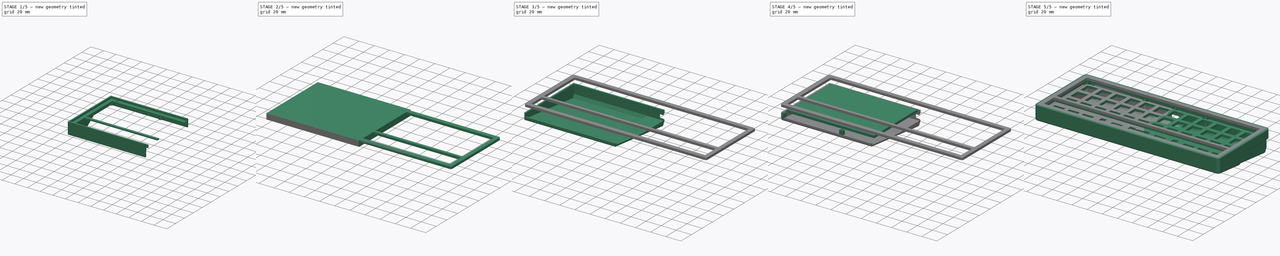
[diagram: build sequence overview — one tinted view per stage of 5, left to right]
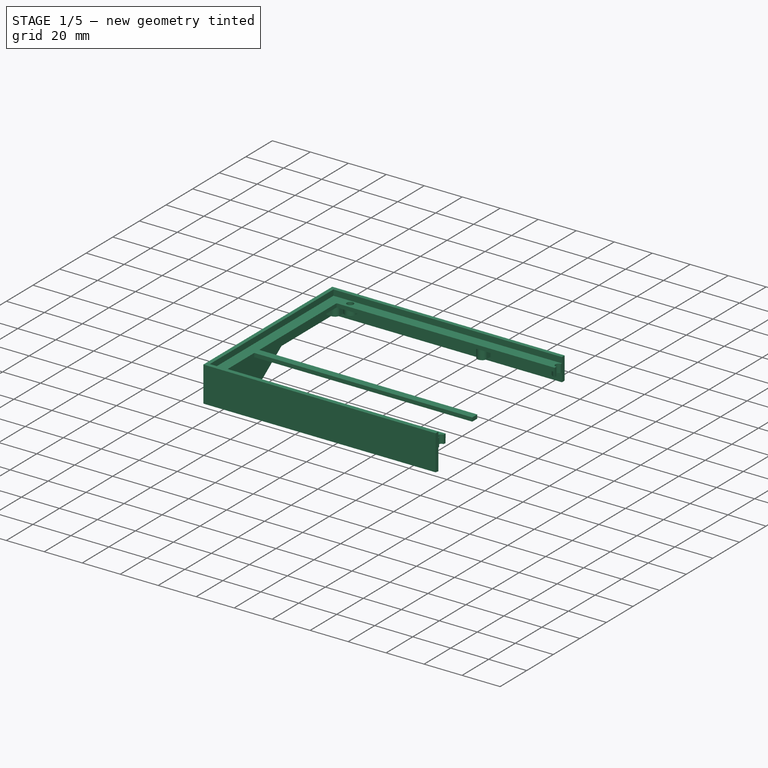
[diagram: stage 1 of 5 — iso view after this stage's code; geometry added in this stage tinted green]
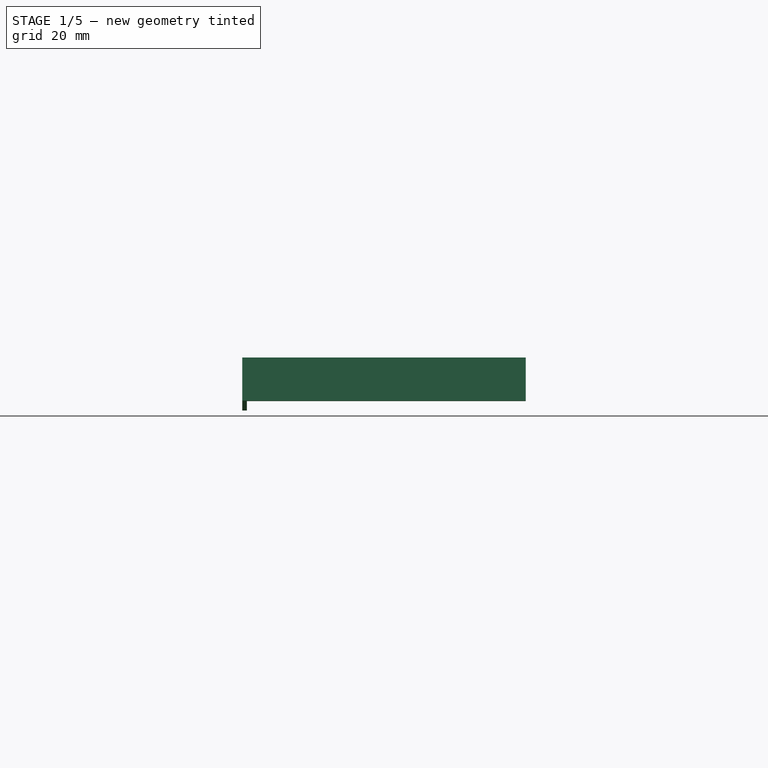
[diagram: stage 1 of 5 — front view after this stage's code; geometry added in this stage tinted green]
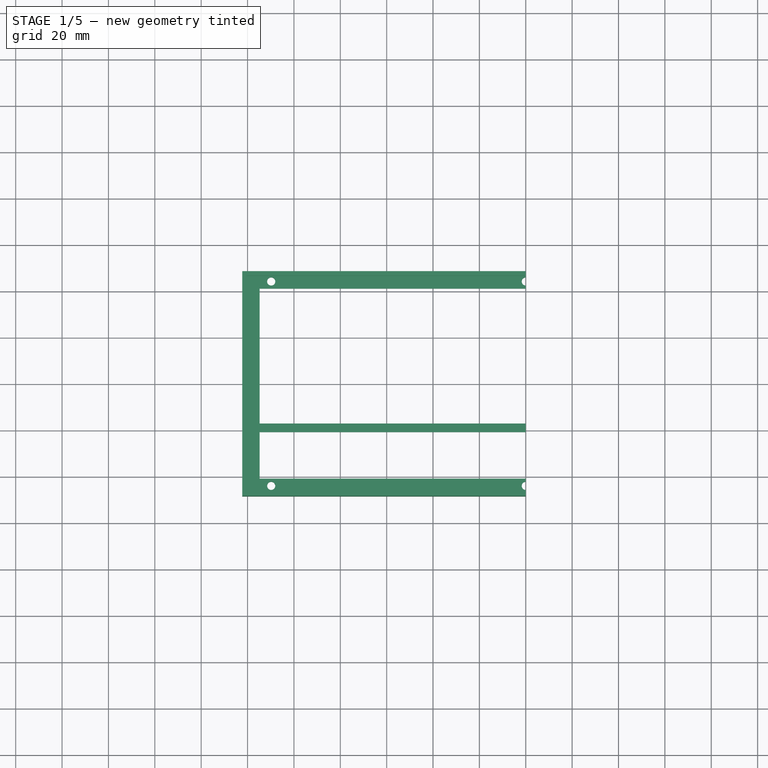
[diagram: stage 1 of 5 — top view after this stage's code; geometry added in this stage tinted green]
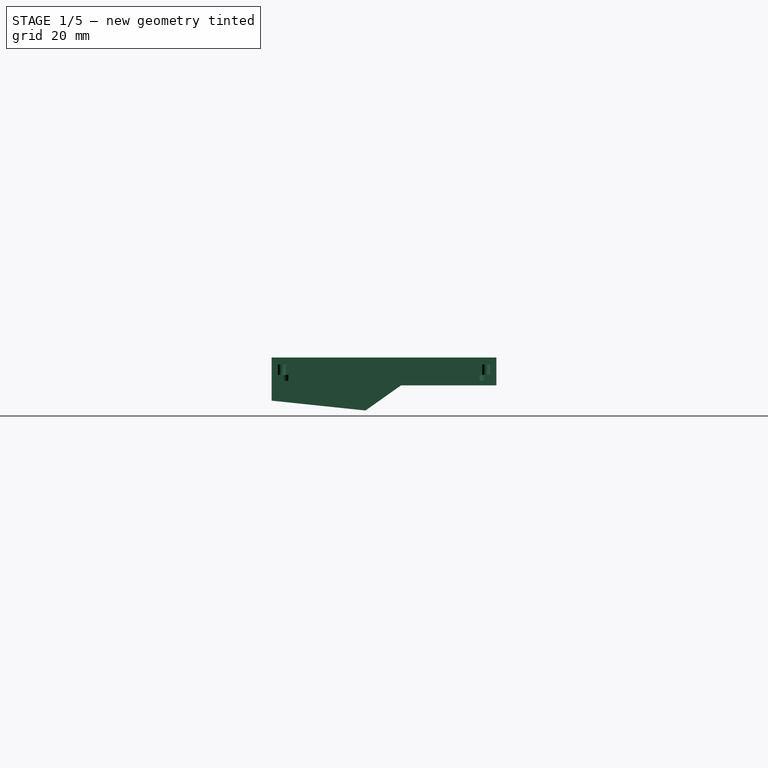
[diagram: stage 1 of 5 — right view after this stage's code; geometry added in this stage tinted green]
FCSTD DOCUMENT  (FreeCAD 0.20R29603 (Git))
Label: frogger
License: All rights reserved
LicenseURL: http://en.wikipedia.org/wiki/All_rights_reserved
objects: Sketcher::SketchObject×42, PartDesign::Pocket×28, PartDesign::Pad×17, PartDesign::Plane×10, PartDesign::Fillet×6, PartDesign::Chamfer×4, PartDesign::Body×4, Part::Mirroring×4, Part::MultiFuse×4, Spreadsheet::Sheet×1, PartDesign::SubtractiveBox×1, PartDesign::ShapeBinder×1
note: 177 computed .brp shape members not serialized (recipe doc carries the construction recipe); baked Part::Feature solids carry a one-line shape summary decoded from their .brp

FEATURE [Spreadsheet::Sheet] Spreadsheet  label="vals_Case"
  cells = A2=Dimensions; D2=Ornament; G2=Acryl; A3=spacing; B3(spacing)=19.05; D3=spaceOffset; E3(spaceOffset)==0.25 * spacing; G3=acrylBorder; H3(acrylBorder)=2; A4=borderH; B4(borderH)=7.5; D4=spaceOffsetWidth; E4(spaceoffsetu)=6; G4=acrylSafety; H4(acrylSafety)=0.1; A5=borderW; B5(borderW)=7.5; C5==0.4 * spacing - 2 * keysafety + wallThickness; D5=minWidth; E5==spaceOffset - 2 * keysafety; G5=acrylLayerHeight; H5(acrylLayerHeight)=3; A6=Edgeradius; B6(edgeradius)=4; C6=spaceOffset + 6; D6=Case; G6=acrylOverlap; H6(acrylOverlap)=0.1; A7=topExtra; B7(topExtr)=0; D7=WallThickness; E7(wallThickness)=2; A8=keysafety; B8(keysafety)=0.5; D8=midSectionHeight; E8(midSectionHeight)=8.5; A9=heightAbovePlate; B9(heightAbovePlate)=7.5; D9=midSectionBackInset; E9(midSectionBackInset)=3; D10=bottomBackOffset; E10(bottomBackOffset)=10; A11=caseHeight; B11(caseHeight)==4 * spacing + borderW + borderH + topExtr + 2 * keysafety + spaceOffset; D11=bottomBackInset; E11(bottomBackInset)=10; A12=caseWidth; B12(caseWidth)==spacing * 12 + 2 * borderW + 2 * keysafety + caseHandOffset; D12=innerWallThickness; E12(innerWallThickness)=1.5; G12=plateholes; H12(plateHoleRadius)=1.75; J12=bottomOverlap; K12(bottomOverlap)=1.5; A13=caseHandOffset; B13(caseHandOffset)=0; D13=typingAngle; E13(typingAngle)=6; G13=plateHoleExtra; H13(plateHoleExtra)=1; A14=caseBackOffset; B14(caseBackOffset)=2; D14=topheight; E14(caseTopHeight)=12; G14=plateTopOffset; A15=OLEDWidth; B15(OledWidth)=38; G15=plateBottomOffset; A16=OLEDHeight; B16(OledHeight)=12; G16=plateThicknes; H16(plateThickness)=1.6; A17=OLEDSafety; B17(OledSafety)=2; D17=pcbToPlate; E17(pcbToPlate)=5; D18=pcbThickness; E18(pcbThickness)=1.6; A19=magOuterRad; B19(magOuterRad)=2.55; D19=HSThickness; E19(HSThickness)=3; A20=magRad; B20(magRad)=1.55; D20=HSBottomSafety; E20(HSBottomSafety)=1; A21=magOuterOffset; B21(magOuterOffset)=1; D21=bottomThickness; E21(bottomThickness)=2; D22=bottomMinHeight; E22(bottomMinHeight)==pcbToPlate + pcbThickness + HSThickness + HSBottomSafety + 0.5
FEATURE [Sketcher::SketchObject] Sketch010
  FullyConstrained = true
  MapMode = 5
  Support = -> [XY_Plane174]
  expr: Constraints[10] = <<vals_Case>>.caseHeight
  expr: Constraints[9] = <<vals_Case>>.caseWidth / 2
  sketch-geometry (4):
    g0: LineSegment StartX=-122.3 StartY=48.4813 StartZ=0 EndX=0 EndY=48.4813 EndZ=0
    g1: LineSegment StartX=0 StartY=48.4813 StartZ=0 EndX=0 EndY=-48.4813 EndZ=0
    g2: LineSegment StartX=0 StartY=-48.4813 StartZ=0 EndX=-122.3 EndY=-48.4813 EndZ=0
    g3: LineSegment StartX=-122.3 StartY=-48.4813 StartZ=0 EndX=-122.3 EndY=48.4813 EndZ=0
  constraints (11):
    c: Coincident(g0,g1)
    c: Coincident(g1,g2)
    c: Coincident(g2,g3)
    c: Coincident(g3,g0)
    c: Horizontal(g0)
    c: Horizontal(g2)
    c: Vertical(g1)
    c: Vertical(g3)
    c: Symmetric(g1,g1,g-1)
    c: DistanceX(g0,g0) = 122.3
    c: DistanceY(g3,g3) = 96.9625
FEATURE [PartDesign::Pad] Pad005
  Direction = (0,0,1)
  Length = 7.5
  Length2 = 10
  Profile = -> Sketch010
  ReferenceAxis = -> Sketch010 [N_Axis]
  Type = 0
  expr: Length = <<vals_Case>>.heightAbovePlate
FEATURE [Sketcher::SketchObject] Sketch011
  FullyConstrained = true
  MapMode = 5
  Support = -> [XY_Plane174]
  expr: Constraints[10] = <<vals_Case>>.caseWidth / 2
  expr: Constraints[9] = <<vals_Case>>.caseHeight
  sketch-geometry (4):
    g0: LineSegment StartX=-122.3 StartY=48.4813 StartZ=0 EndX=0 EndY=48.4813 EndZ=0
    g1: LineSegment StartX=0 StartY=48.4813 StartZ=0 EndX=0 EndY=-48.4813 EndZ=0
    g2: LineSegment StartX=0 StartY=-48.4813 StartZ=0 EndX=-122.3 EndY=-48.4813 EndZ=0
    g3: LineSegment StartX=-122.3 StartY=-48.4813 StartZ=0 EndX=-122.3 EndY=48.4813 EndZ=0
  constraints (11):
    c: Coincident(g0,g1)
    c: Coincident(g1,g2)
    c: Coincident(g2,g3)
    c: Coincident(g3,g0)
    c: Horizontal(g0)
    c: Horizontal(g2)
    c: Vertical(g1)
    c: Vertical(g3)
    c: Symmetric(g1,g1,g-1)
    c: DistanceY(g3,g3) = 96.9625
    c: DistanceX(g0,g0) = 122.3
FEATURE [PartDesign::Pad] Pad006
  BaseFeature = -> Pad005
  Direction = (0,0,1)
  Length = 4.5
  Length2 = 10
  Profile = -> Sketch011
  ReferenceAxis = -> Sketch011 [N_Axis]
  Reversed = true
  Type = 0
  expr: Length = <<vals_Case>>.caseTopHeight - <<vals_Case>>.heightAbovePlate
FEATURE [PartDesign::Plane] DatumPlane001  label="Top plane"
  AttachmentOffset = pos=(0,0,7.5) rot=(0,0,1;0rad)
  Length = 171.202
  MapMode = 5
  Placement = pos=(0,0,7.5) rot=(0,0,1;0rad)
  ResizeMode = 0
  Support = -> [XY_Plane174]
  Width = 120.864
  expr: .AttachmentOffset.Base.z = <<vals_Case>>.heightAbovePlate
FEATURE [Sketcher::SketchObject] Sketch012
  FullyConstrained = true
  MapMode = 5
  Placement = pos=(0,0,7.5) rot=(0,0,1;0rad)
  Support = -> [DatumPlane001]
  expr: Constraints[18] = <<vals_Case>>.caseHeight / 2 - <<vals_Case>>.borderW
  expr: Constraints[19] = <<vals_Case>>.spacing + 2 * <<vals_Case>>.keysafety
  expr: Constraints[20] = <<vals_Case>>.caseHeight / 2 - <<vals_Case>>.borderH
  expr: Constraints[7] = <<vals_Case>>.spacing * 3 + <<vals_Case>>.keysafety * 2
  expr: Constraints[8] = <<vals_Case>>.spacing * 6 + <<vals_Case>>.keysafety
  sketch-geometry (8):
    g0: LineSegment StartX=0 StartY=40.9813 StartZ=0 EndX=-114.8 EndY=40.9813 EndZ=0
    g1: LineSegment StartX=-114.8 StartY=40.9813 StartZ=0 EndX=-114.8 EndY=-17.1688 EndZ=0
    g2: LineSegment StartX=-114.8 StartY=-17.1688 StartZ=0 EndX=0 EndY=-17.1688 EndZ=0
    g3: LineSegment StartX=0 StartY=-17.1688 StartZ=0 EndX=0 EndY=40.9813 EndZ=0
    g4: LineSegment StartX=-114.8 StartY=-20.9313 StartZ=0 EndX=0 EndY=-20.9313 EndZ=0
    g5: LineSegment StartX=0 StartY=-20.9313 StartZ=0 EndX=0 EndY=-40.9813 EndZ=0
    g6: LineSegment StartX=0 StartY=-40.9813 StartZ=0 EndX=-114.8 EndY=-40.9813 EndZ=0
    g7: LineSegment StartX=-114.8 StartY=-40.9813 StartZ=0 EndX=-114.8 EndY=-20.9313 EndZ=0
  constraints (24):
    c: Horizontal(g0)
    c: Coincident(g0,g1)
    c: Vertical(g1)
    c: Horizontal(g2)
    c: Coincident(g2,g3)
    c: Coincident(g3,g0)
    c: Vertical(g3)
    c: DistanceY(g1,g1) = 58.15
    c: DistanceX(g0,g0) = 114.8
    c: Coincident(g4,g5)
    c: Coincident(g5,g6)
    c: Coincident(g6,g7)
    c: Coincident(g7,g4)
    c: Horizontal(g4)
    c: Horizontal(g6)
    c: Vertical(g5)
    c: Vertical(g7)
    c: PointOnObject(g5,g-2)
    c: DistanceY(g-1,g0) = 40.9813
    c: DistanceY(g7,g7) = 20.05
    c: DistanceY(g6,g-1) = 40.9813
    c: Coincident(g1,g2)
    c: PointOnObject(g0,g-2)
    c: Vertical(g4,g1)
FEATURE [PartDesign::Pocket] Pocket005
  BaseFeature = -> Pad006
  Direction = (0,0,-1)
  Length = 12
  Length2 = 5
  Profile = -> Sketch012
  ReferenceAxis = -> Sketch012 [N_Axis]
  Type = 0
  expr: Length = <<vals_Case>>.caseTopHeight
FEATURE [PartDesign::Plane] DatumPlane002
  AttachmentOffset = pos=(0,0,-4.5) rot=(0,0,1;0rad)
  Length = 171.202
  MapMode = 5
  Placement = pos=(0,0,-4.5) rot=(0,0,1;0rad)
  ResizeMode = 0
  Support = -> [XY_Plane174]
  Width = 120.864
  expr: .AttachmentOffset.Base.z = <<vals_Case>>.heightAbovePlate - <<vals_Case>>.caseTopHeight
FEATURE [Sketcher::SketchObject] Sketch013
  FullyConstrained = true
  MapMode = 5
  Placement = pos=(0,0,-4.5) rot=(0,0,1;0rad)
  Support = -> [DatumPlane002]
  expr: Constraints[10] = <<vals_Case>>.caseHeight
  expr: Constraints[9] = <<vals_Case>>.caseWidth / 2
  sketch-geometry (4):
    g0: LineSegment StartX=-122.3 StartY=48.4813 StartZ=0 EndX=0 EndY=48.4813 EndZ=0
    g1: LineSegment StartX=0 StartY=48.4813 StartZ=0 EndX=0 EndY=-48.4813 EndZ=0
    g2: LineSegment StartX=0 StartY=-48.4813 StartZ=0 EndX=-122.3 EndY=-48.4813 EndZ=0
    g3: LineSegment StartX=-122.3 StartY=-48.4813 StartZ=0 EndX=-122.3 EndY=48.4813 EndZ=0
  constraints (11):
    c: Coincident(g0,g1)
    c: Coincident(g1,g2)
    c: Coincident(g2,g3)
    c: Coincident(g3,g0)
    c: Horizontal(g0)
    c: Horizontal(g2)
    c: Vertical(g1)
    c: Vertical(g3)
    c: Symmetric(g1,g1,g-1)
    c: DistanceX(g0,g0) = 122.3
    c: DistanceY(g3,g3) = 96.9625
FEATURE [PartDesign::Pad] Pad007
  BaseFeature = -> Pocket005
  Direction = (0,0,1)
  Length = 30
  Length2 = 10
  Profile = -> Sketch013
  ReferenceAxis = -> Sketch013 [N_Axis]
  Reversed = true
  Type = 0
  expr: Length = 30
FEATURE [PartDesign::Plane] DatumPlane003
  AttachmentOffset = pos=(0,0,-122.3) rot=(0,0,1;0rad)
  Length = 110.888
  MapMode = 5
  Placement = pos=(-122.3,2.72e-14,-2.72e-14) rot=(0.57735,0.57735,0.57735;2.0944rad)
  ResizeMode = 0
  Support = -> [YZ_Plane174]
  Width = 63.9257
  expr: .AttachmentOffset.Base.z = -<<vals_Case>>.caseWidth / 2
FEATURE [Sketcher::SketchObject] Sketch014
  FullyConstrained = true
  MapMode = 5
  Placement = pos=(-122.3,2.72e-14,-2.72e-14) rot=(0.57735,0.57735,0.57735;2.0944rad)
  Support = -> [DatumPlane003]
  expr: Constraints[14] = <<vals_Case>>.caseBackOffset
  expr: Constraints[20] = <<vals_Case>>.caseTopHeight - <<vals_Case>>.heightAbovePlate
  expr: Constraints[2] = <<vals_Case>>.bottomMinHeight
  expr: Constraints[3] = <<vals_Case>>.typingAngle
  expr: Constraints[5] = <<vals_Case>>.caseHeight / 2 - <<vals_Case>>.caseBackOffset
  expr: Constraints[6] = <<vals_Case>>.caseHeight / 2
  expr: Constraints[7] = 30
  sketch-geometry (7):
    g0: LineSegment StartX=-48.4813 StartY=-11.1 StartZ=0 EndX=43.4813 EndY=-20.7656 EndZ=0
    g1: LineSegment StartX=43.4813 StartY=-20.7656 StartZ=0 EndX=46.4813 EndY=-14.7656 EndZ=0
    g2: LineSegment StartX=48.4813 StartY=-41.1 StartZ=0 EndX=-48.4813 EndY=-41.1 EndZ=0
    g3: LineSegment StartX=-48.4813 StartY=-11.1 StartZ=0 EndX=-48.4813 EndY=-41.1 EndZ=0
    g4: LineSegment StartX=48.4813 StartY=-41.1 StartZ=0 EndX=48.4813 EndY=-4.5 EndZ=0
    g5: LineSegment StartX=48.4813 StartY=-4.5 StartZ=0 EndX=46.4813 EndY=-4.5 EndZ=0
    g6: LineSegment StartX=46.4813 StartY=-4.5 StartZ=0 EndX=46.4813 EndY=-14.7656 EndZ=0
  constraints (21):
    c: Coincident(g0,g1)
    c: Horizontal(g2)
    c: DistanceY(g0,g-1) = 11.1
    c: Angle(g0,g-1) = 0.10472
    c: DistanceY(g0,g1) = 6
    c: DistanceX(g-1,g1) = 46.4813
    c: DistanceX(g0,g-1) = 48.4813
    c: DistanceY(g2,g0) = 30
    c: DistanceX(g0,g1) = 3
    c: Vertical(g3)
    c: Coincident(g2,g3)
    c: Coincident(g3,g0)
    c: Coincident(g4,g2)
    c: Vertical(g4)
    c: DistanceX(g1,g4) = 2
    c: Coincident(g5,g4)
    c: Horizontal(g5)
    c: Coincident(g6,g5)
    c: Coincident(g6,g1)
    c: Vertical(g6)
    c: DistanceY(g4,g-1) = 4.5
FEATURE [PartDesign::Pocket] Pocket006
  BaseFeature = -> Pad007
  Direction = (-1,1e-16,-1e-16)
  Length = 122.3
  Length2 = 5
  Profile = -> Sketch014
  ReferenceAxis = -> Sketch014 [N_Axis]
  Reversed = true
  Type = 0
  expr: Length = <<vals_Case>>.caseWidth / 2
FEATURE [Sketcher::SketchObject] Sketch015
  FullyConstrained = false
  MapMode = 5
  Placement = pos=(-122.3,2.72e-14,-2.72e-14) rot=(0.57735,0.57735,0.57735;2.0944rad)
  Support = -> [DatumPlane003]
  sketch-geometry (5):
    g0: LineSegment StartX=7.36554 StartY=-4.5 StartZ=0 EndX=-18.7892 EndY=-23.006 EndZ=0
    g1: LineSegment StartX=-18.7892 StartY=-23.006 StartZ=0 EndX=54.0162 EndY=-23.006 EndZ=0
    g2: LineSegment StartX=54.0162 StartY=-23.006 StartZ=0 EndX=67.7623 EndY=-16.9849 EndZ=0
    g3: LineSegment StartX=7.36554 StartY=-4.5 StartZ=0 EndX=69.9389 EndY=-4.5 EndZ=0
    g4: LineSegment StartX=69.9389 StartY=-4.5 StartZ=0 EndX=67.7623 EndY=-16.9849 EndZ=0
  constraints (8):
    c: Coincident(g0,g1)
    c: Coincident(g1,g2)
    c: Horizontal(g1)
    c: Coincident(g0,g3)
    c: Horizontal(g3)
    c: Coincident(g3,g4)
    c: Coincident(g4,g2)
    c: DistanceY(g0,g-1) = 4.5
FEATURE [PartDesign::Pocket] Pocket007
  BaseFeature = -> Pocket006
  Direction = (-1,1e-16,-1e-16)
  Length = 244.6
  Length2 = 5
  Profile = -> Sketch015
  ReferenceAxis = -> Sketch015 [N_Axis]
  Reversed = true
  Type = 0
  expr: Length = <<vals_Case>>.caseWidth
FEATURE [Sketcher::SketchObject] Sketch022
  FullyConstrained = true
  MapMode = 5
  Placement = pos=(0,0,7.5) rot=(0,0,1;0rad)
  Support = -> [DatumPlane001]
  expr: Constraints[10] = <<vals_Case>>.caseHeight - <<vals_Case>>.wallThickness * 2
  expr: Constraints[9] = <<vals_Case>>.caseWidth / 2 - <<vals_Case>>.wallThickness
  sketch-geometry (4):
    g0: LineSegment StartX=-120.3 StartY=46.4813 StartZ=0 EndX=0 EndY=46.4813 EndZ=0
    g1: LineSegment StartX=0 StartY=46.4813 StartZ=0 EndX=0 EndY=-46.4813 EndZ=0
    g2: LineSegment StartX=0 StartY=-46.4813 StartZ=0 EndX=-120.3 EndY=-46.4813 EndZ=0
    g3: LineSegment StartX=-120.3 StartY=-46.4813 StartZ=0 EndX=-120.3 EndY=46.4813 EndZ=0
  constraints (11):
    c: Coincident(g0,g1)
    c: Coincident(g1,g2)
    c: Coincident(g2,g3)
    c: Coincident(g3,g0)
    c: Horizontal(g0)
    c: Horizontal(g2)
    c: Vertical(g1)
    c: Vertical(g3)
    c: Symmetric(g1,g1,g-1)
    c: DistanceX(g0,g0) = 120.3
    c: DistanceY(g1,g1) = 92.9625
FEATURE [PartDesign::Pocket] Pocket011
  BaseFeature = -> Pocket007
  Direction = (0,0,-1)
  Length = 3
  Length2 = 5
  Profile = -> Sketch022
  ReferenceAxis = -> Sketch022 [N_Axis]
  Type = 0
  expr: Length = <<vals_Case>>.acrylLayerHeight
FEATURE [PartDesign::Plane] DatumPlane007
  AttachmentOffset = pos=(0,0,2.5) rot=(0,0,1;0rad)
  Length = 171.202
  MapMode = 5
  Placement = pos=(0,0,2.5) rot=(0,0,1;0rad)
  ResizeMode = 0
  Support = -> [XY_Plane174]
  Width = 120.864
  expr: .AttachmentOffset.Base.z = <<vals_Case>>.heightAbovePlate - <<vals_Case>>.wallThickness - <<vals_Case>>.acrylLayerHeight
FEATURE [Sketcher::SketchObject] Sketch023
  FullyConstrained = true
  MapMode = 5
  Placement = pos=(0,0,2.5) rot=(0,0,1;0rad)
  Support = -> [DatumPlane007]
  expr: Constraints[10] = <<vals_Case>>.caseWidth / 2 - <<vals_Case>>.wallThickness
  expr: Constraints[9] = <<vals_Case>>.caseHeight - 2 * <<vals_Case>>.wallThickness
  sketch-geometry (4):
    g0: LineSegment StartX=-120.3 StartY=46.4813 StartZ=0 EndX=0 EndY=46.4813 EndZ=0
    g1: LineSegment StartX=0 StartY=46.4813 StartZ=0 EndX=0 EndY=-46.4813 EndZ=0
    g2: LineSegment StartX=0 StartY=-46.4813 StartZ=0 EndX=-120.3 EndY=-46.4813 EndZ=0
    g3: LineSegment StartX=-120.3 StartY=-46.4813 StartZ=0 EndX=-120.3 EndY=46.4813 EndZ=0
  constraints (11):
    c: Coincident(g0,g1)
    c: Coincident(g1,g2)
    c: Coincident(g2,g3)
    c: Coincident(g3,g0)
    c: Horizontal(g0)
    c: Horizontal(g2)
    c: Vertical(g1)
    c: Vertical(g3)
    c: Symmetric(g1,g1,g-1)
    c: DistanceY(g1,g1) = 92.9625
    c: DistanceX(g0,g0) = 120.3
FEATURE [PartDesign::Pocket] Pocket012
  BaseFeature = -> Pocket011
  Direction = (0,0,-1)
  Length = 30
  Length2 = 5
  Profile = -> Sketch023
  ReferenceAxis = -> Sketch023 [N_Axis]
  Type = 0
  expr: Length = 30
FEATURE [PartDesign::Plane] DatumPlane
  AttachmentOffset = pos=(0,0,2) rot=(0,0,1;0rad)
  Length = 171.202
  MapMode = 5
  Placement = pos=(0,0,-2.5) rot=(0,0,1;0rad)
  ResizeMode = 0
  Support = -> [DatumPlane002]
  Width = 120.864
  expr: .AttachmentOffset.Base.z = <<vals_Case>>.wallThickness
FEATURE [Sketcher::SketchObject] Sketch
  FullyConstrained = true
  MapMode = 5
  Placement = pos=(0,0,-2.5) rot=(0,0,1;0rad)
  Support = -> [DatumPlane]
  expr: Constraints[0] = <<vals_Case>>.caseHeight / 2 - <<vals_Case>>.wallThickness - (<<vals_Case>>.borderH - <<vals_Case>>.wallThickness) / 2
  expr: Constraints[12] = <<vals_Case>>.caseWidth / 2 - <<vals_Case>>.wallThickness
  expr: Constraints[13] = <<vals_Case>>.caseHeight / 2 - <<vals_Case>>.wallThickness
  expr: Constraints[14] = <<vals_Case>>.magRad + 1
  expr: Constraints[27] = <<vals_Case>>.caseWidth / 2 - <<vals_Case>>.wallThickness - (<<vals_Case>>.borderW - <<vals_Case>>.wallThickness) / 2
  expr: Constraints[39] = (<<vals_Case>>.caseWidth - <<vals_Case>>.wallThickness * 2) / 6
  sketch-geometry (18):
    g0: ArcOfCircle CenterX=-117.55 CenterY=43.7313 CenterZ=0 NormalX=0 NormalY=0 NormalZ=1 AngleXU=0 Radius=2.55 StartAngle=4.71239 EndAngle=6.28319
    g1: LineSegment StartX=-115 StartY=43.7313 StartZ=0 EndX=-115 EndY=46.4813 EndZ=0
    g2: LineSegment StartX=-115 StartY=46.4813 StartZ=0 EndX=-120.3 EndY=46.4813 EndZ=0
    g3: LineSegment StartX=-120.3 StartY=46.4813 StartZ=0 EndX=-120.3 EndY=41.1813 EndZ=0
    g4: LineSegment StartX=-120.3 StartY=41.1813 StartZ=0 EndX=-117.55 EndY=41.1813 EndZ=0
    g5: ArcOfCircle CenterX=-117.55 CenterY=-43.7313 CenterZ=0 NormalX=0 NormalY=0 NormalZ=1 AngleXU=0 Radius=2.55 StartAngle=0 EndAngle=1.5708
    g6: LineSegment StartX=-115 StartY=-43.7313 StartZ=0 EndX=-115 EndY=-46.4813 EndZ=0
    g7: LineSegment StartX=-115 StartY=-46.4813 StartZ=0 EndX=-120.3 EndY=-46.4813 EndZ=0
    g8: LineSegment StartX=-120.3 StartY=-46.4813 StartZ=0 EndX=-120.3 EndY=-41.1813 EndZ=0
    g9: LineSegment StartX=-120.3 StartY=-41.1813 StartZ=0 EndX=-117.55 EndY=-41.1813 EndZ=0
    g10: ArcOfCircle CenterX=-40.1 CenterY=43.7313 CenterZ=0 NormalX=0 NormalY=0 NormalZ=1 AngleXU=0 Radius=2.55 StartAngle=3.14159 EndAngle=6.28319
    g11: LineSegment StartX=-37.55 StartY=43.7313 StartZ=0 EndX=-37.55 EndY=46.4813 EndZ=0
    g12: LineSegment StartX=-37.55 StartY=46.4813 StartZ=0 EndX=-42.65 EndY=46.4813 EndZ=0
    g13: LineSegment StartX=-42.65 StartY=46.4813 StartZ=0 EndX=-42.65 EndY=43.7313 EndZ=0
    g14: ArcOfCircle CenterX=-40.1 CenterY=-43.7313 CenterZ=0 NormalX=0 NormalY=0 NormalZ=1 AngleXU=0 Radius=2.55 StartAngle=1e-16 EndAngle=3.14159
    g15: LineSegment StartX=-42.65 StartY=-43.7313 StartZ=0 EndX=-42.65 EndY=-46.4813 EndZ=0
    g16: LineSegment StartX=-42.65 StartY=-46.4813 StartZ=0 EndX=-37.55 EndY=-46.4813 EndZ=0
    g17: LineSegment StartX=-37.55 StartY=-46.4813 StartZ=0 EndX=-37.55 EndY=-43.7313 EndZ=0
  constraints (52):
    c: DistanceY(g-1,g0) = 43.7313
    c: Horizontal(g0,g0)
    c: Vertical(g0,g0)
    c: Coincident(g1,g0)
    c: Vertical(g1)
    c: Coincident(g2,g1)
    c: Horizontal(g2)
    c: Coincident(g3,g2)
    c: Vertical(g3)
    c: Coincident(g4,g3)
    c: Coincident(g4,g0)
    c: Horizontal(g4)
    c: DistanceX(g2,g-1) = 120.3
    c: DistanceY(g-1,g1) = 46.4813
    c: Radius(g0) = 2.55
    c: Vertical(g5,g5)
    c: Horizontal(g5,g5)
    c: Tangent(g5,g6) = 1.5708
    c: Coincident(g6,g7)
    c: Horizontal(g7)
    c: Coincident(g7,g8)
    c: Vertical(g8)
    c: Coincident(g8,g9)
    c: Coincident(g9,g5)
    c: Symmetric(g5,g0,g-1)
    c: Symmetric(g8,g3,g-1)
    c: Symmetric(g6,g1,g-1)
    c: DistanceX(g0,g-1) = 117.55
    c: Horizontal(g10,g10)
    c: Horizontal(g10,g10)
    c: Horizontal(g10,g0)
    c: Tangent(g10,g11) = -1.5708
    c: Coincident(g11,g12)
    c: Horizontal(g12)
    c: Coincident(g12,g13)
    c: Coincident(g13,g10)
    c: Vertical(g13)
    c: Horizontal(g12,g1)
    c: Equal(g10,g0)
    c: DistanceX(g10,g-1) = 40.1
    c: Horizontal(g14,g14)
    c: Horizontal(g14,g14)
    c: Horizontal(g14,g5)
    c: Tangent(g14,g15) = -1.5708
    c: Coincident(g15,g16)
    c: Coincident(g16,g17)
    c: Coincident(g17,g14)
    c: Vertical(g17)
    c: Horizontal(g16)
    c: Vertical(g14,g10)
    c: Vertical(g14,g10)
    c: Horizontal(g15,g6)
FEATURE [PartDesign::Pad] Pad016
  BaseFeature = -> Pocket012
  Direction = (0,0,1)
  Length = 6
  Length2 = 10
  Profile = -> Sketch
  ReferenceAxis = -> Sketch [N_Axis]
  Type = 0
FEATURE [Sketcher::SketchObject] Sketch044
  ExternalGeometry = -> [Pad016]
  FullyConstrained = true
  MapMode = 5
  Placement = pos=(0,0,-2.5) rot=(0,0,1;0rad)
  Support = -> [DatumPlane]
  expr: Constraints[3] = <<vals_Case>>.caseHeight / 2 - <<vals_Case>>.wallThickness - (<<vals_Case>>.borderH - <<vals_Case>>.wallThickness) / 2
  expr: Constraints[4] = (<<vals_Case>>.caseWidth - <<vals_Case>>.wallThickness * 2) / 6
  expr: Constraints[5] = <<vals_Case>>.caseWidth / 2 - <<vals_Case>>.wallThickness - (<<vals_Case>>.borderW - <<vals_Case>>.wallThickness) / 2
  expr: Constraints[9] = <<vals_Case>>.magRad
  sketch-geometry (4):
    g0: Circle CenterX=-117.55 CenterY=43.7313 CenterZ=0 NormalX=0 NormalY=0 NormalZ=1 AngleXU=0 Radius=1.55
    g1: Circle CenterX=-117.55 CenterY=-43.7313 CenterZ=0 NormalX=0 NormalY=0 NormalZ=1 AngleXU=0 Radius=1.55
    g2: Circle CenterX=-40.1 CenterY=-43.7313 CenterZ=0 NormalX=0 NormalY=0 NormalZ=1 AngleXU=0 Radius=1.55
    g3: Circle CenterX=-40.1 CenterY=43.7313 CenterZ=0 NormalX=0 NormalY=0 NormalZ=1 AngleXU=0 Radius=1.55
  constraints (10):
    c: Symmetric(g0,g1,g-1)
    c: Symmetric(g3,g2,g-1)
    c: Horizontal(g3,g0)
    c: DistanceY(g-1,g0) = 43.7313
    c: DistanceX(g3,g-1) = 40.1
    c: DistanceX(g0,g-1) = 117.55
    c: Equal(g0,g3)
    c: Equal(g3,g1)
    c: Equal(g1,g2)
    c: Radius(g0) = 1.55
FEATURE [PartDesign::Pocket] Pocket026
  BaseFeature = -> Pad016
  Direction = (0,0,-1)
  Length = 3.1
  Length2 = 5
  Profile = -> Sketch044
  ReferenceAxis = -> Sketch044 [N_Axis]
  Reversed = true
  Type = 0
  expr: Length = 3.1
FEATURE [Sketcher::SketchObject] Sketch045
  ExternalGeometry = -> [Pocket]
  FullyConstrained = true
  MapMode = 5
  Placement = pos=(1.6e-15,-1.6e-15,-14.85) rot=(0,0,1;0rad)
  Support = -> [Pocket]
  sketch-geometry (12):
    g0: LineSegment StartX=-22 StartY=12.5813 StartZ=0 EndX=-22 EndY=20.5813 EndZ=0
    g1: LineSegment StartX=-22 StartY=20.5813 StartZ=0 EndX=-20.2 EndY=20.5813 EndZ=0
    g2: LineSegment StartX=-20.2 StartY=20.5813 StartZ=0 EndX=-20.2 EndY=14.7813 EndZ=0
    g3: LineSegment StartX=-20.2 StartY=14.7813 StartZ=0 EndX=-17 EndY=14.7813 EndZ=0
    g4: LineSegment StartX=-17 StartY=14.7813 StartZ=0 EndX=-17 EndY=12.5813 EndZ=0
    g5: LineSegment StartX=-17 StartY=12.5813 StartZ=0 EndX=-22 EndY=12.5813 EndZ=0
    g6: LineSegment StartX=-22 StartY=36.5813 StartZ=0 EndX=-22 EndY=44.5813 EndZ=0
    g7: LineSegment StartX=-22 StartY=44.5813 StartZ=0 EndX=-17 EndY=44.5813 EndZ=0
    g8: LineSegment StartX=-17 StartY=44.5813 StartZ=0 EndX=-17 EndY=42.2812 EndZ=0
    g9: LineSegment StartX=-17 StartY=42.2812 StartZ=0 EndX=-20.2 EndY=42.2812 EndZ=0
    g10: LineSegment StartX=-20.2 StartY=42.2812 StartZ=0 EndX=-20.2 EndY=36.5813 EndZ=0
    g11: LineSegment StartX=-20.2 StartY=36.5813 StartZ=0 EndX=-22 EndY=36.5813 EndZ=0
  constraints (36):
    c: Vertical(g0)
    c: Coincident(g0,g1)
    c: Horizontal(g1)
    c: Coincident(g1,g2)
    c: Vertical(g2)
    c: Coincident(g2,g3)
    c: Horizontal(g3)
    c: Coincident(g3,g4)
    c: Vertical(g4)
    c: Coincident(g4,g5)
    c: Coincident(g5,g0)
    c: DistanceY(g0,g0) = 8
    c: DistanceX(g5,g5) = 5
    c: DistanceY(g4,g4) = 2.2
    c: DistanceX(g1,g1) = 1.8
    c: Vertical(g6)
    c: Coincident(g6,g7)
    c: Horizontal(g7)
    c: Coincident(g7,g8)
    c: Coincident(g8,g9)
    c: Horizontal(g9)
    c: Coincident(g9,g10)
    c: Vertical(g10)
    c: Coincident(g10,g11)
    c: Coincident(g11,g6)
    c: Vertical(g6,g0)
    c: Horizontal(g11)
    c: Vertical(g10,g1)
    c: Vertical(g8)
    c: DistanceY(g0,g6) = 16
    c: DistanceY(g6,g6) = 8
    c: DistanceY(g8,g8) = 2.3
    c: Vertical(g8,g3)
    c: Horizontal(g5)
    c: Vertical(g0,g-3)
    c: DistanceY(g-3,g0) = 4.2
FEATURE [PartDesign::Pocket] Pocket027
  BaseFeature = -> Pocket026
  Direction = (0,0,-1)
  Length = 3.2
  Length2 = 5
  Profile = -> Sketch044
  ReferenceAxis = -> Sketch044 [N_Axis]
  Type = 0
  expr: Length = 3.2
FEATURE [Sketcher::SketchObject] Sketch046
  FullyConstrained = true
  MapMode = 5
  Placement = pos=(0,0,2.5) rot=(1,0,0;3.14159rad)
  Support = -> [Pocket027]
  expr: Constraints[14] = <<vals_Case>>.caseHeight / 2 - <<vals_Case>>.wallThickness
  expr: Constraints[15] = <<vals_Case>>.caseWidth / 2 - <<vals_Case>>.borderW - 5
  expr: Constraints[7] = <<vals_Case>>.caseHeight / 2 - <<vals_Case>>.borderH + 3.1
  sketch-geometry (18):
    g0: Circle CenterX=-109.8 CenterY=44.0813 CenterZ=0 NormalX=0 NormalY=0 NormalZ=1 AngleXU=0 Radius=2.2
    g1: Circle CenterX=-109.8 CenterY=44.0813 CenterZ=0 NormalX=0 NormalY=0 NormalZ=1 AngleXU=0 Radius=3
    g2: ArcOfCircle CenterX=-109.8 CenterY=44.0813 CenterZ=0 NormalX=0 NormalY=0 NormalZ=1 AngleXU=0 Radius=3 StartAngle=3.14159 EndAngle=6.28319
    g3: LineSegment StartX=-106.8 StartY=44.0813 StartZ=0 EndX=-106.8 EndY=46.4813 EndZ=0
    g4: LineSegment StartX=-106.8 StartY=46.4813 StartZ=0 EndX=-112.8 EndY=46.4813 EndZ=0
    g5: LineSegment StartX=-112.8 StartY=46.4813 StartZ=0 EndX=-112.8 EndY=44.0813 EndZ=0
    g6: ArcOfCircle CenterX=-109.8 CenterY=-44.0813 CenterZ=0 NormalX=0 NormalY=0 NormalZ=1 AngleXU=0 Radius=3 StartAngle=2e-16 EndAngle=3.14159
    g7: LineSegment StartX=-106.8 StartY=-44.0813 StartZ=0 EndX=-106.8 EndY=-46.4813 EndZ=0
    g8: LineSegment StartX=-106.8 StartY=-46.4813 StartZ=0 EndX=-112.8 EndY=-46.4813 EndZ=0
    g9: LineSegment StartX=-112.8 StartY=-46.4813 StartZ=0 EndX=-112.8 EndY=-44.0813 EndZ=0
    g10: ArcOfCircle CenterX=0 CenterY=44.0813 CenterZ=0 NormalX=0 NormalY=0 NormalZ=1 AngleXU=0 Radius=3 StartAngle=3.14159 EndAngle=4.71239
    g11: LineSegment StartX=-6e-16 StartY=41.0813 StartZ=0 EndX=0 EndY=46.4813 EndZ=0
    g12: LineSegment StartX=0 StartY=46.4813 StartZ=0 EndX=-3 EndY=46.4813 EndZ=0
    g13: LineSegment StartX=-3 StartY=46.4813 StartZ=0 EndX=-3 EndY=44.0813 EndZ=0
    g14: ArcOfCircle CenterX=0 CenterY=-44.0813 CenterZ=0 NormalX=0 NormalY=0 NormalZ=1 AngleXU=0 Radius=3 StartAngle=1.5708 EndAngle=3.14159
    g15: LineSegment StartX=-7.1e-15 StartY=-41.0813 StartZ=0 EndX=0 EndY=-46.4813 EndZ=0
    g16: LineSegment StartX=0 StartY=-46.4813 StartZ=0 EndX=-3 EndY=-46.4813 EndZ=0
    g17: LineSegment StartX=-3 StartY=-46.4813 StartZ=0 EndX=-3 EndY=-44.0813 EndZ=0
  constraints (53):
    c: Radius(g0) = 2.2
    c: Coincident(g1,g0)
    c: Radius(g1) = 3
    c: Coincident(g2,g0)
    c: Horizontal(g2,g2)
    c: Horizontal(g2,g2)
    c: Radius(g2) = 3
    c: DistanceY(g-1,g2) = 44.0813
    c: Coincident(g3,g4)
    c: Horizontal(g4)
    c: Coincident(g4,g5)
    c: Coincident(g5,g2)
    c: Vertical(g5)
    c: Vertical(g3)
    c: DistanceY(g-1,g4) = 46.4813
    c: DistanceX(g2,g-1) = 109.8
    c: Coincident(g3,g2)
    c: Horizontal(g6,g6)
    c: Horizontal(g6,g6)
    c: Tangent(g6,g7) = 1.5708
    c: Coincident(g7,g8)
    c: Coincident(g8,g9)
    c: Coincident(g9,g6)
    c: Vertical(g9)
    c: Horizontal(g8)
    c: Symmetric(g3,g7,g-1)
    c: Symmetric(g6,g2,g-1)
    c: PointOnObject(g10,g-2)
    c: PointOnObject(g10,g-2)
    c: Coincident(g10,g11)
    c: Coincident(g11,g12)
    c: Horizontal(g12)
    c: Coincident(g12,g13)
    c: Coincident(g13,g10)
    c: Vertical(g13)
    c: PointOnObject(g11,g-2)
    c: Horizontal(g10,g10)
    c: Horizontal(g10,g2)
    c: Equal(g10,g2)
    c: Horizontal(g12,g3)
    c: PointOnObject(g14,g-2)
    c: PointOnObject(g14,g-2)
    c: Coincident(g14,g15)
    c: Coincident(g15,g16)
    c: Horizontal(g16)
    c: Coincident(g16,g17)
    c: Coincident(g17,g14)
    c: Vertical(g17)
    c: PointOnObject(g15,g-2)
    c: Horizontal(g16,g7)
    c: Horizontal(g14,g14)
    c: Horizontal(g14,g6)
    c: Equal(g14,g6)
FEATURE [PartDesign::Pad] Pad018
  BaseFeature = -> Pocket027
  Direction = (0,0,-1)
  Length = 2.5
  Length2 = 10
  Profile = -> Sketch046
  ReferenceAxis = -> Sketch046 [N_Axis]
  Type = 0
  expr: Length = <<vals_Case>>.heightAbovePlate - <<vals_Case>>.wallThickness - <<vals_Case>>.acrylLayerHeight
FEATURE [Sketcher::SketchObject] Sketch047
  ExternalGeometry = -> [Pad018]
  FullyConstrained = true
  MapMode = 5
  Placement = pos=(0,0,4e-16) rot=(1,0,0;3.14159rad)
  Support = -> [Pad018]
  expr: Constraints[7] = <<vals_Case>>.plateHoleRadius
  sketch-geometry (4):
    g0: Circle CenterX=-109.8 CenterY=44.0813 CenterZ=0 NormalX=0 NormalY=0 NormalZ=1 AngleXU=0 Radius=1.75
    g1: Circle CenterX=0 CenterY=44.0813 CenterZ=0 NormalX=0 NormalY=0 NormalZ=1 AngleXU=0 Radius=1.75
    g2: Circle CenterX=0 CenterY=-44.0813 CenterZ=0 NormalX=0 NormalY=0 NormalZ=1 AngleXU=0 Radius=1.75
    g3: Circle CenterX=-109.8 CenterY=-44.0813 CenterZ=0 NormalX=0 NormalY=0 NormalZ=1 AngleXU=0 Radius=1.75
  constraints (8):
    c: Coincident(g0,g-3)
    c: Coincident(g1,g-4)
    c: Coincident(g2,g-6)
    c: Coincident(g3,g-5)
    c: Equal(g0,g1)
    c: Equal(g1,g2)
    c: Equal(g2,g3)
    c: Radius(g1) = 1.75
FEATURE [PartDesign::Pocket] Pocket028
  BaseFeature = -> Pad018
  Direction = (0,0,1)
  Length = 5
  Length2 = 5
  Profile = -> Sketch047
  ReferenceAxis = -> Sketch047 [N_Axis]
  Type = 0
  expr: Length = 5mm
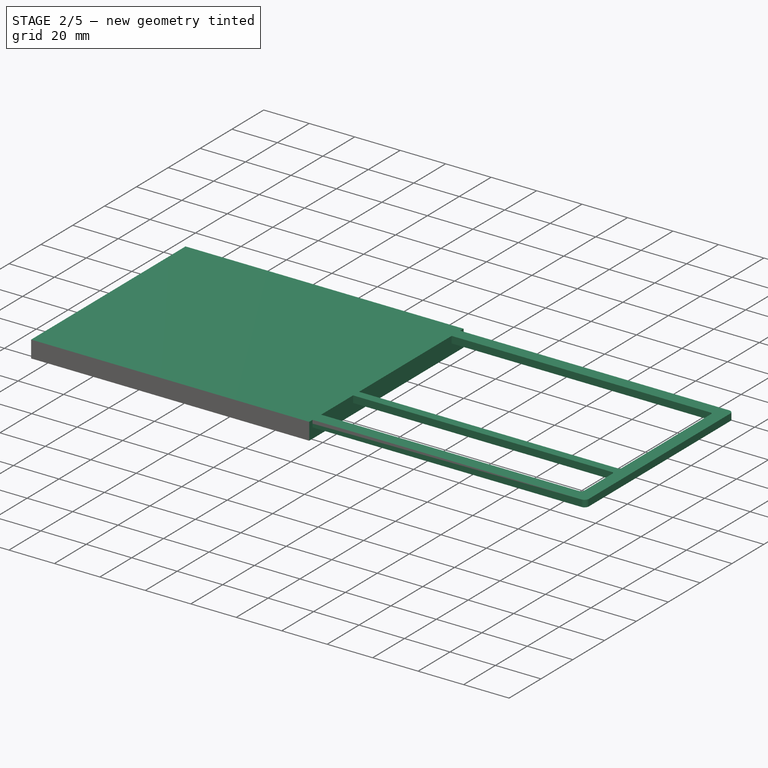
[diagram: stage 2 of 5 — iso view after this stage's code; geometry added in this stage tinted green]
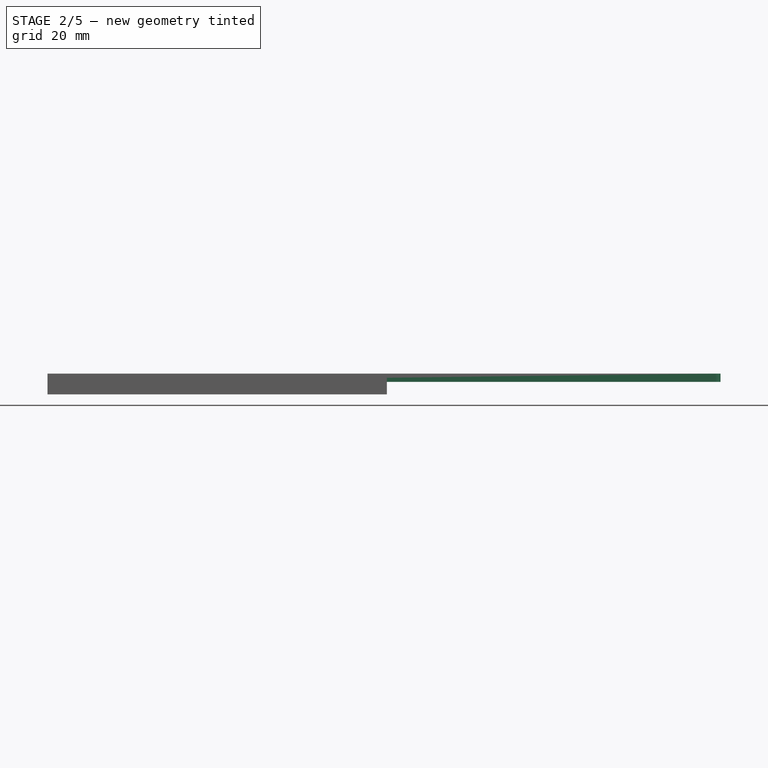
[diagram: stage 2 of 5 — front view after this stage's code; geometry added in this stage tinted green]
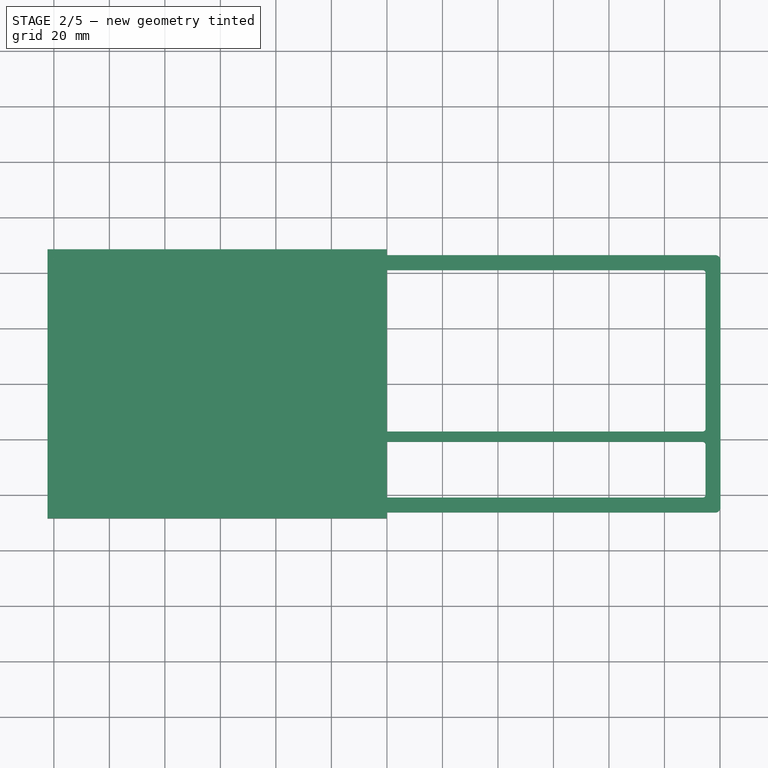
[diagram: stage 2 of 5 — top view after this stage's code; geometry added in this stage tinted green]
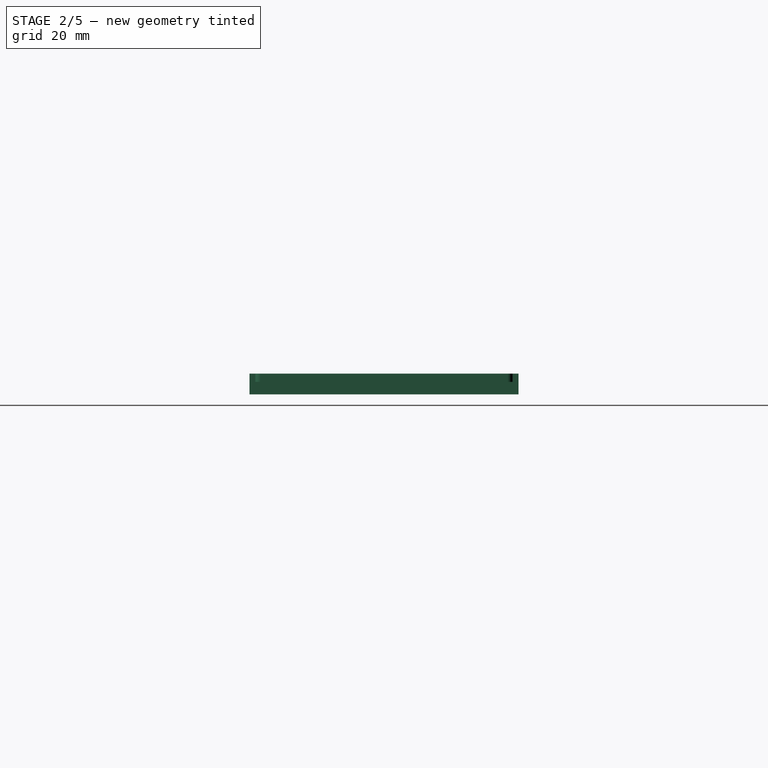
[diagram: stage 2 of 5 — right view after this stage's code; geometry added in this stage tinted green]
FEATURE [PartDesign::Plane] DatumPlane004  label="Top plane001"
  AttachmentOffset = pos=(0,0,7.5) rot=(0,0,1;0rad)
  Length = 168.687
  MapMode = 5
  Placement = pos=(0,0,7.5) rot=(0,0,1;0rad)
  ResizeMode = 0
  Support = -> [XY_Plane175]
  Width = 118.462
  expr: .AttachmentOffset.Base.z = <<vals_Case>>.heightAbovePlate
FEATURE [PartDesign::Plane] DatumPlane005
  AttachmentOffset = pos=(0,0,-4.5) rot=(0,0,1;0rad)
  Length = 168.687
  MapMode = 5
  Placement = pos=(0,0,-4.5) rot=(0,0,1;0rad)
  ResizeMode = 0
  Support = -> [XY_Plane175]
  Width = 118.462
  expr: .AttachmentOffset.Base.z = <<vals_Case>>.heightAbovePlate - <<vals_Case>>.caseTopHeight
FEATURE [PartDesign::Plane] DatumPlane006
  AttachmentOffset = pos=(0,0,-122.3) rot=(0,0,1;0rad)
  Length = 108.758
  MapMode = 5
  Placement = pos=(-122.3,2.72e-14,-2.72e-14) rot=(0.57735,0.57735,0.57735;2.0944rad)
  ResizeMode = 0
  Support = -> [YZ_Plane175]
  Width = 63.7823
  expr: .AttachmentOffset.Base.z = -<<vals_Case>>.caseWidth / 2
FEATURE [Sketcher::SketchObject] Sketch016
  FullyConstrained = true
  MapMode = 5
  Support = -> [XY_Plane175]
  expr: Constraints[10] = <<vals_Case>>.caseHeight
  expr: Constraints[9] = <<vals_Case>>.caseWidth / 2
  sketch-geometry (4):
    g0: LineSegment StartX=-122.3 StartY=48.4813 StartZ=0 EndX=0 EndY=48.4813 EndZ=0
    g1: LineSegment StartX=0 StartY=48.4813 StartZ=0 EndX=0 EndY=-48.4813 EndZ=0
    g2: LineSegment StartX=0 StartY=-48.4813 StartZ=0 EndX=-122.3 EndY=-48.4813 EndZ=0
    g3: LineSegment StartX=-122.3 StartY=-48.4813 StartZ=0 EndX=-122.3 EndY=48.4813 EndZ=0
  constraints (11):
    c: Coincident(g0,g1)
    c: Coincident(g1,g2)
    c: Coincident(g2,g3)
    c: Coincident(g3,g0)
    c: Horizontal(g0)
    c: Horizontal(g2)
    c: Vertical(g1)
    c: Vertical(g3)
    c: Symmetric(g1,g1,g-1)
    c: DistanceX(g0,g0) = 122.3
    c: DistanceY(g3,g3) = 96.9625
FEATURE [PartDesign::Pad] Pad008
  Direction = (0,0,1)
  Length = 7.5
  Length2 = 10
  Profile = -> Sketch016
  ReferenceAxis = -> Sketch016 [N_Axis]
  Type = 0
  expr: Length = <<vals_Case>>.heightAbovePlate
FEATURE [Sketcher::SketchObject] Sketch051
  FullyConstrained = false
  MapMode = 5
  Placement = pos=(0,0,4e-16) rot=(1,0,0;3.14159rad)
  Support = -> [Pocket028]
  sketch-geometry (1):
    g0: Circle CenterX=0 CenterY=0 CenterZ=0 NormalX=0 NormalY=0 NormalZ=1 AngleXU=0 Radius=6.99983
  constraints (1):
    c: Coincident(g0,g-1)
FEATURE [PartDesign::Pocket] Pocket029
  BaseFeature = -> Pocket028
  Direction = (0,0,1)
  Length = 5
  Length2 = 5
  Profile = -> Sketch051
  ReferenceAxis = -> Sketch051 [N_Axis]
  Type = 0
FEATURE [PartDesign::Fillet] Fillet
  Base = -> Pocket029 [Edge119,Edge68]
  BaseFeature = -> Pocket029
  Radius = 4
  SupportTransform = false
  UseAllEdges = false
FEATURE [PartDesign::Fillet] Fillet005
  Base = -> Fillet [Edge25,Edge24]
  BaseFeature = -> Fillet
  Radius = 4
  SupportTransform = false
  UseAllEdges = false
  expr: Radius = <<vals_Case>>.edgeradius
FEATURE [PartDesign::Fillet] Fillet006
  Base = -> Fillet005 [Edge30,Edge37,Edge143,Edge145]
  BaseFeature = -> Fillet005
  Radius = 2
  SupportTransform = false
  UseAllEdges = false
  expr: Radius = <<vals_Case>>.edgeradius - <<vals_Case>>.wallThickness
FEATURE [PartDesign::Chamfer] Chamfer004
  Angle = 45
  Base = -> Fillet006 [Edge86]
  BaseFeature = -> Fillet006
  ChamferType = 0
  FlipDirection = false
  Size = 1
  Size2 = 1
  SupportTransform = false
  UseAllEdges = false
FEATURE [PartDesign::Chamfer] Chamfer005
  Angle = 45
  Base = -> Chamfer004 [Edge124]
  BaseFeature = -> Chamfer004
  ChamferType = 0
  FlipDirection = false
  Refine = true
  Size = 0.5
  Size2 = 1
  SupportTransform = false
  UseAllEdges = false
FEATURE [PartDesign::Fillet] Fillet009
  Base = -> Chamfer005 [Edge131,Edge134,Edge144,Edge140]
  BaseFeature = -> Chamfer005
  Radius = 1
  SupportTransform = false
  UseAllEdges = false
FEATURE [PartDesign::ShapeBinder] ShapeBinder
  Support = -> [Fillet009]
  TraceSupport = false
FEATURE [PartDesign::Pad] Pad020
  Direction = (0,0,1)
  Length = 3
  Length2 = 10
  Profile = -> ShapeBinder
  Type = 0
  expr: Length = <<vals_Case>>.acrylLayerHeight
FEATURE [Sketcher::SketchObject] Sketch057
  ExternalGeometry = -> [Pad020]
  FullyConstrained = true
  MapMode = 5
  Placement = pos=(0,0,7.5) rot=(0,0,1;0rad)
  Support = -> [Pad020]
  sketch-geometry (6):
    g0: ArcOfCircle CenterX=0 CenterY=44.0813 CenterZ=0 NormalX=0 NormalY=0 NormalZ=1 AngleXU=0 Radius=1.75 StartAngle=1.5708 EndAngle=4.71239
    g1: LineSegment StartX=1e-16 StartY=45.8313 StartZ=0 EndX=-3e-16 EndY=42.3313 EndZ=0
    g2: ArcOfCircle CenterX=0 CenterY=-44.0813 CenterZ=0 NormalX=0 NormalY=0 NormalZ=1 AngleXU=0 Radius=1.75 StartAngle=1.5708 EndAngle=4.71239
    g3: LineSegment StartX=-3e-16 StartY=-45.8313 StartZ=0 EndX=1e-16 EndY=-42.3313 EndZ=0
    g4: Circle CenterX=-109.8 CenterY=-44.0813 CenterZ=0 NormalX=0 NormalY=0 NormalZ=1 AngleXU=0 Radius=1.75
    g5: Circle CenterX=-109.8 CenterY=44.0813 CenterZ=0 NormalX=0 NormalY=0 NormalZ=1 AngleXU=0 Radius=1.75
  constraints (16):
    c: Coincident(g0,g-6)
    c: PointOnObject(g0,g-2)
    c: PointOnObject(g0,g-2)
    c: Coincident(g1,g0)
    c: Coincident(g1,g0)
    c: Coincident(g2,g-5)
    c: PointOnObject(g2,g-2)
    c: PointOnObject(g2,g-2)
    c: Coincident(g3,g2)
    c: Coincident(g3,g2)
    c: Coincident(g4,g-4)
    c: Coincident(g5,g-3)
    c: Equal(g5,g4)
    c: Equal(g4,g2)
    c: Equal(g2,g0)
    c: Equal(g0,g-6)
FEATURE [PartDesign::Pad] Pad021
  BaseFeature = -> Pad020
  Direction = (0,0,1)
  Length = 3
  Length2 = 10
  Profile = -> Sketch057
  ReferenceAxis = -> Sketch057 [N_Axis]
  Refine = true
  Reversed = true
  Type = 0
  expr: Length = <<vals_Case>>.acrylLayerHeight
FEATURE [Sketcher::SketchObject] Sketch058
  ExternalGeometry = -> [Pad021]
  FullyConstrained = true
  MapMode = 5
  Placement = pos=(0,0,7.5) rot=(0,0,1;0rad)
  Support = -> [Pad021]
  expr: Constraints[23] = <<vals_Case>>.acrylSafety
  expr: Constraints[34] = <<vals_Case>>.wallThickness
  expr: Constraints[35] = <<vals_Case>>.wallThickness
  sketch-geometry (12):
    g0: ArcOfCircle CenterX=-118.3 CenterY=44.4813 CenterZ=0 NormalX=0 NormalY=0 NormalZ=1 AngleXU=0 Radius=1.9 StartAngle=1.5708 EndAngle=3.14159
    g1: ArcOfCircle CenterX=-118.3 CenterY=44.4813 CenterZ=0 NormalX=0 NormalY=0 NormalZ=1 AngleXU=0 Radius=4 StartAngle=1.5708 EndAngle=3.14159
    g2: ArcOfCircle CenterX=-118.3 CenterY=-44.4813 CenterZ=0 NormalX=0 NormalY=0 NormalZ=1 AngleXU=0 Radius=4 StartAngle=3.14159 EndAngle=4.71239
    g3: ArcOfCircle CenterX=-118.3 CenterY=-44.4813 CenterZ=0 NormalX=0 NormalY=0 NormalZ=1 AngleXU=0 Radius=1.9 StartAngle=3.14159 EndAngle=4.71239
    g4: LineSegment StartX=-120.2 StartY=44.4813 StartZ=0 EndX=-120.2 EndY=-44.4813 EndZ=0
    g5: LineSegment StartX=-118.3 StartY=-46.3812 StartZ=0 EndX=0 EndY=-46.3812 EndZ=0
    g6: LineSegment StartX=0 StartY=-46.3812 StartZ=0 EndX=0 EndY=46.3812 EndZ=0
    g7: LineSegment StartX=0 StartY=46.3812 StartZ=0 EndX=-118.3 EndY=46.3812 EndZ=0
    g8: LineSegment StartX=-118.3 StartY=48.4813 StartZ=0 EndX=2 EndY=48.4813 EndZ=0
    g9: LineSegment StartX=2 StartY=48.4813 StartZ=0 EndX=2 EndY=-48.4812 EndZ=0
    g10: LineSegment StartX=2 StartY=-48.4812 StartZ=0 EndX=-118.3 EndY=-48.4812 EndZ=0
    g11: LineSegment StartX=-122.3 StartY=-44.4813 StartZ=0 EndX=-122.3 EndY=44.4813 EndZ=0
  constraints (36):
    c: Coincident(g0,g-3)
    c: Coincident(g1,g0)
    c: Coincident(g2,g-4)
    c: Coincident(g3,g2)
    c: Vertical(g2,g3)
    c: Vertical(g3,g2)
    c: Horizontal(g2,g3)
    c: Horizontal(g3,g2)
    c: Horizontal(g0,g0)
    c: Horizontal(g0,g1)
    c: Vertical(g1,g0)
    c: Vertical(g0,g0)
    c: Coincident(g4,g0)
    c: Coincident(g4,g3)
    c: Vertical(g4)
    c: Coincident(g5,g3)
    c: PointOnObject(g5,g-2)
    c: Horizontal(g5)
    c: Coincident(g6,g5)
    c: PointOnObject(g6,g-2)
    c: Coincident(g7,g6)
    c: Coincident(g7,g0)
    c: Horizontal(g7)
    c: DistanceX(g-4,g3) = 0.1
    c: Coincident(g8,g1)
    c: Horizontal(g8)
    c: Coincident(g9,g8)
    c: Vertical(g9)
    c: Coincident(g10,g9)
    c: Coincident(g10,g2)
    c: Horizontal(g10)
    c: Coincident(g11,g2)
    c: Coincident(g11,g1)
    c: Vertical(g11)
    c: DistanceX(g1,g-3) = 2
    c: DistanceX(g6,g8) = 2
FEATURE [PartDesign::Pocket] Pocket032
  BaseFeature = -> Pad021
  Direction = (0,0,-1)
  Length = 3
  Length2 = 5
  Profile = -> Sketch058
  ReferenceAxis = -> Sketch058 [N_Axis]
  Type = 0
  expr: Length = <<vals_Case>>.acrylLayerHeight
FEATURE [PartDesign::Body] Body
  Group = -> [ShapeBinder,Pad020,Sketch057,Pad021,Sketch058,Pocket032]
  Origin = -> Origin813
  Tip = -> Pocket032
FEATURE [Part::Mirroring] Part__Mirroring003  label="Body (Mirror #4)"
  Base = (0,0,0)
  Normal = (1,0,0)
  Source = -> Body
FEATURE [Part::MultiFuse] Fusion003  label="case_inlay"
  Refine = true
  Shapes = -> [Body,Part__Mirroring003]
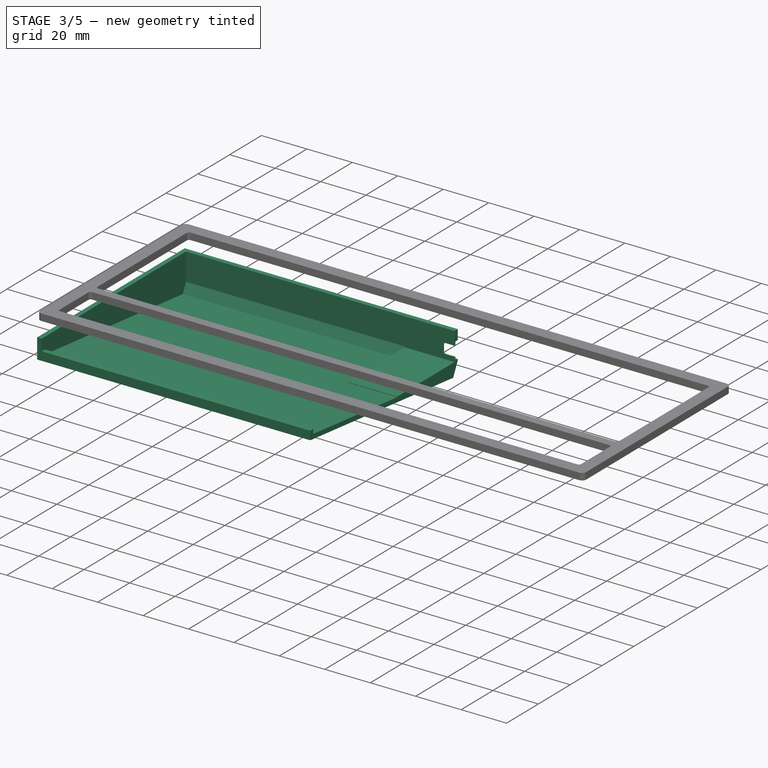
[diagram: stage 3 of 5 — iso view after this stage's code; geometry added in this stage tinted green]
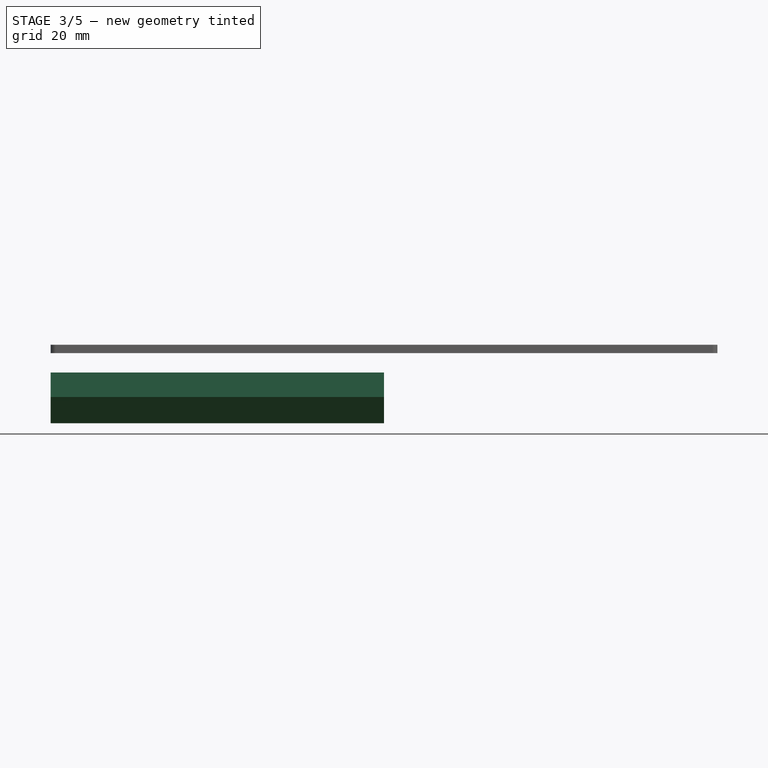
[diagram: stage 3 of 5 — front view after this stage's code; geometry added in this stage tinted green]
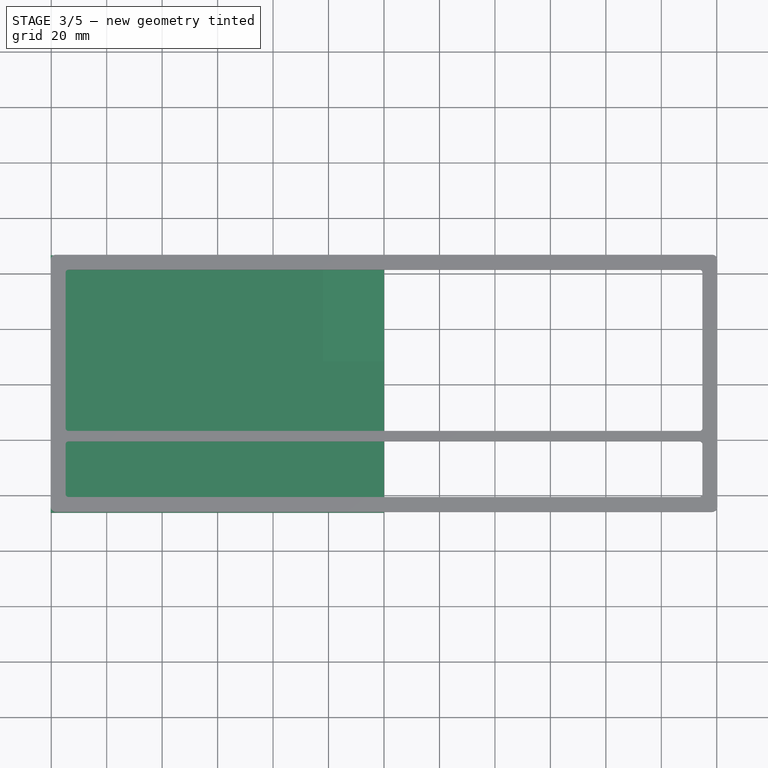
[diagram: stage 3 of 5 — top view after this stage's code; geometry added in this stage tinted green]
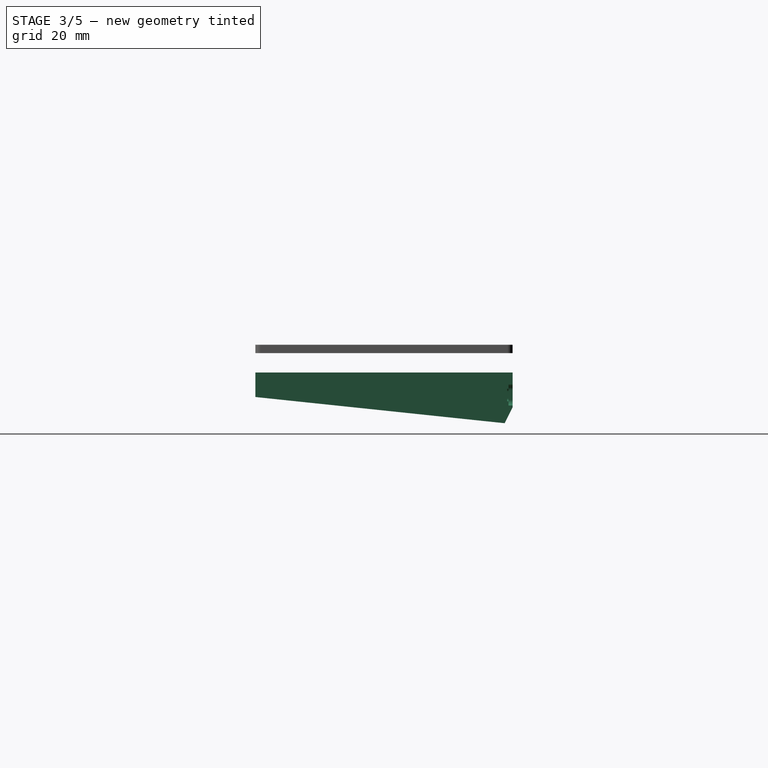
[diagram: stage 3 of 5 — right view after this stage's code; geometry added in this stage tinted green]
FEATURE [Sketcher::SketchObject] Sketch017
  FullyConstrained = true
  MapMode = 5
  Support = -> [XY_Plane175]
  expr: Constraints[10] = <<vals_Case>>.caseWidth / 2
  expr: Constraints[9] = <<vals_Case>>.caseHeight
  sketch-geometry (4):
    g0: LineSegment StartX=-122.3 StartY=48.4813 StartZ=0 EndX=0 EndY=48.4813 EndZ=0
    g1: LineSegment StartX=0 StartY=48.4813 StartZ=0 EndX=0 EndY=-48.4813 EndZ=0
    g2: LineSegment StartX=0 StartY=-48.4813 StartZ=0 EndX=-122.3 EndY=-48.4813 EndZ=0
    g3: LineSegment StartX=-122.3 StartY=-48.4813 StartZ=0 EndX=-122.3 EndY=48.4813 EndZ=0
  constraints (11):
    c: Coincident(g0,g1)
    c: Coincident(g1,g2)
    c: Coincident(g2,g3)
    c: Coincident(g3,g0)
    c: Horizontal(g0)
    c: Horizontal(g2)
    c: Vertical(g1)
    c: Vertical(g3)
    c: Symmetric(g1,g1,g-1)
    c: DistanceY(g3,g3) = 96.9625
    c: DistanceX(g0,g0) = 122.3
FEATURE [PartDesign::Pad] Pad009
  BaseFeature = -> Pad008
  Direction = (0,0,1)
  Length = 4.5
  Length2 = 10
  Profile = -> Sketch017
  ReferenceAxis = -> Sketch017 [N_Axis]
  Reversed = true
  Type = 0
  expr: Length = <<vals_Case>>.caseTopHeight - <<vals_Case>>.heightAbovePlate
FEATURE [Sketcher::SketchObject] Sketch018
  FullyConstrained = true
  MapMode = 5
  Placement = pos=(0,0,7.5) rot=(0,0,1;0rad)
  Support = -> [DatumPlane004]
  expr: Constraints[10] = 2 * <<vals_Case>>.spacing + 2 * <<vals_Case>>.keysafety
  expr: Constraints[12] = <<vals_Case>>.spacing
  expr: Constraints[13] = <<vals_Case>>.spacing * 4 + <<vals_Case>>.keysafety * 2
  expr: Constraints[14] = <<vals_Case>>.caseHeight / 2 - <<vals_Case>>.borderW
  expr: Constraints[1] = <<vals_Case>>.caseHandOffset / 2
  expr: Constraints[9] = 5 * <<vals_Case>>.spacing + 2 * <<vals_Case>>.keysafety
  sketch-geometry (6):
    g0: LineSegment StartX=-57.15 StartY=-17.1688 StartZ=0 EndX=0 EndY=-17.1688 EndZ=0
    g1: LineSegment StartX=0 StartY=40.9813 StartZ=0 EndX=-96.25 EndY=40.9813 EndZ=0
    g2: LineSegment StartX=-96.25 StartY=40.9813 StartZ=0 EndX=-96.25 EndY=-36.2188 EndZ=0
    g3: LineSegment StartX=-96.25 StartY=-36.2188 StartZ=0 EndX=-57.15 EndY=-36.2188 EndZ=0
    g4: LineSegment StartX=-57.15 StartY=-36.2188 StartZ=0 EndX=-57.15 EndY=-17.1688 EndZ=0
    g5: LineSegment StartX=0 StartY=40.9813 StartZ=0 EndX=0 EndY=-17.1688 EndZ=0
  constraints (18):
    c: Horizontal(g0)
    c: DistanceX(g1,g-1) = 0
    c: Horizontal(g1)
    c: Coincident(g1,g2)
    c: Vertical(g2)
    c: Coincident(g2,g3)
    c: Horizontal(g3)
    c: Coincident(g3,g4)
    c: Vertical(g4)
    c: DistanceX(g1,g1) = 96.25
    c: DistanceX(g3,g3) = 39.1
    c: Coincident(g0,g4)
    c: DistanceY(g4,g4) = 19.05
    c: DistanceY(g2,g2) = 77.2
    c: DistanceY(g-1,g1) = 40.9813
    c: Coincident(g5,g1)
    c: Coincident(g5,g0)
    c: Vertical(g5)
FEATURE [PartDesign::Pocket] Pocket008
  BaseFeature = -> Pad009
  Direction = (0,0,-1)
  Length = 12
  Length2 = 5
  Profile = -> Sketch018
  ReferenceAxis = -> Sketch018 [N_Axis]
  Type = 0
  expr: Length = <<vals_Case>>.caseTopHeight
FEATURE [Sketcher::SketchObject] Sketch019
  FullyConstrained = true
  MapMode = 5
  Placement = pos=(0,0,-4.5) rot=(0,0,1;0rad)
  Support = -> [DatumPlane005]
  expr: Constraints[10] = <<vals_Case>>.caseHeight
  expr: Constraints[9] = <<vals_Case>>.caseWidth / 2
  sketch-geometry (4):
    g0: LineSegment StartX=-122.3 StartY=48.4813 StartZ=0 EndX=0 EndY=48.4813 EndZ=0
    g1: LineSegment StartX=0 StartY=48.4813 StartZ=0 EndX=0 EndY=-48.4813 EndZ=0
    g2: LineSegment StartX=0 StartY=-48.4813 StartZ=0 EndX=-122.3 EndY=-48.4813 EndZ=0
    g3: LineSegment StartX=-122.3 StartY=-48.4813 StartZ=0 EndX=-122.3 EndY=48.4813 EndZ=0
  constraints (11):
    c: Coincident(g0,g1)
    c: Coincident(g1,g2)
    c: Coincident(g2,g3)
    c: Coincident(g3,g0)
    c: Horizontal(g0)
    c: Horizontal(g2)
    c: Vertical(g1)
    c: Vertical(g3)
    c: Symmetric(g1,g1,g-1)
    c: DistanceX(g0,g0) = 122.3
    c: DistanceY(g3,g3) = 96.9625
FEATURE [PartDesign::Pad] Pad010
  BaseFeature = -> Pocket008
  Direction = (0,0,1)
  Length = 30
  Length2 = 10
  Profile = -> Sketch019
  ReferenceAxis = -> Sketch019 [N_Axis]
  Reversed = true
  Type = 0
  expr: Length = 30
FEATURE [Sketcher::SketchObject] Sketch020
  FullyConstrained = true
  MapMode = 5
  Placement = pos=(-122.3,2.72e-14,-2.72e-14) rot=(0.57735,0.57735,0.57735;2.0944rad)
  Support = -> [DatumPlane006]
  expr: Constraints[14] = <<vals_Case>>.caseBackOffset
  expr: Constraints[20] = <<vals_Case>>.caseTopHeight - <<vals_Case>>.heightAbovePlate
  expr: Constraints[2] = <<vals_Case>>.bottomMinHeight
  expr: Constraints[3] = <<vals_Case>>.typingAngle
  expr: Constraints[5] = <<vals_Case>>.caseHeight / 2 - <<vals_Case>>.caseBackOffset
  expr: Constraints[6] = <<vals_Case>>.caseHeight / 2
  expr: Constraints[7] = 30
  sketch-geometry (7):
    g0: LineSegment StartX=-48.4813 StartY=-11.1 StartZ=0 EndX=43.4813 EndY=-20.7656 EndZ=0
    g1: LineSegment StartX=43.4813 StartY=-20.7656 StartZ=0 EndX=46.4813 EndY=-14.7656 EndZ=0
    g2: LineSegment StartX=48.4813 StartY=-41.1 StartZ=0 EndX=-48.4813 EndY=-41.1 EndZ=0
    g3: LineSegment StartX=-48.4813 StartY=-11.1 StartZ=0 EndX=-48.4813 EndY=-41.1 EndZ=0
    g4: LineSegment StartX=48.4813 StartY=-41.1 StartZ=0 EndX=48.4813 EndY=-4.5 EndZ=0
    g5: LineSegment StartX=48.4813 StartY=-4.5 StartZ=0 EndX=46.4813 EndY=-4.5 EndZ=0
    g6: LineSegment StartX=46.4813 StartY=-4.5 StartZ=0 EndX=46.4813 EndY=-14.7656 EndZ=0
  constraints (21):
    c: Coincident(g0,g1)
    c: Horizontal(g2)
    c: DistanceY(g0,g-1) = 11.1
    c: Angle(g0,g-1) = 0.10472
    c: DistanceY(g0,g1) = 6
    c: DistanceX(g-1,g1) = 46.4813
    c: DistanceX(g0,g-1) = 48.4813
    c: DistanceY(g2,g0) = 30
    c: DistanceX(g0,g1) = 3
    c: Vertical(g3)
    c: Coincident(g2,g3)
    c: Coincident(g3,g0)
    c: Coincident(g4,g2)
    c: Vertical(g4)
    c: DistanceX(g1,g4) = 2
    c: Coincident(g5,g4)
    c: Horizontal(g5)
    c: Coincident(g6,g5)
    c: Coincident(g6,g1)
    c: Vertical(g6)
    c: DistanceY(g4,g-1) = 4.5
FEATURE [PartDesign::Pocket] Pocket009
  BaseFeature = -> Pad010
  Direction = (-1,1e-16,-1e-16)
  Length = 122.3
  Length2 = 5
  Profile = -> Sketch020
  ReferenceAxis = -> Sketch020 [N_Axis]
  Reversed = true
  Type = 0
  expr: Length = <<vals_Case>>.caseWidth / 2
FEATURE [Sketcher::SketchObject] Sketch021
  FullyConstrained = false
  MapMode = 5
  Placement = pos=(-122.3,2.72e-14,-2.72e-14) rot=(0.57735,0.57735,0.57735;2.0944rad)
  Support = -> [DatumPlane006]
  sketch-geometry (5):
    g0: LineSegment StartX=7.36554 StartY=-5 StartZ=0 EndX=-18.7892 EndY=-23.006 EndZ=0
    g1: LineSegment StartX=-18.7892 StartY=-23.006 StartZ=0 EndX=54.0162 EndY=-23.006 EndZ=0
    g2: LineSegment StartX=54.0162 StartY=-23.006 StartZ=0 EndX=67.7623 EndY=-16.9849 EndZ=0
    g3: LineSegment StartX=7.36554 StartY=-5 StartZ=0 EndX=69.9389 EndY=-5 EndZ=0
    g4: LineSegment StartX=69.9389 StartY=-5 StartZ=0 EndX=67.7623 EndY=-16.9849 EndZ=0
  constraints (8):
    c: Coincident(g0,g1)
    c: Coincident(g1,g2)
    c: Horizontal(g1)
    c: Coincident(g0,g3)
    c: Horizontal(g3)
    c: Coincident(g3,g4)
    c: Coincident(g4,g2)
    c: DistanceY(g0,g-1) = 5
FEATURE [PartDesign::Pocket] Pocket010
  BaseFeature = -> Pocket009
  Direction = (-1,1e-16,-1e-16)
  Length = 2
  Length2 = 5
  Profile = -> Sketch021
  ReferenceAxis = -> Sketch021 [N_Axis]
  Reversed = true
  Type = 0
  expr: Length = <<vals_Case>>.caseBackOffset
FEATURE [Sketcher::SketchObject] Sketch024
  FullyConstrained = true
  MapMode = 5
  Placement = pos=(-122.3,2.72e-14,-2.72e-14) rot=(0.57735,0.57735,0.57735;2.0944rad)
  Support = -> [DatumPlane006]
  expr: Constraints[10] = <<vals_Case>>.caseTopHeight - <<vals_Case>>.wallThickness
  expr: Constraints[7] = <<vals_Case>>.heightAbovePlate
  expr: Constraints[8] = <<vals_Case>>.caseHeight / 2
  expr: Constraints[9] = <<vals_Case>>.caseHeight
  sketch-geometry (4):
    g0: LineSegment StartX=-48.4813 StartY=7.5 StartZ=0 EndX=48.4813 EndY=7.5 EndZ=0
    g1: LineSegment StartX=48.4813 StartY=7.5 StartZ=0 EndX=48.4813 EndY=-2.5 EndZ=0
    g2: LineSegment StartX=48.4813 StartY=-2.5 StartZ=0 EndX=-48.4813 EndY=-2.5 EndZ=0
    g3: LineSegment StartX=-48.4813 StartY=-2.5 StartZ=0 EndX=-48.4813 EndY=7.5 EndZ=0
  constraints (12):
    c: Horizontal(g0)
    c: Coincident(g0,g1)
    c: Vertical(g1)
    c: Coincident(g1,g2)
    c: Horizontal(g2)
    c: Coincident(g3,g0)
    c: Vertical(g3)
    c: DistanceY(g-1,g0) = 7.5
    c: DistanceX(g0,g-1) = 48.4813
    c: DistanceX(g0,g0) = 96.9625
    c: DistanceY(g1,g1) = 10
    c: Coincident(g3,g2)
FEATURE [PartDesign::Pocket] Pocket013
  BaseFeature = -> Pocket010
  Direction = (-1,1e-16,-1e-16)
  Length = 244.6
  Length2 = 5
  Profile = -> Sketch024
  ReferenceAxis = -> Sketch024 [N_Axis]
  Reversed = true
  Type = 0
  expr: Length = <<vals_Case>>.caseWidth
FEATURE [Sketcher::SketchObject] Sketch025
  FullyConstrained = true
  MapMode = 5
  Placement = pos=(0,0,7.5) rot=(0,0,1;0rad)
  Support = -> [DatumPlane004]
  expr: Constraints[17] = <<vals_Case>>.caseHeight - 2 * <<vals_Case>>.wallThickness - 2 * <<vals_Case>>.acrylSafety
  expr: Constraints[18] = <<vals_Case>>.caseWidth / 2 - <<vals_Case>>.wallThickness - <<vals_Case>>.acrylSafety
  expr: Constraints[19] = <<vals_Case>>.wallThickness * 3
  expr: Constraints[20] = <<vals_Case>>.wallThickness * 3
  expr: Constraints[21] = <<vals_Case>>.wallThickness * 3
  expr: Constraints[22] = <<vals_Case>>.wallThickness * 3
  sketch-geometry (8):
    g0: LineSegment StartX=-120.2 StartY=46.3813 StartZ=0 EndX=0 EndY=46.3813 EndZ=0
    g1: LineSegment StartX=0 StartY=46.3813 StartZ=0 EndX=0 EndY=-46.3813 EndZ=0
    g2: LineSegment StartX=0 StartY=-46.3813 StartZ=0 EndX=-120.2 EndY=-46.3813 EndZ=0
    g3: LineSegment StartX=-120.2 StartY=-46.3813 StartZ=0 EndX=-120.2 EndY=46.3813 EndZ=0
    g4: LineSegment StartX=-126.2 StartY=52.3813 StartZ=0 EndX=6 EndY=52.3813 EndZ=0
    g5: LineSegment StartX=6 StartY=52.3813 StartZ=0 EndX=6 EndY=-52.3813 EndZ=0
    g6: LineSegment StartX=6 StartY=-52.3813 StartZ=0 EndX=-126.2 EndY=-52.3813 EndZ=0
    g7: LineSegment StartX=-126.2 StartY=-52.3813 StartZ=0 EndX=-126.2 EndY=52.3813 EndZ=0
  constraints (23):
    c: Coincident(g0,g1)
    c: Coincident(g1,g2)
    c: Coincident(g2,g3)
    c: Coincident(g3,g0)
    c: Horizontal(g0)
    c: Horizontal(g2)
    c: Vertical(g1)
    c: Vertical(g3)
    c: Coincident(g4,g5)
    c: Coincident(g5,g6)
    c: Coincident(g6,g7)
    c: Coincident(g7,g4)
    c: Horizontal(g4)
    c: Horizontal(g6)
    c: Vertical(g5)
    c: Vertical(g7)
    c: Symmetric(g1,g1,g-1)
    c: DistanceY(g1,g1) = 92.7625
    c: DistanceX(g0,g0) = 120.2
    c: DistanceY(g0,g4) = 6
    c: DistanceX(g4,g0) = 6
    c: DistanceX(g1,g5) = 6
    c: DistanceY(g5,g1) = 6
FEATURE [PartDesign::Pocket] Pocket014
  BaseFeature = -> Pocket013
  Direction = (0,0,-1)
  Length = 30
  Length2 = 5
  Profile = -> Sketch025
  ReferenceAxis = -> Sketch025 [N_Axis]
  Type = 0
  expr: Length = 30
FEATURE [PartDesign::Plane] DatumPlane008
  AttachmentOffset = pos=(0,0,4.1) rot=(0,0,1;0rad)
  Length = 108.758
  MapMode = 5
  Placement = pos=(-118.2,2.67e-14,-2.67e-14) rot=(0.57735,0.57735,0.57735;2.0944rad)
  ResizeMode = 0
  Support = -> [DatumPlane006]
  Width = 63.7823
  expr: .AttachmentOffset.Base.z = 2 * <<vals_Case>>.wallThickness + <<vals_Case>>.acrylSafety
FEATURE [Sketcher::SketchObject] Sketch026
  ExternalGeometry = -> [Pocket014]
  FullyConstrained = true
  MapMode = 5
  Placement = pos=(-118.2,2.67e-14,-2.67e-14) rot=(0.57735,0.57735,0.57735;2.0944rad)
  Support = -> [DatumPlane008]
  expr: Constraints[18] = <<vals_Case>>.wallThickness
  expr: Constraints[19] = <<vals_Case>>.wallThickness
  expr: Constraints[25] = <<vals_Case>>.wallThickness
  expr: Constraints[7] = <<vals_Case>>.wallThickness
  sketch-geometry (9):
    g0: LineSegment StartX=-44.3813 StartY=-9.51991 StartZ=0 EndX=42.3121 EndY=-18.6318 EndZ=0
    g1: LineSegment StartX=42.3121 StartY=-18.6318 StartZ=0 EndX=44.3812 EndY=-14.4935 EndZ=0
    g2: LineSegment StartX=44.3812 StartY=-14.4935 StartZ=0 EndX=44.3812 EndY=0 EndZ=0
    g3: LineSegment StartX=44.3812 StartY=0 StartZ=0 EndX=-46.3813 EndY=0 EndZ=0
    g4: LineSegment StartX=42.3121 StartY=-18.6318 StartZ=0 EndX=42.1031 EndY=-20.6208 EndZ=0
    g5: LineSegment StartX=43.3467 StartY=-16.5626 StartZ=0 EndX=45.1355 EndY=-17.4571 EndZ=0
    g6: LineSegment StartX=-44.3813 StartY=-9.51991 StartZ=0 EndX=-44.3813 EndY=-7.51991 EndZ=0
    g7: LineSegment StartX=-44.3813 StartY=-7.51991 StartZ=0 EndX=-46.3813 EndY=-7.51991 EndZ=0
    g8: LineSegment StartX=-46.3813 StartY=-7.51991 StartZ=0 EndX=-46.3813 EndY=0 EndZ=0
  constraints (27):
    c: Coincident(g0,g1)
    c: Coincident(g1,g2)
    c: Vertical(g2)
    c: Coincident(g2,g3)
    c: Horizontal(g3)
    c: Coincident(g4,g0)
    c: Perpendicular(g5,g1)
    c: Distance(g4) = 2
    c: Equal(g5,g4)
    c: Symmetric(g1,g1,g5)
    c: PointOnObject(g3,g-1)
    c: Coincident(g0,g6)
    c: Vertical(g6)
    c: Coincident(g6,g7)
    c: Horizontal(g7)
    c: Coincident(g7,g8)
    c: Coincident(g8,g3)
    c: Vertical(g8)
    c: DistanceY(g6,g6) = 2
    c: DistanceX(g7,g7) = 2
    c: PointOnObject(g7,g-3)
    c: PointOnObject(g5,g-4)
    c: PointOnObject(g4,g-6)
    c: Perpendicular(g-6,g4)
    c: Perpendicular(g-4,g5)
    c: DistanceX(g2,g-5) = 2
    c: Parallel(g0,g-6)
FEATURE [PartDesign::Pocket] Pocket015
  BaseFeature = -> Pocket014
  Direction = (-1,0,0)
  Length = 244.6
  Length2 = 5
  Profile = -> Sketch026
  ReferenceAxis = -> Sketch026 [N_Axis]
  Reversed = true
  Type = 0
  expr: Length = <<vals_Case>>.caseWidth
FEATURE [Sketcher::SketchObject] Sketch027
  ExternalGeometry = -> [Pocket015]
  FullyConstrained = true
  MapMode = 5
  Placement = pos=(0,46.3813,0) rot=(0,0.707107,0.707107;3.14159rad)
  Support = -> [Pocket015]
  expr: Constraints[16] = 7.5
  expr: Constraints[17] = 13.5 / 2
  sketch-geometry (8):
    g0: ArcOfCircle CenterX=4.75 CenterY=-8.86565 CenterZ=0 NormalX=0 NormalY=0 NormalZ=1 AngleXU=0 Radius=2 StartAngle=0 EndAngle=1.5708
    g1: ArcOfCircle CenterX=4.75 CenterY=-12.3656 CenterZ=0 NormalX=0 NormalY=0 NormalZ=1 AngleXU=0 Radius=2 StartAngle=4.71239 EndAngle=6.28319
    g2: LineSegment StartX=6.75 StartY=-8.86565 StartZ=0 EndX=6.75 EndY=-12.3656 EndZ=0
    g3: LineSegment StartX=4.75 StartY=-6.86565 StartZ=0 EndX=0 EndY=-6.86565 EndZ=0
    g4: LineSegment StartX=4.75 StartY=-14.3656 StartZ=0 EndX=0 EndY=-14.3656 EndZ=0
    g5: LineSegment StartX=0 StartY=-14.3656 StartZ=0 EndX=0 EndY=-6.86565 EndZ=0
    g6: LineSegment StartX=0 StartY=-4.5 StartZ=0 EndX=0 EndY=-6.86565 EndZ=0
    g7: LineSegment StartX=0 StartY=-14.9656 StartZ=0 EndX=0 EndY=-14.3656 EndZ=0
  constraints (24):
    c: Horizontal(g1,g1)
    c: Horizontal(g0,g0)
    c: Vertical(g0,g0)
    c: Vertical(g1,g1)
    c: Vertical(g1,g0)
    c: Coincident(g2,g0)
    c: Coincident(g2,g1)
    c: Vertical(g2)
    c: Coincident(g3,g0)
    c: PointOnObject(g3,g-2)
    c: Horizontal(g3)
    c: Coincident(g4,g1)
    c: PointOnObject(g4,g-2)
    c: Coincident(g5,g4)
    c: Coincident(g5,g3)
    c: Horizontal(g4)
    c: DistanceY(g5,g5) = 7.5
    c: DistanceX(g3,g0) = 6.75
    c: Radius(g0) = 2
    c: Coincident(g6,g3)
    c: Coincident(g7,g4)
    c: Coincident(g6,g-4)
    c: Coincident(g7,g-3)
    c: DistanceY(g7,g7) = 0.6
FEATURE [PartDesign::Pocket] Pocket016
  BaseFeature = -> Pocket015
  Direction = (0,-1,2e-16)
  Length = 1.5
  Length2 = 5
  Profile = -> Sketch027
  ReferenceAxis = -> Sketch027 [N_Axis]
  Type = 0
FEATURE [Sketcher::SketchObject] Sketch028
  ExternalGeometry = -> [Pocket016]
  FullyConstrained = true
  MapMode = 5
  Placement = pos=(0,44.8812,0) rot=(0,0.707107,0.707107;3.14159rad)
  Support = -> [Pocket016]
  sketch-geometry (8):
    g0: ArcOfCircle CenterX=4 CenterY=-9.36565 CenterZ=0 NormalX=0 NormalY=0 NormalZ=1 AngleXU=0 Radius=1 StartAngle=0 EndAngle=1.5708
    g1: ArcOfCircle CenterX=4 CenterY=-11.8656 CenterZ=0 NormalX=0 NormalY=0 NormalZ=1 AngleXU=0 Radius=1 StartAngle=4.71239 EndAngle=6.28319
    g2: LineSegment StartX=5 StartY=-9.36565 StartZ=0 EndX=5 EndY=-11.8656 EndZ=0
    g3: LineSegment StartX=4 StartY=-8.36565 StartZ=0 EndX=0 EndY=-8.36565 EndZ=0
    g4: LineSegment StartX=0 StartY=-8.36565 StartZ=0 EndX=0 EndY=-12.8656 EndZ=0
    g5: LineSegment StartX=0 StartY=-12.8656 StartZ=0 EndX=4 EndY=-12.8656 EndZ=0
    g6: LineSegment StartX=0 StartY=-14.3656 StartZ=0 EndX=0 EndY=-12.8656 EndZ=0
    g7: LineSegment StartX=0 StartY=-6.86565 StartZ=0 EndX=0 EndY=-8.36565 EndZ=0
  constraints (24):
    c: Vertical(g1,g1)
    c: Vertical(g0,g0)
    c: Horizontal(g0,g0)
    c: Horizontal(g1,g1)
    c: Vertical(g1,g0)
    c: Equal(g0,g1)
    c: Radius(g0) = 1
    c: Coincident(g2,g0)
    c: Coincident(g2,g1)
    c: Coincident(g3,g0)
    c: PointOnObject(g3,g-2)
    c: Horizontal(g3)
    c: Coincident(g4,g3)
    c: Vertical(g4)
    c: Coincident(g5,g4)
    c: Coincident(g5,g1)
    c: Horizontal(g5)
    c: Coincident(g6,g-4)
    c: Coincident(g6,g4)
    c: Coincident(g7,g-3)
    c: Coincident(g7,g3)
    c: Equal(g7,g6)
    c: DistanceY(g7,g7) = 1.5
    c: DistanceX(g3,g0) = 5
FEATURE [PartDesign::Pocket] Pocket017
  BaseFeature = -> Pocket016
  Direction = (0,-1,2e-16)
  Length = 5
  Length2 = 5
  Profile = -> Sketch028
  ReferenceAxis = -> Sketch028 [N_Axis]
  Type = 0
FEATURE [PartDesign::Plane] DatumPlane009
  Length = 108.758
  MapMode = 2
  Placement = pos=(0,0,0) rot=(0.57735,0.57735,0.57735;2.0944rad)
  ResizeMode = 0
  Support = -> [YZ_Plane175]
  Width = 63.7823
FEATURE [Sketcher::SketchObject] Sketch029
  FullyConstrained = true
  MapMode = 5
  Placement = pos=(0,0,0) rot=(0.57735,0.57735,0.57735;2.0944rad)
  Support = -> [DatumPlane009]
  expr: Constraints[1] = <<vals_Case>>.caseHeight / 2 - 2 * <<vals_Case>>.wallThickness - <<vals_Case>>.acrylSafety
  sketch-geometry (5):
    g0: LineSegment StartX=8.38125 StartY=-16 StartZ=0 EndX=44.3813 EndY=-18.8 EndZ=0
    g1: LineSegment StartX=44.3813 StartY=-16 StartZ=0 EndX=44.3813 EndY=-18.8 EndZ=0
    g2: LineSegment StartX=8.38125 StartY=-16 StartZ=0 EndX=8.38125 EndY=-14 EndZ=0
    g3: LineSegment StartX=8.38125 StartY=-14 StartZ=0 EndX=44.3813 EndY=-14 EndZ=0
    g4: LineSegment StartX=44.3813 StartY=-14 StartZ=0 EndX=44.3813 EndY=-16 EndZ=0
  constraints (15):
    c: DistanceY(g0,g-1) = 16
    c: DistanceX(g-1,g1) = 44.3813
    c: Vertical(g1)
    c: Coincident(g0,g1)
    c: DistanceY(g1,g1) = 2.8
    c: DistanceX(g0,g1) = 36
    c: Coincident(g2,g0)
    c: Vertical(g2)
    c: Coincident(g3,g2)
    c: Horizontal(g3)
    c: Coincident(g4,g3)
    c: Coincident(g4,g1)
    c: Vertical(g4)
    c: Horizontal(g1,g0)
    c: DistanceY(g2,g2) = 2
FEATURE [PartDesign::Pad] Pad011
  BaseFeature = -> Pocket017
  Direction = (1,-1e-16,1e-16)
  Length = 22
  Length2 = 10
  Profile = -> Sketch029
  ReferenceAxis = -> Sketch029 [N_Axis]
  Reversed = true
  Type = 0
FEATURE [PartDesign::Pocket] Pocket018
  BaseFeature = -> Pad011
  Direction = (1e-16,-1e-16,-1)
  Length = 0.85
  Length2 = 5
  Profile = -> Pad011 [Face26]
  Type = 0
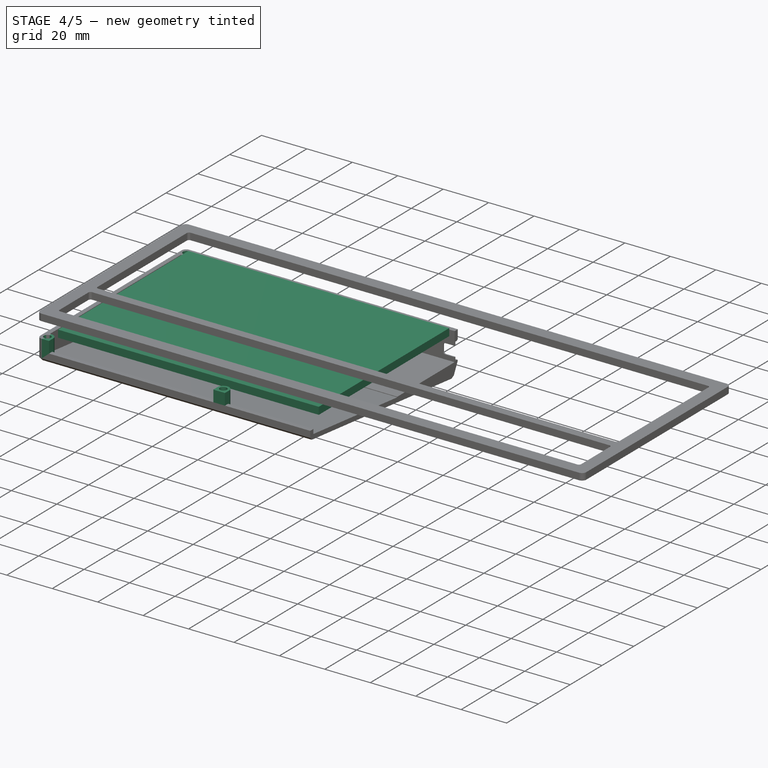
[diagram: stage 4 of 5 — iso view after this stage's code; geometry added in this stage tinted green]
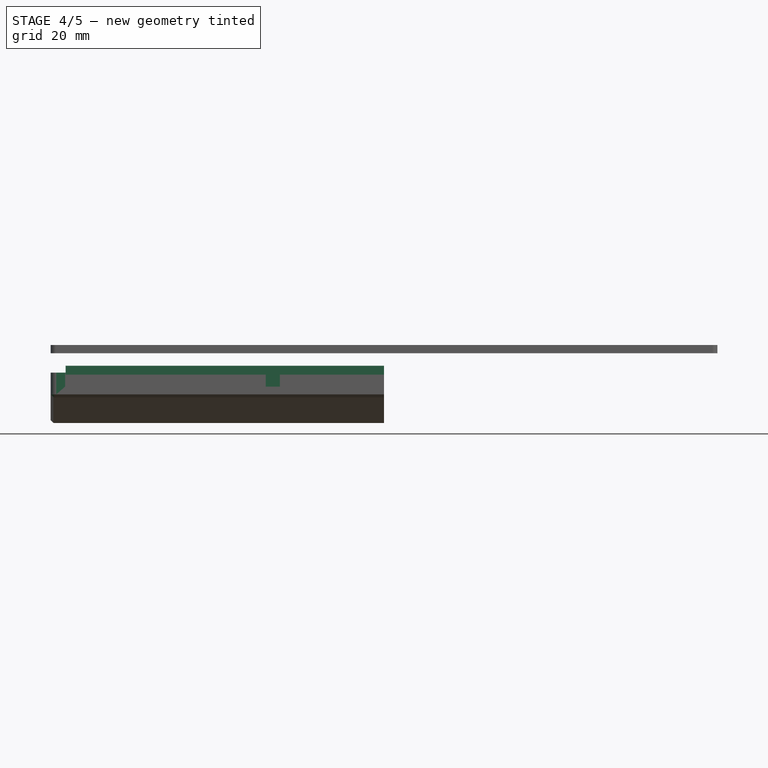
[diagram: stage 4 of 5 — front view after this stage's code; geometry added in this stage tinted green]
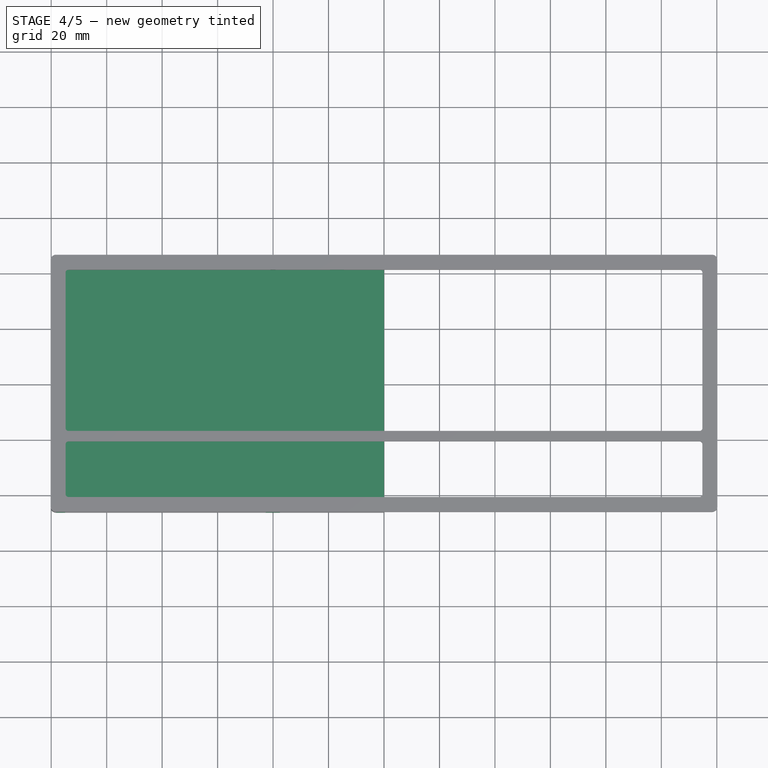
[diagram: stage 4 of 5 — top view after this stage's code; geometry added in this stage tinted green]
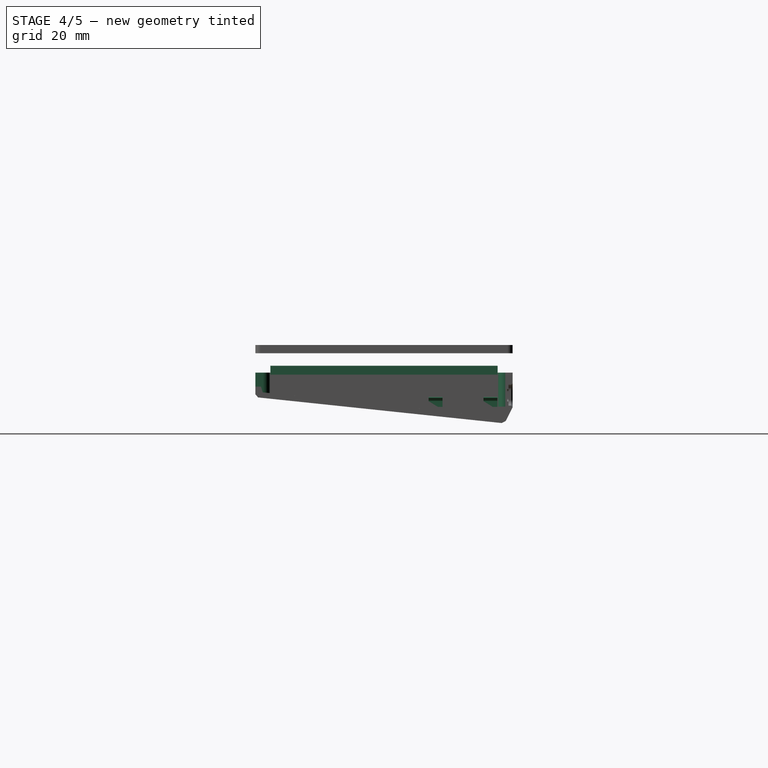
[diagram: stage 4 of 5 — right view after this stage's code; geometry added in this stage tinted green]
FEATURE [Sketcher::SketchObject] Sketch030
  FullyConstrained = true
  MapMode = 5
  Placement = pos=(1.6e-15,-1.6e-15,-14.85) rot=(0,0,1;0rad)
  Support = -> [Pocket018]
  expr: Constraints[11] = <<vals_Case>>.caseHeight / 2 - 2 * <<vals_Case>>.wallThickness - <<vals_Case>>.acrylSafety - 2.35
  sketch-geometry (8):
    g0: LineSegment StartX=-19.5 StartY=42.0312 StartZ=0 EndX=-14.5 EndY=42.0312 EndZ=0
    g1: LineSegment StartX=-14.5 StartY=42.0312 StartZ=0 EndX=-14.5 EndY=34.7313 EndZ=0
    g2: LineSegment StartX=-14.5 StartY=34.7313 StartZ=0 EndX=-19.5 EndY=34.7313 EndZ=0
    g3: LineSegment StartX=-19.5 StartY=34.7313 StartZ=0 EndX=-19.5 EndY=42.0312 EndZ=0
    g4: LineSegment StartX=-19.5 StartY=22.2312 StartZ=0 EndX=-14.5 EndY=22.2312 EndZ=0
    g5: LineSegment StartX=-14.5 StartY=22.2312 StartZ=0 EndX=-14.5 EndY=14.9313 EndZ=0
    g6: LineSegment StartX=-14.5 StartY=14.9313 StartZ=0 EndX=-19.5 EndY=14.9313 EndZ=0
    g7: LineSegment StartX=-19.5 StartY=14.9313 StartZ=0 EndX=-19.5 EndY=22.2312 EndZ=0
  constraints (24):
    c: Coincident(g0,g1)
    c: Coincident(g1,g2)
    c: Coincident(g2,g3)
    c: Coincident(g3,g0)
    c: Horizontal(g0)
    c: Horizontal(g2)
    c: Vertical(g1)
    c: Vertical(g3)
    c: DistanceX(g0,g0) = 5
    c: DistanceX(g0,g-1) = 19.5
    c: DistanceY(g3,g3) = 7.3
    c: DistanceY(g-1,g0) = 42.0312
    c: Coincident(g4,g5)
    c: Coincident(g5,g6)
    c: Coincident(g6,g7)
    c: Coincident(g7,g4)
    c: Horizontal(g4)
    c: Horizontal(g6)
    c: Vertical(g5)
    c: Vertical(g7)
    c: DistanceX(g4,g4) = 5
    c: DistanceY(g7,g7) = 7.3
    c: Vertical(g2,g4)
    c: DistanceY(g4,g2) = 12.5
FEATURE [PartDesign::Pocket] Pocket019
  BaseFeature = -> Pocket018
  Direction = (1e-16,-1e-16,-1)
  Length = 1.5
  Length2 = 5
  Profile = -> Sketch030
  ReferenceAxis = -> Sketch030 [N_Axis]
  Type = 0
FEATURE [Sketcher::SketchObject] Sketch031
  FullyConstrained = true
  MapMode = 5
  Placement = pos=(1.5e-15,-2e-15,-16.35) rot=(0,0,1;0rad)
  Support = -> [Pocket019]
  expr: Constraints[10] = <<vals_Case>>.caseHeight / 2 - <<vals_Case>>.wallThickness * 2 - <<vals_Case>>.acrylSafety - 2.35 - 1.15
  expr: Constraints[8] = 10.3 + 14.5
  sketch-geometry (4):
    g0: LineSegment StartX=-15.35 StartY=40.8813 StartZ=0 EndX=-18.35 EndY=40.8813 EndZ=0
    g1: LineSegment StartX=-18.35 StartY=40.8813 StartZ=0 EndX=-18.35 EndY=16.0813 EndZ=0
    g2: LineSegment StartX=-18.35 StartY=16.0813 StartZ=0 EndX=-15.35 EndY=16.0813 EndZ=0
    g3: LineSegment StartX=-15.35 StartY=16.0813 StartZ=0 EndX=-15.35 EndY=40.8813 EndZ=0
  constraints (12):
    c: Coincident(g0,g1)
    c: Coincident(g1,g2)
    c: Coincident(g2,g3)
    c: Coincident(g3,g0)
    c: Horizontal(g0)
    c: Horizontal(g2)
    c: Vertical(g1)
    c: Vertical(g3)
    c: DistanceY(g3,g3) = 24.8
    c: DistanceX(g0,g0) = 3
    c: DistanceY(g-1,g0) = 40.8813
    c: DistanceX(g2,g-1) = 15.35
FEATURE [PartDesign::Pad] Pad012
  BaseFeature = -> Pocket019
  Direction = (-1e-16,1e-16,1)
  Length = 5.85
  Length2 = 10
  Profile = -> Sketch031
  ReferenceAxis = -> Sketch031 [N_Axis]
  Type = 0
  expr: Length = 1.5 + 1.2 + 0.15 + 3
FEATURE [Sketcher::SketchObject] Sketch032
  ExternalGeometry = -> [Pad012]
  FullyConstrained = false
  MapMode = 5
  Placement = pos=(0,16.0813,-1.9e-15) rot=(1,0,0;1.5708rad)
  Support = -> [Pad012]
  expr: Constraints[43] = 0.25mm
  expr: Constraints[4] = 1.5 + 1.2 + 0.15
  sketch-geometry (24):
    g0: LineSegment StartX=-17.8592 StartY=-13.5 StartZ=0 EndX=-17.35 EndY=-13.5 EndZ=0
    g1: LineSegment StartX=-17.35 StartY=-13.5 StartZ=0 EndX=-17.35 EndY=-15.85 EndZ=0
    g2: LineSegment StartX=-17.85 StartY=-16.35 StartZ=0 EndX=-18.35 EndY=-16.35 EndZ=0
    g3: LineSegment StartX=-16.35 StartY=-15.85 StartZ=0 EndX=-16.35 EndY=-12.75 EndZ=0
    g4: LineSegment StartX=-16.2812 StartY=-12.4969 StartZ=0 EndX=-15.7636 EndY=-11.6152 EndZ=0
    g5: LineSegment StartX=-14.85 StartY=-8.9 StartZ=0 EndX=-14.85 EndY=-16.35 EndZ=0
    g6: LineSegment StartX=-14.85 StartY=-16.35 StartZ=0 EndX=-15.85 EndY=-16.35 EndZ=0
    g7: LineSegment StartX=-18.1092 StartY=-13.25 StartZ=0 EndX=-18.1092 EndY=-12.75 EndZ=0
    g8: LineSegment StartX=-18.0253 StartY=-12.5632 StartZ=0 EndX=-16.7186 EndY=-11.4008 EndZ=0
    g9: LineSegment StartX=-16.3223 StartY=-11.25 StartZ=0 EndX=-15.9727 EndY=-11.25 EndZ=0
    g10: ArcOfCircle CenterX=-15.85 CenterY=-12.75 CenterZ=0 NormalX=0 NormalY=0 NormalZ=1 AngleXU=0 Radius=0.5 StartAngle=2.61072 EndAngle=3.14159
    g11: ArcOfCircle CenterX=-15.85 CenterY=-15.85 CenterZ=0 NormalX=0 NormalY=0 NormalZ=1 AngleXU=0 Radius=0.5 StartAngle=3.14159 EndAngle=4.71239
    g12: ArcOfCircle CenterX=-17.85 CenterY=-15.85 CenterZ=0 NormalX=0 NormalY=0 NormalZ=1 AngleXU=0 Radius=0.5 StartAngle=4.71239 EndAngle=6.28319
    g13: ArcOfCircle CenterX=-17.8592 CenterY=-13.25 CenterZ=0 NormalX=0 NormalY=0 NormalZ=1 AngleXU=0 Radius=0.25 StartAngle=3.14159 EndAngle=4.71239
    g14: GeomPoint X=-18.1092 Y=-13.5 Z=0
    g15: ArcOfCircle CenterX=-17.8592 CenterY=-12.75 CenterZ=0 NormalX=0 NormalY=0 NormalZ=1 AngleXU=0 Radius=0.25 StartAngle=2.29784 EndAngle=3.14159
    g16: GeomPoint X=-18.3592 Y=-12.75 Z=0
    g17: LineSegment StartX=-14.85 StartY=-8.9 StartZ=0 EndX=-18.85 EndY=-9.25 EndZ=0
    g18: LineSegment StartX=-18.85 StartY=-9.25 StartZ=0 EndX=-18.85 EndY=-16.35 EndZ=0
    g19: LineSegment StartX=-18.85 StartY=-16.35 StartZ=0 EndX=-18.35 EndY=-16.35 EndZ=0
    g20: ArcOfCircle CenterX=-15.9727 CenterY=-11.4925 CenterZ=0 NormalX=0 NormalY=0 NormalZ=1 AngleXU=0 Radius=0.242476 StartAngle=5.75231 EndAngle=7.85398
    g21: GeomPoint X=-15.5492 Y=-11.25 Z=0
    g22: ArcOfCircle CenterX=-16.3223 CenterY=-11.8463 CenterZ=0 NormalX=0 NormalY=0 NormalZ=1 AngleXU=0 Radius=0.596289 StartAngle=1.5708 EndAngle=2.29784
    g23: GeomPoint X=-16.5492 Y=-11.25 Z=0
  constraints (54):
    c: Coincident(g0,g1)
    c: Horizontal(g0)
    c: Vertical(g1)
    c: Horizontal(g2)
    c: DistanceY(g2,g14) = 2.85
    c: Vertical(g3)
    c: Vertical(g5)
    c: Coincident(g5,g6)
    c: Horizontal(g6)
    c: Vertical(g7)
    c: DistanceX(g23,g21) = 1
    c: DistanceY(g14,g16) = 0.75
    c: Tangent(g3,g10) = 1.5708
    c: Tangent(g4,g10) = 1.5708
    c: Horizontal(g10,g16)
    c: Tangent(g3,g11) = 1.5708
    c: Tangent(g6,g11) = 1.5708
    c: Tangent(g1,g12) = 1.5708
    c: Tangent(g2,g12) = 1.5708
    c: Equal(g12,g11)
    c: DistanceX(g2,g1) = 1
    c: DistanceX(g1,g3) = 1
    c: Horizontal(g6,g2)
    c: Radius(g11) = 0.5
    c: Equal(g10,g12)
    c: PointOnObject(g14,g0)
    c: PointOnObject(g14,g7)
    c: Tangent(g0,g13) = -1.5708
    c: Tangent(g7,g13) = 1.5708
    c: Tangent(g7,g15) = 1.5708
    c: Tangent(g8,g15) = 1.5708
    c: Equal(g13,g15)
    c: Radius(g13) = 0.25
    c: DistanceX(g6,g6) = 1
    c: Coincident(g5,g17)
    c: Coincident(g17,g18)
    c: Vertical(g18)
    c: Coincident(g18,g19)
    c: Coincident(g19,g2)
    c: Horizontal(g19)
    c: DistanceX(g19,g19) = 0.5
    c: Horizontal(g9)
    c: DistanceY(g3,g23) = 1.5
    c: DistanceX(g16,g7) = 0.25
    c: PointOnObject(g21,g4)
    c: PointOnObject(g21,g9)
    c: Tangent(g4,g20) = -1.5708
    c: Tangent(g9,g20) = 1.5708
    c: PointOnObject(g23,g8)
    c: PointOnObject(g23,g9)
    c: Tangent(g8,g22) = 1.5708
    c: Tangent(g9,g22) = 1.5708
    c: Horizontal(g16,g7)
    c: Coincident(g2,g-3)
FEATURE [PartDesign::Pocket] Pocket020
  BaseFeature = -> Pad012
  Direction = (0,1,-2e-16)
  Length = 25
  Length2 = 5
  Profile = -> Sketch032
  ReferenceAxis = -> Sketch032 [N_Axis]
  Type = 0
FEATURE [Sketcher::SketchObject] Sketch033
  ExternalGeometry = -> [Pocket020]
  FullyConstrained = false
  MapMode = 5
  Placement = pos=(0,-2.5e-15,-11.25) rot=(0,0,1;0rad)
  Support = -> [Pocket020]
  sketch-geometry (4):
    g0: LineSegment StartX=-18.2558 StartY=35.8813 StartZ=0 EndX=-15.4872 EndY=35.8813 EndZ=0
    g1: LineSegment StartX=-15.4872 StartY=35.8813 StartZ=0 EndX=-15.4872 EndY=21.0813 EndZ=0
    g2: LineSegment StartX=-15.4872 StartY=21.0813 StartZ=0 EndX=-18.2558 EndY=21.0813 EndZ=0
    g3: LineSegment StartX=-18.2558 StartY=21.0813 StartZ=0 EndX=-18.2558 EndY=35.8813 EndZ=0
  constraints (10):
    c: Coincident(g0,g1)
    c: Coincident(g1,g2)
    c: Coincident(g2,g3)
    c: Coincident(g3,g0)
    c: Horizontal(g0)
    c: Horizontal(g2)
    c: Vertical(g1)
    c: Vertical(g3)
    c: DistanceY(g-4,g1) = 5
    c: DistanceY(g0,g-3) = 5
FEATURE [PartDesign::Pocket] Pocket021
  BaseFeature = -> Pocket020
  Direction = (0,-2e-16,-1)
  Length = 0
  Length2 = 5
  Profile = -> Sketch033
  ReferenceAxis = -> Sketch033 [N_Axis]
  Type = 3
  UpToFace = -> Pocket020 [Face47]
FEATURE [Sketcher::SketchObject] Sketch034
  ExternalGeometry = -> [Pocket021]
  FullyConstrained = true
  MapMode = 5
  Placement = pos=(1.6e-15,-1.6e-15,-14.85) rot=(0,0,1;0rad)
  Support = -> [Pocket021]
  sketch-geometry (4):
    g0: LineSegment StartX=-14.5 StartY=34.7313 StartZ=0 EndX=-18.85 EndY=34.7313 EndZ=0
    g1: LineSegment StartX=-18.85 StartY=34.7313 StartZ=0 EndX=-18.85 EndY=22.2312 EndZ=0
    g2: LineSegment StartX=-18.85 StartY=22.2312 StartZ=0 EndX=-14.5 EndY=22.2312 EndZ=0
    g3: LineSegment StartX=-14.5 StartY=22.2312 StartZ=0 EndX=-14.5 EndY=34.7313 EndZ=0
  constraints (10):
    c: Coincident(g0,g1)
    c: Coincident(g1,g2)
    c: Coincident(g2,g3)
    c: Coincident(g3,g0)
    c: Horizontal(g0)
    c: Horizontal(g2)
    c: Vertical(g1)
    c: Vertical(g3)
    c: Coincident(g0,g-3)
    c: Coincident(g-4,g1)
FEATURE [PartDesign::Pad] Pad013
  BaseFeature = -> Pocket021
  Direction = (-1e-16,1e-16,1)
  Length = 4
  Length2 = 10
  Offset = 2
  Profile = -> Sketch034
  ReferenceAxis = -> Sketch034 [N_Axis]
  Reversed = true
  Type = 0
FEATURE [Sketcher::SketchObject] Sketch035
  FullyConstrained = true
  MapMode = 5
  Placement = pos=(3e-16,-3e-16,-2.5) rot=(0,0,1;0rad)
  Support = -> [Pad013]
  expr: Constraints[10] = <<vals_Case>>.caseWidth / 2 - <<vals_Case>>.wallThickness - (<<vals_Case>>.borderW - <<vals_Case>>.wallThickness) / 2
  expr: Constraints[13] = <<vals_Case>>.caseHeight / 2 - <<vals_Case>>.wallThickness * 2 - <<vals_Case>>.acrylSafety
  expr: Constraints[14] = <<vals_Case>>.caseWidth / 2 - 2 * <<vals_Case>>.wallThickness - <<vals_Case>>.acrylSafety
  expr: Constraints[38] = (<<vals_Case>>.caseWidth - <<vals_Case>>.wallThickness * 2) / 6
  expr: Constraints[54] = <<vals_Case>>.caseHeight / 2 - <<vals_Case>>.wallThickness - <<vals_Case>>.acrylSafety
  expr: Constraints[8] = <<vals_Case>>.magRad + 1
  expr: Constraints[9] = <<vals_Case>>.caseHeight / 2 - <<vals_Case>>.wallThickness - (<<vals_Case>>.borderH - <<vals_Case>>.wallThickness) / 2
  sketch-geometry (18):
    g0: ArcOfCircle CenterX=-117.55 CenterY=43.7313 CenterZ=0 NormalX=0 NormalY=0 NormalZ=1 AngleXU=0 Radius=2.55 StartAngle=4.71239 EndAngle=6.28319
    g1: LineSegment StartX=-115 StartY=43.7313 StartZ=0 EndX=-115 EndY=44.3813 EndZ=0
    g2: LineSegment StartX=-115 StartY=44.3813 StartZ=0 EndX=-118.2 EndY=44.3813 EndZ=0
    g3: LineSegment StartX=-118.2 StartY=44.3813 StartZ=0 EndX=-118.2 EndY=41.1813 EndZ=0
    g4: LineSegment StartX=-118.2 StartY=41.1813 StartZ=0 EndX=-117.55 EndY=41.1813 EndZ=0
    g5: ArcOfCircle CenterX=-117.55 CenterY=-43.7313 CenterZ=0 NormalX=0 NormalY=0 NormalZ=1 AngleXU=0 Radius=2.55 StartAngle=1.4e-15 EndAngle=1.5708
    g6: LineSegment StartX=-118.2 StartY=-46.3813 StartZ=0 EndX=-115 EndY=-46.3813 EndZ=0
    g7: LineSegment StartX=-115 StartY=-46.3813 StartZ=0 EndX=-115 EndY=-43.7313 EndZ=0
    g8: LineSegment StartX=-118.2 StartY=-46.3813 StartZ=0 EndX=-118.2 EndY=-41.1813 EndZ=0
    g9: LineSegment StartX=-118.2 StartY=-41.1813 StartZ=0 EndX=-117.55 EndY=-41.1813 EndZ=0
    g10: ArcOfCircle CenterX=-40.1 CenterY=-43.7313 CenterZ=0 NormalX=0 NormalY=0 NormalZ=1 AngleXU=0 Radius=2.55 StartAngle=0 EndAngle=3.14159
    g11: ArcOfCircle CenterX=-40.1 CenterY=43.7313 CenterZ=0 NormalX=0 NormalY=0 NormalZ=1 AngleXU=0 Radius=2.55 StartAngle=3.14159 EndAngle=6.28319
    g12: LineSegment StartX=-37.55 StartY=43.7313 StartZ=0 EndX=-37.55 EndY=44.3813 EndZ=0
    g13: LineSegment StartX=-37.55 StartY=44.3813 StartZ=0 EndX=-42.65 EndY=44.3813 EndZ=0
    g14: LineSegment StartX=-42.65 StartY=44.3813 StartZ=0 EndX=-42.65 EndY=43.7313 EndZ=0
    g15: LineSegment StartX=-42.65 StartY=-46.3813 StartZ=0 EndX=-37.55 EndY=-46.3813 EndZ=0
    g16: LineSegment StartX=-37.55 StartY=-46.3813 StartZ=0 EndX=-37.55 EndY=-43.7313 EndZ=0
    g17: LineSegment StartX=-42.65 StartY=-46.3813 StartZ=0 EndX=-42.65 EndY=-43.7313 EndZ=0
  constraints (56):
    c: Tangent(g0,g1) = -1.5708
    c: Coincident(g1,g2)
    c: Horizontal(g2)
    c: Coincident(g2,g3)
    c: Vertical(g3)
    c: Coincident(g3,g4)
    c: Coincident(g4,g0)
    c: Horizontal(g4)
    c: Radius(g0) = 2.55
    c: DistanceY(g-1,g0) = 43.7313
    c: DistanceX(g0,g-1) = 117.55
    c: Horizontal(g0,g0)
    c: Vertical(g0,g0)
    c: DistanceY(g-1,g1) = 44.3813
    c: DistanceX(g3,g-1) = 118.2
    c: Vertical(g5,g5)
    c: Horizontal(g5,g5)
    c: Horizontal(g6)
    c: Coincident(g6,g7)
    c: Coincident(g7,g5)
    c: Coincident(g6,g8)
    c: Vertical(g8)
    c: Coincident(g8,g9)
    c: Coincident(g9,g5)
    c: Horizontal(g9)
    c: Vertical(g7)
    c: Symmetric(g5,g0,g-1)
    c: Vertical(g8,g3)
    c: Horizontal(g11,g11)
    c: Horizontal(g11,g11)
    c: Horizontal(g11,g0)
    c: Coincident(g12,g13)
    c: Horizontal(g13)
    c: Coincident(g13,g14)
    c: Coincident(g14,g11)
    c: Coincident(g12,g11)
    c: Vertical(g12)
    c: Vertical(g14)
    c: DistanceX(g11,g-1) = 40.1
    c: Equal(g11,g0)
    c: Horizontal(g13,g1)
    c: Horizontal(g10,g10)
    c: Horizontal(g10,g10)
    c: Horizontal(g10,g5)
    c: Horizontal(g15)
    c: Coincident(g16,g15)
    c: Coincident(g16,g10)
    c: Coincident(g17,g15)
    c: Coincident(g17,g10)
    c: Vertical(g17)
    c: Vertical(g16)
    c: Horizontal(g15,g6)
    c: Equal(g10,g5)
    c: Vertical(g10,g11)
    c: DistanceY(g6,g-1) = 46.3813
    c: Vertical(g6,g1)
FEATURE [PartDesign::Pad] Pad014
  BaseFeature = -> Pad013
  Direction = (-1e-16,1e-16,1)
  Length = 4.1
  Length2 = 10
  Profile = -> Sketch035
  ReferenceAxis = -> Sketch035 [N_Axis]
  Type = 3
  UpToFace = -> Pad013 [Face20]
  expr: Offset = 0
FEATURE [Sketcher::SketchObject] Sketch036
  FullyConstrained = true
  MapMode = 5
  Support = -> [XY_Plane209]
  expr: Constraints[11] = <<vals_Case>>.caseHeight / 2 - <<vals_Case>>.borderW
  expr: Constraints[8] = <<vals_Case>>.caseHeight - <<vals_Case>>.borderH - <<vals_Case>>.borderW
  expr: Constraints[9] = <<vals_Case>>.caseWidth / 2 - <<vals_Case>>.borderW
  sketch-geometry (4):
    g0: LineSegment StartX=-114.8 StartY=40.9813 StartZ=0 EndX=0 EndY=40.9813 EndZ=0
    g1: LineSegment StartX=0 StartY=40.9813 StartZ=0 EndX=0 EndY=-40.9813 EndZ=0
    g2: LineSegment StartX=0 StartY=-40.9813 StartZ=0 EndX=-114.8 EndY=-40.9813 EndZ=0
    g3: LineSegment StartX=-114.8 StartY=-40.9813 StartZ=0 EndX=-114.8 EndY=40.9813 EndZ=0
  constraints (12):
    c: Coincident(g0,g1)
    c: Coincident(g1,g2)
    c: Coincident(g2,g3)
    c: Coincident(g3,g0)
    c: Horizontal(g0)
    c: Horizontal(g2)
    c: Vertical(g1)
    c: Vertical(g3)
    c: DistanceY(g1,g1) = 81.9625
    c: DistanceX(g0,g0) = 114.8
    c: PointOnObject(g0,g-2)
    c: DistanceY(g-1,g0) = 40.9813
FEATURE [PartDesign::Pad] Pad015  label="main shape"
  Direction = (0,0,1)
  Length = 3.2
  Length2 = 10
  Profile = -> Sketch036
  ReferenceAxis = -> Sketch036 [N_Axis]
  Reversed = true
  Type = 0
  expr: Length = <<vals_Case>>.plateThickness * 2
FEATURE [Sketcher::SketchObject] Sketch040
  ExternalGeometry = -> [Pad014]
  FullyConstrained = true
  MapMode = 5
  Placement = pos=(3e-16,-3e-16,-2.5) rot=(0,0,1;0rad)
  Support = -> [Pad014]
  expr: Constraints[3] = <<vals_Case>>.magRad
  sketch-geometry (4):
    g0: Circle CenterX=-40.1 CenterY=43.7313 CenterZ=0 NormalX=0 NormalY=0 NormalZ=1 AngleXU=0 Radius=1.55
    g1: Circle CenterX=-117.55 CenterY=43.7313 CenterZ=0 NormalX=0 NormalY=0 NormalZ=1 AngleXU=0 Radius=1.55
    g2: Circle CenterX=-117.55 CenterY=-43.7313 CenterZ=0 NormalX=0 NormalY=0 NormalZ=1 AngleXU=0 Radius=1.55
    g3: Circle CenterX=-40.1 CenterY=-43.7313 CenterZ=0 NormalX=0 NormalY=0 NormalZ=1 AngleXU=0 Radius=1.55
  constraints (8):
    c: Equal(g2,g3)
    c: Equal(g3,g0)
    c: Equal(g0,g1)
    c: Radius(g0) = 1.55
    c: Coincident(g3,g-6)
    c: Coincident(g2,g-5)
    c: Coincident(g1,g-3)
    c: Coincident(g0,g-4)
FEATURE [PartDesign::Pocket] Pocket
  BaseFeature = -> Pad014
  Direction = (1e-16,-1e-16,-1)
  Length = 3.1
  Length2 = 5
  Profile = -> Sketch040
  ReferenceAxis = -> Sketch040 [N_Axis]
  Type = 0
FEATURE [PartDesign::Pad] Pad
  BaseFeature = -> Pocket
  Direction = (-1e-16,1e-16,1)
  Length = 0.1
  Length2 = 10
  Profile = -> Sketch045
  ReferenceAxis = -> Sketch045 [N_Axis]
  Refine = true
  Type = 0
FEATURE [PartDesign::Fillet] Fillet007
  Base = -> Pad [Edge9,Edge14,Edge12]
  BaseFeature = -> Pad
  Radius = 2
  SupportTransform = false
  UseAllEdges = false
  expr: Radius = <<vals_Case>>.edgeradius - <<vals_Case>>.wallThickness
FEATURE [PartDesign::Chamfer] Chamfer
  Angle = 45
  Base = -> Fillet007 [Edge8]
  BaseFeature = -> Fillet007
  ChamferType = 0
  FlipDirection = false
  Size = 0.5
  Size2 = 1
  SupportTransform = false
  UseAllEdges = false
FEATURE [PartDesign::Chamfer] Chamfer006
  Angle = 45
  Base = -> Chamfer [Edge27]
  BaseFeature = -> Chamfer
  ChamferType = 0
  FlipDirection = false
  Size = 1
  Size2 = 1
  SupportTransform = false
  UseAllEdges = false
FEATURE [PartDesign::SubtractiveBox] Box
  AttacherType = Attacher::AttachEngine3D
  AttachmentOffset = pos=(-122.3,-48.4813,0) rot=(0,0,1;0rad)
  BaseFeature = -> Chamfer006
  Height = 10
  Length = 244.6
  MapMode = 5
  Placement = pos=(-122.3,46.532,-21.0863) rot=(1,0,0;3.03687rad)
  Refine = true
  Support = -> [Chamfer006]
  Width = 96.9625
  expr: .AttachmentOffset.Base.x = -<<vals_Case>>.caseWidth / 2
  expr: .AttachmentOffset.Base.y = -<<vals_Case>>.caseHeight / 2
  expr: Length = <<vals_Case>>.caseWidth
  expr: Width = <<vals_Case>>.caseHeight
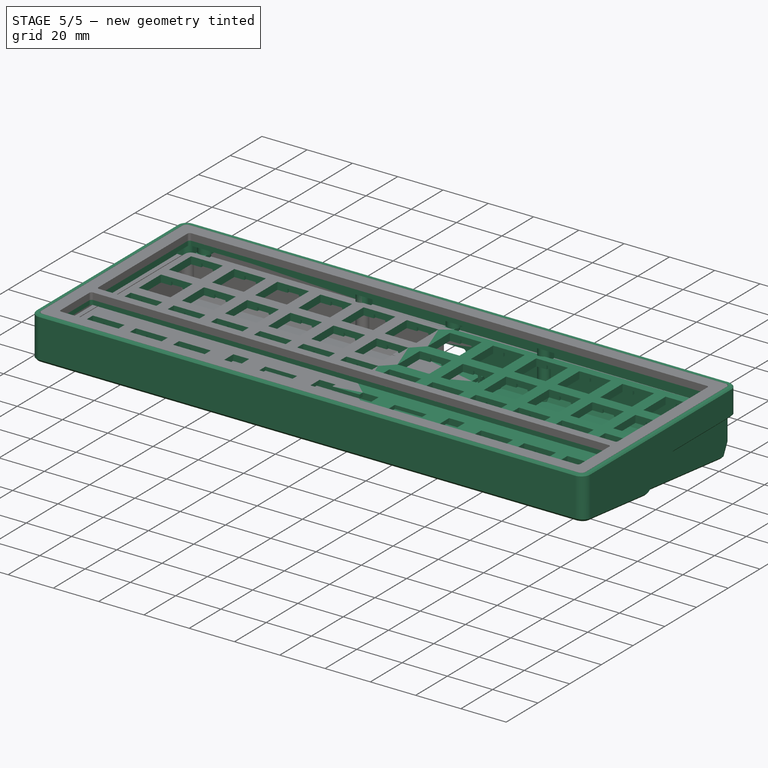
[diagram: stage 5 of 5 — iso view after this stage's code; geometry added in this stage tinted green]
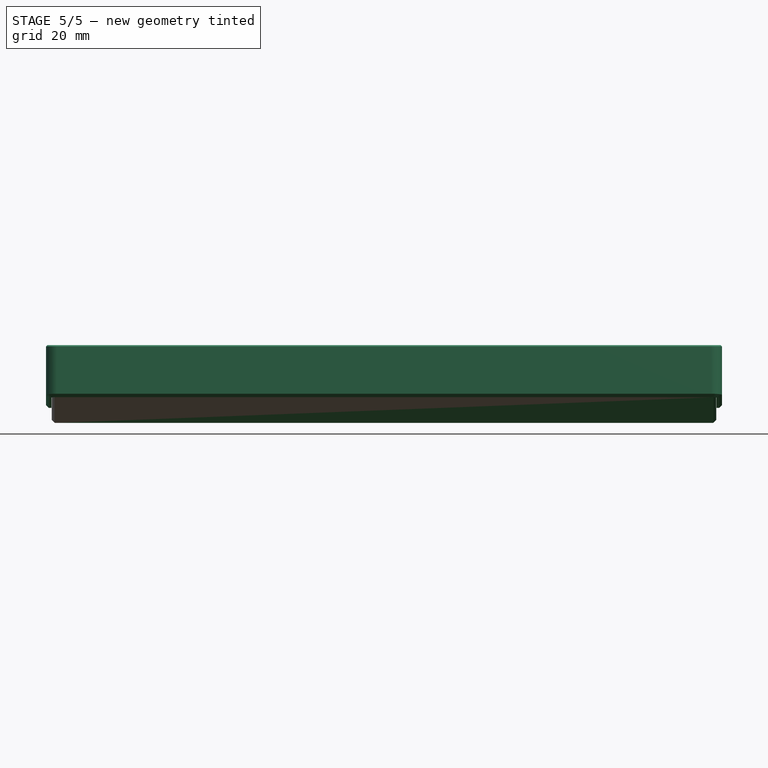
[diagram: stage 5 of 5 — front view after this stage's code; geometry added in this stage tinted green]
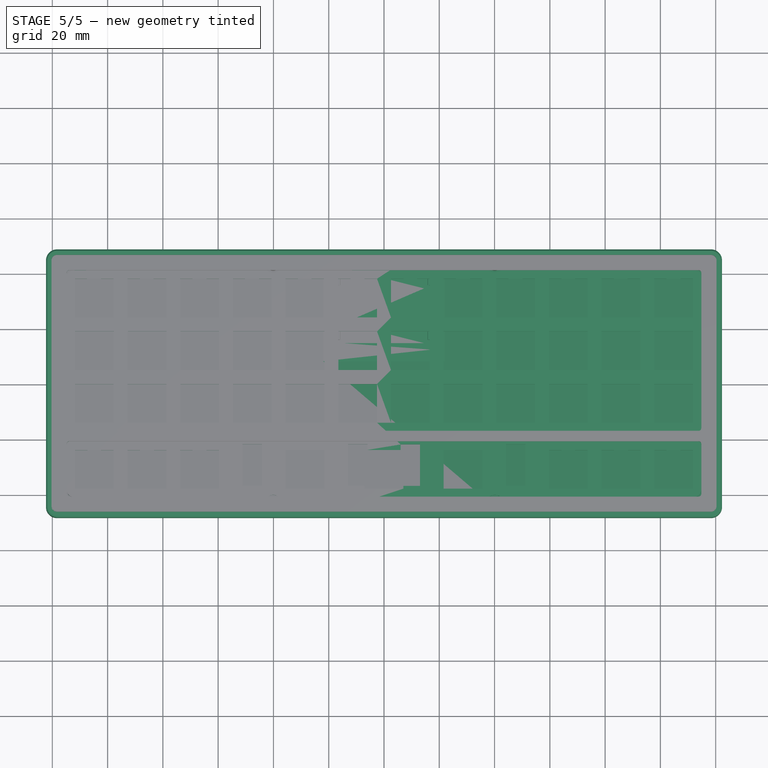
[diagram: stage 5 of 5 — top view after this stage's code; geometry added in this stage tinted green]
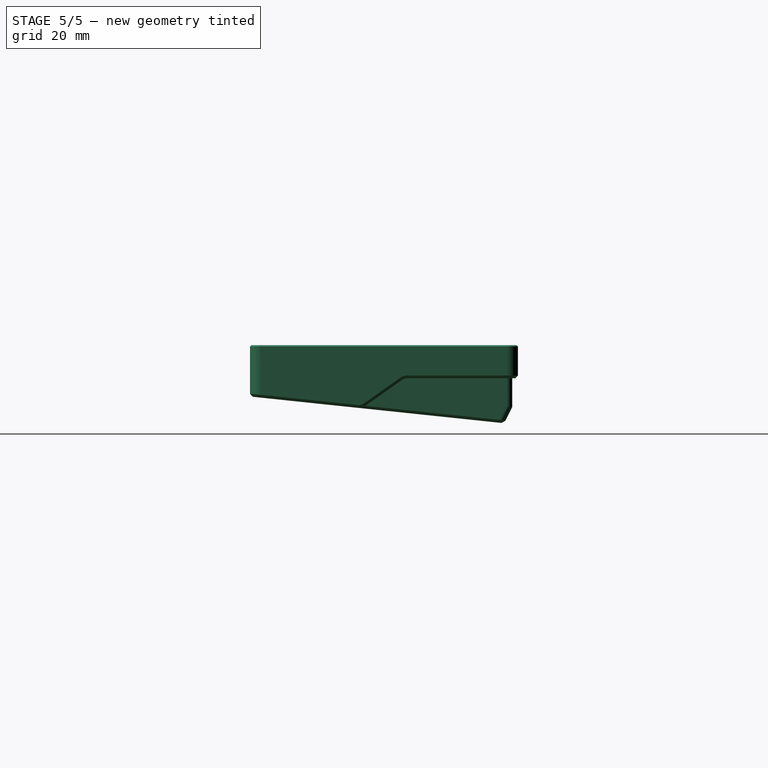
[diagram: stage 5 of 5 — right view after this stage's code; geometry added in this stage tinted green]
FEATURE [Sketcher::SketchObject] Sketch037
  FullyConstrained = true
  MapMode = 5
  Support = -> [XY_Plane209]
  expr: Constraints[160] = <<vals_Case>>.spacing
  expr: Constraints[161] = <<vals_Case>>.spacing
  expr: Constraints[162] = <<vals_Case>>.spacing
  expr: Constraints[163] = <<vals_Case>>.spacing
  expr: Constraints[164] = <<vals_Case>>.spacing
  expr: Constraints[165] = <<vals_Case>>.spacing
  expr: Constraints[166] = <<vals_Case>>.caseHeight / 2 - <<vals_Case>>.borderW - <<vals_Case>>.keysafety - 2.5
  expr: Constraints[168] = <<vals_Case>>.caseHandOffset / 2 + 0.5 * <<vals_Case>>.spacing
  expr: Constraints[216] = <<vals_Case>>.spacing
  sketch-geometry (73):
    g0: LineSegment StartX=-16.525 StartY=37.9813 StartZ=0 EndX=-2.525 EndY=37.9813 EndZ=0
    g1: LineSegment StartX=-2.525 StartY=37.9813 StartZ=0 EndX=-2.525 EndY=23.9813 EndZ=0
    g2: LineSegment StartX=-2.525 StartY=23.9813 StartZ=0 EndX=-16.525 EndY=23.9813 EndZ=0
    g3: LineSegment StartX=-16.525 StartY=23.9813 StartZ=0 EndX=-16.525 EndY=37.9813 EndZ=0
    g4: LineSegment StartX=-35.575 StartY=37.9813 StartZ=0 EndX=-21.575 EndY=37.9813 EndZ=0
    g5: LineSegment StartX=-21.575 StartY=37.9813 StartZ=0 EndX=-21.575 EndY=23.9813 EndZ=0
    g6: LineSegment StartX=-21.575 StartY=23.9813 StartZ=0 EndX=-35.575 EndY=23.9813 EndZ=0
    g7: LineSegment StartX=-35.575 StartY=23.9813 StartZ=0 EndX=-35.575 EndY=37.9813 EndZ=0
    g8: LineSegment StartX=-54.625 StartY=37.9813 StartZ=0 EndX=-40.625 EndY=37.9813 EndZ=0
    g9: LineSegment StartX=-40.625 StartY=37.9813 StartZ=0 EndX=-40.625 EndY=23.9813 EndZ=0
    g10: LineSegment StartX=-40.625 StartY=23.9813 StartZ=0 EndX=-54.625 EndY=23.9813 EndZ=0
    g11: LineSegment StartX=-54.625 StartY=23.9813 StartZ=0 EndX=-54.625 EndY=37.9813 EndZ=0
    g12: LineSegment StartX=-73.675 StartY=37.9813 StartZ=0 EndX=-59.675 EndY=37.9813 EndZ=0
    g13: LineSegment StartX=-59.675 StartY=37.9813 StartZ=0 EndX=-59.675 EndY=23.9813 EndZ=0
    g14: LineSegment StartX=-59.675 StartY=23.9813 StartZ=0 EndX=-73.675 EndY=23.9813 EndZ=0
    g15: LineSegment StartX=-73.675 StartY=23.9813 StartZ=0 EndX=-73.675 EndY=37.9813 EndZ=0
    g16: LineSegment StartX=-92.725 StartY=37.9813 StartZ=0 EndX=-78.725 EndY=37.9813 EndZ=0
    g17: LineSegment StartX=-78.725 StartY=37.9813 StartZ=0 EndX=-78.725 EndY=23.9813 EndZ=0
    g18: LineSegment StartX=-78.725 StartY=23.9813 StartZ=0 EndX=-92.725 EndY=23.9813 EndZ=0
    g19: LineSegment StartX=-92.725 StartY=23.9813 StartZ=0 EndX=-92.725 EndY=37.9813 EndZ=0
    g20: LineSegment StartX=-92.725 StartY=18.9313 StartZ=0 EndX=-78.725 EndY=18.9313 EndZ=0
    g21: LineSegment StartX=-78.725 StartY=18.9313 StartZ=0 EndX=-78.725 EndY=4.93125 EndZ=0
    g22: LineSegment StartX=-78.725 StartY=4.93125 StartZ=0 EndX=-92.725 EndY=4.93125 EndZ=0
    g23: LineSegment StartX=-92.725 StartY=4.93125 StartZ=0 EndX=-92.725 EndY=18.9313 EndZ=0
    g24: LineSegment StartX=-73.675 StartY=18.9313 StartZ=0 EndX=-59.675 EndY=18.9313 EndZ=0
    g25: LineSegment StartX=-59.675 StartY=18.9313 StartZ=0 EndX=-59.675 EndY=4.93125 EndZ=0
    g26: LineSegment StartX=-59.675 StartY=4.93125 StartZ=0 EndX=-73.675 EndY=4.93125 EndZ=0
    g27: LineSegment StartX=-73.675 StartY=4.93125 StartZ=0 EndX=-73.675 EndY=18.9313 EndZ=0
    g28: LineSegment StartX=-16.525 StartY=18.9313 StartZ=0 EndX=-2.525 EndY=18.9313 EndZ=0
    g29: LineSegment StartX=-2.525 StartY=18.9313 StartZ=0 EndX=-2.525 EndY=4.93125 EndZ=0
    g30: LineSegment StartX=-2.525 StartY=4.93125 StartZ=0 EndX=-16.525 EndY=4.93125 EndZ=0
    g31: LineSegment StartX=-16.525 StartY=4.93125 StartZ=0 EndX=-16.525 EndY=18.9313 EndZ=0
    g32: LineSegment StartX=-54.625 StartY=18.9313 StartZ=0 EndX=-40.625 EndY=18.9313 EndZ=0
    g33: LineSegment StartX=-40.625 StartY=18.9313 StartZ=0 EndX=-40.625 EndY=4.93125 EndZ=0
    g34: LineSegment StartX=-40.625 StartY=4.93125 StartZ=0 EndX=-54.625 EndY=4.93125 EndZ=0
    g35: LineSegment StartX=-54.625 StartY=4.93125 StartZ=0 EndX=-54.625 EndY=18.9313 EndZ=0
    g36: LineSegment StartX=-35.575 StartY=18.9313 StartZ=0 EndX=-21.575 EndY=18.9313 EndZ=0
    g37: LineSegment StartX=-21.575 StartY=18.9313 StartZ=0 EndX=-21.575 EndY=4.93125 EndZ=0
    g38: LineSegment StartX=-21.575 StartY=4.93125 StartZ=0 EndX=-35.575 EndY=4.93125 EndZ=0
    g39: LineSegment StartX=-35.575 StartY=4.93125 StartZ=0 EndX=-35.575 EndY=18.9313 EndZ=0
    g40: LineSegment StartX=-16.525 StartY=-0.11875 StartZ=0 EndX=-2.525 EndY=-0.11875 EndZ=0
    g41: LineSegment StartX=-2.525 StartY=-0.11875 StartZ=0 EndX=-2.525 EndY=-14.1187 EndZ=0
    g42: LineSegment StartX=-2.525 StartY=-14.1187 StartZ=0 EndX=-16.525 EndY=-14.1187 EndZ=0
    g43: LineSegment StartX=-16.525 StartY=-14.1187 StartZ=0 EndX=-16.525 EndY=-0.11875 EndZ=0
    g44: LineSegment StartX=-35.575 StartY=-0.11875 StartZ=0 EndX=-21.575 EndY=-0.11875 EndZ=0
    g45: LineSegment StartX=-21.575 StartY=-0.11875 StartZ=0 EndX=-21.575 EndY=-14.1187 EndZ=0
    g46: LineSegment StartX=-21.575 StartY=-14.1187 StartZ=0 EndX=-35.575 EndY=-14.1187 EndZ=0
    g47: LineSegment StartX=-35.575 StartY=-14.1187 StartZ=0 EndX=-35.575 EndY=-0.11875 EndZ=0
    g48: LineSegment StartX=-54.625 StartY=-0.11875 StartZ=0 EndX=-40.625 EndY=-0.11875 EndZ=0
    g49: LineSegment StartX=-40.625 StartY=-0.11875 StartZ=0 EndX=-40.625 EndY=-14.1187 EndZ=0
    g50: LineSegment StartX=-40.625 StartY=-14.1187 StartZ=0 EndX=-54.625 EndY=-14.1187 EndZ=0
    g51: LineSegment StartX=-54.625 StartY=-14.1187 StartZ=0 EndX=-54.625 EndY=-0.11875 EndZ=0
    g52: LineSegment StartX=-73.675 StartY=-0.11875 StartZ=0 EndX=-59.675 EndY=-0.11875 EndZ=0
    g53: LineSegment StartX=-59.675 StartY=-0.11875 StartZ=0 EndX=-59.675 EndY=-14.1187 EndZ=0
    g54: LineSegment StartX=-59.675 StartY=-14.1187 StartZ=0 EndX=-73.675 EndY=-14.1187 EndZ=0
    g55: LineSegment StartX=-73.675 StartY=-14.1187 StartZ=0 EndX=-73.675 EndY=-0.11875 EndZ=0
    g56: GeomPoint X=-9.525 Y=37.9813 Z=0
    g57: LineSegment StartX=-92.725 StartY=-0.11875 StartZ=0 EndX=-78.725 EndY=-0.11875 EndZ=0
    g58: LineSegment StartX=-78.725 StartY=-0.11875 StartZ=0 EndX=-78.725 EndY=-14.1187 EndZ=0
    g59: LineSegment StartX=-78.725 StartY=-14.1187 StartZ=0 EndX=-92.725 EndY=-14.1187 EndZ=0
    g60: LineSegment StartX=-92.725 StartY=-14.1187 StartZ=0 EndX=-92.725 EndY=-0.11875 EndZ=0
    g61: LineSegment StartX=-111.775 StartY=37.9813 StartZ=0 EndX=-97.775 EndY=37.9813 EndZ=0
    g62: LineSegment StartX=-97.775 StartY=37.9813 StartZ=0 EndX=-97.775 EndY=23.9812 EndZ=0
    g63: LineSegment StartX=-97.775 StartY=23.9812 StartZ=0 EndX=-111.775 EndY=23.9812 EndZ=0
    g64: LineSegment StartX=-111.775 StartY=23.9812 StartZ=0 EndX=-111.775 EndY=37.9813 EndZ=0
    g65: LineSegment StartX=-111.775 StartY=18.9313 StartZ=0 EndX=-97.775 EndY=18.9313 EndZ=0
    g66: LineSegment StartX=-97.775 StartY=18.9313 StartZ=0 EndX=-97.775 EndY=4.93125 EndZ=0
    g67: LineSegment StartX=-97.775 StartY=4.93125 StartZ=0 EndX=-111.775 EndY=4.93125 EndZ=0
    g68: LineSegment StartX=-111.775 StartY=4.93125 StartZ=0 EndX=-111.775 EndY=18.9313 EndZ=0
    g69: LineSegment StartX=-111.775 StartY=-0.11875 StartZ=0 EndX=-97.775 EndY=-0.11875 EndZ=0
    g70: LineSegment StartX=-97.775 StartY=-0.11875 StartZ=0 EndX=-97.775 EndY=-14.1188 EndZ=0
    g71: LineSegment StartX=-97.775 StartY=-14.1188 StartZ=0 EndX=-111.775 EndY=-14.1188 EndZ=0
    g72: LineSegment StartX=-111.775 StartY=-14.1188 StartZ=0 EndX=-111.775 EndY=-0.11875 EndZ=0
  constraints (217):
    c: Coincident(g0,g1)
    c: Coincident(g1,g2)
    c: Coincident(g2,g3)
    c: Coincident(g3,g0)
    c: Horizontal(g0)
    c: Horizontal(g2)
    c: Vertical(g1)
    c: Vertical(g3)
    c: Coincident(g4,g5)
    c: Coincident(g5,g6)
    c: Coincident(g6,g7)
    c: Coincident(g7,g4)
    c: Horizontal(g4)
    c: Horizontal(g6)
    c: Vertical(g5)
    c: Vertical(g7)
    c: Coincident(g8,g9)
    c: Coincident(g9,g10)
    c: Coincident(g10,g11)
    c: Coincident(g11,g8)
    c: Horizontal(g8)
    c: Horizontal(g10)
    c: Vertical(g9)
    c: Vertical(g11)
    c: Coincident(g12,g13)
    c: Coincident(g13,g14)
    c: Coincident(g14,g15)
    c: Coincident(g15,g12)
    c: Horizontal(g12)
    c: Horizontal(g14)
    c: Vertical(g13)
    c: Vertical(g15)
    c: Coincident(g16,g17)
    c: Coincident(g17,g18)
    c: Coincident(g18,g19)
    c: Coincident(g19,g16)
    c: Horizontal(g16)
    c: Horizontal(g18)
    c: Vertical(g17)
    c: Vertical(g19)
    c: Coincident(g20,g21)
    c: Coincident(g21,g22)
    c: Coincident(g22,g23)
    c: Coincident(g23,g20)
    c: Horizontal(g20)
    c: Horizontal(g22)
    c: Vertical(g21)
    c: Vertical(g23)
    c: Coincident(g24,g25)
    c: Coincident(g25,g26)
    c: Coincident(g26,g27)
    c: Coincident(g27,g24)
    c: Horizontal(g24)
    c: Horizontal(g26)
    c: Vertical(g25)
    c: Vertical(g27)
    c: Coincident(g28,g29)
    c: Coincident(g29,g30)
    c: Coincident(g30,g31)
    c: Coincident(g31,g28)
    c: Horizontal(g28)
    c: Horizontal(g30)
    c: Vertical(g29)
    c: Vertical(g31)
    c: Coincident(g32,g33)
    c: Coincident(g33,g34)
    c: Coincident(g34,g35)
    c: Coincident(g35,g32)
    c: Horizontal(g32)
    c: Horizontal(g34)
    c: Vertical(g33)
    c: Vertical(g35)
    c: Coincident(g36,g37)
    c: Coincident(g37,g38)
    c: Coincident(g38,g39)
    c: Coincident(g39,g36)
    c: Horizontal(g36)
    c: Horizontal(g38)
    c: Vertical(g37)
    c: Vertical(g39)
    c: Coincident(g40,g41)
    c: Coincident(g41,g42)
    c: Coincident(g42,g43)
    c: Coincident(g43,g40)
    c: Horizontal(g40)
    c: Horizontal(g42)
    c: Vertical(g41)
    c: Vertical(g43)
    c: Coincident(g44,g45)
    c: Coincident(g45,g46)
    c: Coincident(g46,g47)
    c: Coincident(g47,g44)
    c: Horizontal(g44)
    c: Horizontal(g46)
    c: Vertical(g45)
    c: Vertical(g47)
    c: Coincident(g48,g49)
    c: Coincident(g49,g50)
    c: Coincident(g50,g51)
    c: Coincident(g51,g48)
    c: Horizontal(g48)
    c: Horizontal(g50)
    c: Vertical(g49)
    c: Vertical(g51)
    c: Coincident(g52,g53)
    c: Coincident(g53,g54)
    c: Coincident(g54,g55)
    c: Coincident(g55,g52)
    c: Horizontal(g52)
    c: Horizontal(g54)
    c: Vertical(g53)
    c: Vertical(g55)
    c: Equal(g20,g23)
    c: Equal(g23,g19)
    c: Equal(g19,g16)
    c: Equal(g16,g15)
    c: Equal(g15,g12)
    c: Equal(g12,g11)
    c: Equal(g11,g8)
    c: Equal(g8,g7)
    c: Equal(g7,g4)
    c: Equal(g4,g3)
    c: Equal(g3,g0)
    c: Equal(g0,g39)
    c: Equal(g39,g36)
    c: Equal(g36,g35)
    c: Equal(g35,g32)
    c: Equal(g32,g31)
    c: Equal(g31,g28)
    c: Equal(g28,g27)
    c: Equal(g27,g24)
    c: Equal(g24,g55)
    c: Equal(g55,g52)
    c: Equal(g52,g51)
    c: Equal(g51,g48)
    c: Equal(g48,g47)
    c: Equal(g47,g44)
    c: Equal(g44,g43)
    c: Equal(g43,g40)
    c: DistanceX(g0,g0) = 14
    c: Horizontal(g16,g12)
    c: Horizontal(g12,g8)
    c: Horizontal(g8,g4)
    c: Horizontal(g4,g0)
    c: Horizontal(g28,g36)
    c: Horizontal(g36,g32)
    c: Horizontal(g32,g24)
    c: Horizontal(g24,g20)
    c: Horizontal(g52,g48)
    c: Horizontal(g48,g44)
    c: Horizontal(g44,g40)
    c: Vertical(g52,g24)
    c: Vertical(g24,g12)
    c: Vertical(g20,g16)
    c: Vertical(g48,g32)
    c: Vertical(g32,g8)
    c: Vertical(g4,g36)
    c: Vertical(g36,g44)
    c: Vertical(g0,g28)
    c: Vertical(g28,g40)
    c: DistanceY(g20,g16) = 19.05
    c: DistanceX(g16,g12) = 19.05
    c: DistanceX(g12,g8) = 19.05
    c: DistanceX(g8,g4) = 19.05
    c: DistanceX(g4,g0) = 19.05
    c: DistanceY(g54,g21) = 19.05
    c: DistanceY(g-1,g0) = 37.9813
    c: Symmetric(g0,g0,g56)
    c: DistanceX(g56,g-1) = 9.525
    c: Coincident(g57,g58)
    c: Coincident(g58,g59)
    c: Coincident(g59,g60)
    c: Coincident(g60,g57)
    c: Horizontal(g57)
    c: Horizontal(g59)
    c: Vertical(g58)
    c: Vertical(g60)
    c: Horizontal(g57,g52)
    c: Vertical(g57,g21)
    c: Equal(g57,g60)
    c: Equal(g60,g22)
    c: Coincident(g61,g62)
    c: Coincident(g62,g63)
    c: Coincident(g63,g64)
    c: Coincident(g64,g61)
    c: Horizontal(g61)
    c: Horizontal(g63)
    c: Vertical(g62)
    c: Vertical(g64)
    c: Coincident(g65,g66)
    c: Coincident(g66,g67)
    c: Coincident(g67,g68)
    c: Coincident(g68,g65)
    c: Horizontal(g65)
    c: Horizontal(g67)
    c: Vertical(g66)
    c: Vertical(g68)
    c: Coincident(g69,g70)
    c: Coincident(g70,g71)
    c: Coincident(g71,g72)
    c: Coincident(g72,g69)
    c: Horizontal(g69)
    c: Horizontal(g71)
    c: Vertical(g70)
    c: Vertical(g72)
    c: Equal(g65,g69)
    c: Equal(g69,g57)
    c: Equal(g57,g61)
    c: Equal(g61,g68)
    c: Equal(g68,g64)
    c: Equal(g64,g72)
    c: Vertical(g61,g65)
    c: Vertical(g65,g69)
    c: Horizontal(g61,g16)
    c: Horizontal(g65,g20)
    c: Horizontal(g69,g57)
    c: DistanceX(g61,g16) = 19.05
FEATURE [PartDesign::Pocket] Pocket022  label="alpha"
  BaseFeature = -> Pad015
  Direction = (0,0,-1)
  Length = 5
  Length2 = 5
  Profile = -> Sketch037
  ReferenceAxis = -> Sketch037 [N_Axis]
  Type = 0
FEATURE [Sketcher::SketchObject] Sketch038
  FullyConstrained = true
  MapMode = 5
  Support = -> [XY_Plane209]
  expr: Constraints[20] = <<vals_Case>>.spacing
  expr: Constraints[21] = <<vals_Case>>.caseWidth / 2 - <<vals_Case>>.borderW - <<vals_Case>>.keysafety - 2.5
  expr: Constraints[23] = <<vals_Case>>.caseHeight / 2 - <<vals_Case>>.borderW - <<vals_Case>>.keysafety - 2.5
  expr: Constraints[35] = <<vals_Case>>.spacing
  sketch-geometry (12):
    g0: LineSegment StartX=-111.8 StartY=-23.9813 StartZ=0 EndX=-97.8 EndY=-23.9813 EndZ=0
    g1: LineSegment StartX=-97.8 StartY=-23.9813 StartZ=0 EndX=-97.8 EndY=-37.9813 EndZ=0
    g2: LineSegment StartX=-97.8 StartY=-37.9813 StartZ=0 EndX=-111.8 EndY=-37.9813 EndZ=0
    g3: LineSegment StartX=-111.8 StartY=-37.9813 StartZ=0 EndX=-111.8 EndY=-23.9813 EndZ=0
    g4: LineSegment StartX=-92.75 StartY=-23.9813 StartZ=0 EndX=-78.75 EndY=-23.9813 EndZ=0
    g5: LineSegment StartX=-78.75 StartY=-23.9813 StartZ=0 EndX=-78.75 EndY=-37.9812 EndZ=0
    g6: LineSegment StartX=-78.75 StartY=-37.9812 StartZ=0 EndX=-92.75 EndY=-37.9812 EndZ=0
    g7: LineSegment StartX=-92.75 StartY=-37.9812 StartZ=0 EndX=-92.75 EndY=-23.9813 EndZ=0
    g8: LineSegment StartX=-73.7 StartY=-23.9813 StartZ=0 EndX=-59.7 EndY=-23.9813 EndZ=0
    g9: LineSegment StartX=-59.7 StartY=-23.9813 StartZ=0 EndX=-59.7 EndY=-37.9813 EndZ=0
    g10: LineSegment StartX=-59.7 StartY=-37.9813 StartZ=0 EndX=-73.7 EndY=-37.9813 EndZ=0
    g11: LineSegment StartX=-73.7 StartY=-37.9813 StartZ=0 EndX=-73.7 EndY=-23.9813 EndZ=0
  constraints (36):
    c: Coincident(g0,g1)
    c: Coincident(g1,g2)
    c: Coincident(g2,g3)
    c: Coincident(g3,g0)
    c: Horizontal(g0)
    c: Horizontal(g2)
    c: Vertical(g1)
    c: Vertical(g3)
    c: Coincident(g4,g5)
    c: Coincident(g5,g6)
    c: Coincident(g6,g7)
    c: Coincident(g7,g4)
    c: Horizontal(g4)
    c: Horizontal(g6)
    c: Vertical(g5)
    c: Vertical(g7)
    c: Equal(g3,g0)
    c: Equal(g0,g7)
    c: Equal(g7,g4)
    c: Horizontal(g0,g4)
    c: DistanceX(g2,g6) = 19.05
    c: DistanceX(g2,g-1) = 111.8
    c: DistanceX(g0,g0) = 14
    c: DistanceY(g2,g-1) = 37.9813
    c: Coincident(g8,g9)
    c: Coincident(g9,g10)
    c: Coincident(g10,g11)
    c: Coincident(g11,g8)
    c: Horizontal(g8)
    c: Horizontal(g10)
    c: Vertical(g9)
    c: Vertical(g11)
    c: Equal(g8,g11)
    c: Equal(g11,g5)
    c: Horizontal(g8,g4)
    c: DistanceX(g4,g8) = 19.05
FEATURE [PartDesign::Pocket] Pocket023  label="mods"
  BaseFeature = -> Pocket022
  Direction = (0,0,-1)
  Length = 5
  Length2 = 5
  Profile = -> Sketch038
  ReferenceAxis = -> Sketch038 [N_Axis]
  Type = 0
FEATURE [Sketcher::SketchObject] Sketch039
  FullyConstrained = true
  MapMode = 5
  Support = -> [XY_Plane209]
  expr: Constraints[10] = <<vals_Case>>.caseHeight / 2 - <<vals_Case>>.borderH - <<vals_Case>>.keysafety - 2.5
  expr: Constraints[45] = 1.5 * <<vals_Case>>.spacing
  sketch-geometry (16):
    g0: LineSegment StartX=-35.575 StartY=-23.9813 StartZ=0 EndX=-21.575 EndY=-23.9813 EndZ=0
    g1: LineSegment StartX=-21.575 StartY=-23.9813 StartZ=0 EndX=-21.575 EndY=-37.9813 EndZ=0
    g2: LineSegment StartX=-21.575 StartY=-37.9813 StartZ=0 EndX=-35.575 EndY=-37.9813 EndZ=0
    g3: LineSegment StartX=-35.575 StartY=-37.9813 StartZ=0 EndX=-35.575 EndY=-23.9813 EndZ=0
    g4: LineSegment StartX=-51.125 StartY=-21.9813 StartZ=0 EndX=-44.125 EndY=-21.9813 EndZ=0
    g5: LineSegment StartX=-44.125 StartY=-21.9813 StartZ=0 EndX=-44.125 EndY=-36.9813 EndZ=0
    g6: LineSegment StartX=-44.125 StartY=-36.9813 StartZ=0 EndX=-51.125 EndY=-36.9813 EndZ=0
    g7: LineSegment StartX=-51.125 StartY=-36.9813 StartZ=0 EndX=-51.125 EndY=-21.9813 EndZ=0
    g8: LineSegment StartX=0 StartY=-23.9813 StartZ=0 EndX=-6.025 EndY=-23.9813 EndZ=0
    g9: LineSegment StartX=-6.025 StartY=-23.9813 StartZ=0 EndX=-6.025 EndY=-21.9813 EndZ=0
    g10: LineSegment StartX=-6.025 StartY=-21.9813 StartZ=0 EndX=-13.025 EndY=-21.9813 EndZ=0
    g11: LineSegment StartX=-13.025 StartY=-21.9813 StartZ=0 EndX=-13.025 EndY=-36.9813 EndZ=0
    g12: LineSegment StartX=-13.025 StartY=-36.9813 StartZ=0 EndX=-7 EndY=-36.9813 EndZ=0
    g13: LineSegment StartX=-7 StartY=-36.9813 StartZ=0 EndX=-7 EndY=-37.9813 EndZ=0
    g14: LineSegment StartX=-7 StartY=-37.9813 StartZ=0 EndX=0 EndY=-37.9813 EndZ=0
    g15: LineSegment StartX=0 StartY=-37.9813 StartZ=0 EndX=0 EndY=-23.9813 EndZ=0
  constraints (48):
    c: Coincident(g0,g1)
    c: Coincident(g1,g2)
    c: Coincident(g2,g3)
    c: Coincident(g3,g0)
    c: Horizontal(g0)
    c: Horizontal(g2)
    c: Vertical(g1)
    c: Vertical(g3)
    c: Equal(g0,g3)
    c: DistanceX(g0,g0) = 14
    c: DistanceY(g2,g-1) = 37.9813
    c: Coincident(g4,g5)
    c: Coincident(g5,g6)
    c: Coincident(g6,g7)
    c: Coincident(g7,g4)
    c: Horizontal(g4)
    c: Horizontal(g6)
    c: Vertical(g5)
    c: Vertical(g7)
    c: DistanceX(g6,g6) = 7
    c: DistanceY(g7,g7) = 15
    c: DistanceY(g2,g5) = 1
    c: DistanceX(g5,g2) = 8.55
    c: PointOnObject(g8,g-2)
    c: Horizontal(g8)
    c: Coincident(g8,g9)
    c: Vertical(g9)
    c: Coincident(g9,g10)
    c: Horizontal(g10)
    c: Coincident(g10,g11)
    c: Vertical(g11)
    c: Coincident(g11,g12)
    c: Horizontal(g12)
    c: Coincident(g12,g13)
    c: Vertical(g13)
    c: Coincident(g13,g14)
    c: PointOnObject(g14,g-2)
    c: Horizontal(g14)
    c: Coincident(g14,g15)
    c: Coincident(g15,g8)
    c: Horizontal(g10,g4)
    c: Equal(g4,g10)
    c: DistanceX(g1,g11) = 8.55
    c: DistanceX(g14,g14) = 7
    c: Horizontal(g8,g0)
    c: DistanceX(g2,g13) = 28.575
    c: Equal(g11,g5)
    c: Horizontal(g13,g1)
FEATURE [PartDesign::Pocket] Pocket024
  BaseFeature = -> Pocket023
  Direction = (0,0,-1)
  Length = 5
  Length2 = 5
  Profile = -> Sketch039
  ReferenceAxis = -> Sketch039 [N_Axis]
  Type = 0
FEATURE [Sketcher::SketchObject] Sketch052
  FullyConstrained = true
  MapMode = 5
  Support = -> [XY_Plane209]
  expr: Constraints[13] = <<vals_Case>>.caseWidth / 2 - <<vals_Case>>.borderW - 5
  expr: Constraints[64] = <<vals_Case>>.caseHeight / 2 - <<vals_Case>>.borderH
  expr: Constraints[9] = <<vals_Case>>.caseHeight / 2 - <<vals_Case>>.borderH + 3.1
  sketch-geometry (22):
    g0: Circle CenterX=-109.8 CenterY=44.0813 CenterZ=0 NormalX=0 NormalY=0 NormalZ=1 AngleXU=0 Radius=1.1
    g1: Circle CenterX=-109.8 CenterY=-44.0813 CenterZ=0 NormalX=0 NormalY=0 NormalZ=1 AngleXU=0 Radius=1.1
    g2: ArcOfCircle CenterX=0 CenterY=-44.0813 CenterZ=0 NormalX=0 NormalY=0 NormalZ=1 AngleXU=0 Radius=1.1 StartAngle=1.5708 EndAngle=4.71239
    g3: ArcOfCircle CenterX=0 CenterY=44.0813 CenterZ=0 NormalX=0 NormalY=0 NormalZ=1 AngleXU=0 Radius=1.1 StartAngle=1.5708 EndAngle=4.71239
    g4: ArcOfCircle CenterX=-109.8 CenterY=44.0813 CenterZ=0 NormalX=0 NormalY=0 NormalZ=1 AngleXU=0 Radius=2.1 StartAngle=1.7e-15 EndAngle=3.14159
    g5: ArcOfCircle CenterX=-109.8 CenterY=-44.0813 CenterZ=0 NormalX=0 NormalY=0 NormalZ=1 AngleXU=0 Radius=2.1 StartAngle=3.14159 EndAngle=6.28319
    g6: ArcOfCircle CenterX=0 CenterY=-44.0813 CenterZ=0 NormalX=0 NormalY=0 NormalZ=1 AngleXU=0 Radius=2.1 StartAngle=3.14159 EndAngle=4.71239
    g7: ArcOfCircle CenterX=0 CenterY=44.0813 CenterZ=0 NormalX=0 NormalY=0 NormalZ=1 AngleXU=0 Radius=2.1 StartAngle=1.5708 EndAngle=3.14159
    g8: LineSegment StartX=-111.9 StartY=-44.0813 StartZ=0 EndX=-111.9 EndY=-40.9813 EndZ=0
    g9: LineSegment StartX=-111.9 StartY=-40.9813 StartZ=0 EndX=-107.7 EndY=-40.9813 EndZ=0
    g10: LineSegment StartX=-107.7 StartY=-40.9813 StartZ=0 EndX=-107.7 EndY=-44.0813 EndZ=0
    g11: LineSegment StartX=-111.9 StartY=44.0812 StartZ=0 EndX=-111.9 EndY=40.9813 EndZ=0
    g12: LineSegment StartX=-107.7 StartY=40.9813 StartZ=0 EndX=-111.9 EndY=40.9813 EndZ=0
    g13: LineSegment StartX=-107.7 StartY=44.0813 StartZ=0 EndX=-107.7 EndY=40.9813 EndZ=0
    g14: LineSegment StartX=-2.1 StartY=44.0813 StartZ=0 EndX=-2.1 EndY=40.9813 EndZ=0
    g15: LineSegment StartX=-2.1 StartY=40.9813 StartZ=0 EndX=0 EndY=40.9813 EndZ=0
    g16: LineSegment StartX=0 StartY=40.9813 StartZ=0 EndX=-2e-16 EndY=42.9813 EndZ=0
    g17: LineSegment StartX=1e-16 StartY=46.1813 StartZ=0 EndX=1e-16 EndY=45.1813 EndZ=0
    g18: LineSegment StartX=0 StartY=-40.9813 StartZ=0 EndX=1e-16 EndY=-42.9813 EndZ=0
    g19: LineSegment StartX=0 StartY=-40.9813 StartZ=0 EndX=-2.1 EndY=-40.9813 EndZ=0
    g20: LineSegment StartX=-2.1 StartY=-40.9813 StartZ=0 EndX=-2.1 EndY=-44.0813 EndZ=0
    g21: LineSegment StartX=-4e-16 StartY=-46.1813 StartZ=0 EndX=-2e-16 EndY=-45.1813 EndZ=0
  constraints (66):
    c: PointOnObject(g2,g-2)
    c: PointOnObject(g2,g-2)
    c: PointOnObject(g2,g-2)
    c: PointOnObject(g3,g-2)
    c: PointOnObject(g3,g-2)
    c: PointOnObject(g3,g-2)
    c: Horizontal(g3,g0)
    c: Horizontal(g2,g1)
    c: Symmetric(g1,g0,g-1)
    c: DistanceY(g-1,g0) = 44.0813
    c: Equal(g0,g1)
    c: Equal(g1,g2)
    c: Radius(g3) = 1.1
    c: DistanceX(g0,g-1) = 109.8
    c: Coincident(g4,g0)
    c: Coincident(g5,g1)
    c: Horizontal(g5,g5)
    c: Horizontal(g5,g1)
    c: Coincident(g6,g2)
    c: PointOnObject(g6,g-2)
    c: Coincident(g7,g3)
    c: PointOnObject(g7,g-2)
    c: Horizontal(g7,g3)
    c: Horizontal(g6,g2)
    c: Equal(g6,g7)
    c: Equal(g7,g4)
    c: Equal(g4,g5)
    c: Radius(g1) = 1.1
    c: Radius(g5) = 2.1
    c: Coincident(g8,g5)
    c: Vertical(g8)
    c: Coincident(g9,g8)
    c: Horizontal(g9)
    c: Coincident(g10,g9)
    c: Coincident(g10,g5)
    c: Vertical(g10)
    c: Coincident(g11,g4)
    c: Vertical(g11)
    c: Coincident(g12,g11)
    c: Horizontal(g12)
    c: Coincident(g13,g4)
    c: Coincident(g13,g12)
    c: Vertical(g13)
    c: Coincident(g14,g7)
    c: Vertical(g14)
    c: Coincident(g15,g14)
    c: PointOnObject(g15,g-2)
    c: Horizontal(g15)
    c: Coincident(g16,g15)
    c: Coincident(g16,g3)
    c: Coincident(g17,g7)
    c: Coincident(g17,g3)
    c: PointOnObject(g18,g-2)
    c: Coincident(g18,g2)
    c: Coincident(g19,g18)
    c: Horizontal(g19)
    c: Coincident(g20,g19)
    c: Coincident(g20,g6)
    c: Vertical(g20)
    c: Coincident(g21,g6)
    c: Coincident(g21,g2)
    c: Horizontal(g12,g14)
    c: Horizontal(g9,g19)
    c: Symmetric(g8,g11,g-1)
    c: DistanceY(g-1,g12) = 40.9813
    c: Horizontal(g4,g0)
FEATURE [PartDesign::Pad] Pad019
  BaseFeature = -> Pocket024
  Direction = (0,0,1)
  Length = 1.6
  Length2 = 10
  Profile = -> Sketch052
  ReferenceAxis = -> Sketch052 [N_Axis]
  Refine = true
  Reversed = true
  Type = 0
  expr: Length = <<vals_Case>>.plateThickness
FEATURE [Sketcher::SketchObject] Sketch055
  FullyConstrained = true
  MapMode = 5
  Support = -> [XY_Plane209]
  expr: Constraints[1] = <<vals_Case>>.caseHeight / 2 - <<vals_Case>>.wallThickness - (<<vals_Case>>.borderH - <<vals_Case>>.wallThickness) / 2
  expr: Constraints[3] = (<<vals_Case>>.caseWidth - <<vals_Case>>.wallThickness * 2) / 6
  sketch-geometry (2):
    g0: Circle CenterX=-40.1 CenterY=-43.7313 CenterZ=0 NormalX=0 NormalY=0 NormalZ=1 AngleXU=0 Radius=3.5
    g1: Circle CenterX=-40.1 CenterY=43.7313 CenterZ=0 NormalX=0 NormalY=0 NormalZ=1 AngleXU=0 Radius=3.5
  constraints (5):
    c: Symmetric(g0,g1,g-1)
    c: DistanceY(g-1,g1) = 43.7313
    c: Radius(g1) = 3.5
    c: DistanceX(g0,g-1) = 40.1
    c: Equal(g0,g1)
FEATURE [PartDesign::Pocket] Pocket030
  BaseFeature = -> Pad019
  Direction = (0,0,-1)
  Length = 5
  Length2 = 5
  Profile = -> Sketch055
  ReferenceAxis = -> Sketch055 [N_Axis]
  Type = 0
FEATURE [PartDesign::Fillet] Fillet008
  Base = -> Pocket030 [Edge247,Edge8]
  BaseFeature = -> Pocket030
  Radius = 2.5
  SupportTransform = false
  UseAllEdges = false
FEATURE [PartDesign::Body] Body005  label="top"
  Group = -> [Sketch010,Pad005,Sketch011,Pad006,DatumPlane001,Sketch012,Pocket005,DatumPlane002,Sketch013,Pad007,DatumPlane003,Sketch014,Pocket006,Sketch015,Pocket007,Sketch022,Pocket011,DatumPlane007,Sketch023,Pocket012,DatumPlane,Sketch,Pad016,Sketch044,Pocket026,Pocket027,Sketch046,Pad018,Sketch047,Pocket028,Sketch051,Pocket029,Fillet,Fillet005,Fillet006,Chamfer004,Chamfer005,Fillet009]
  Origin = -> Origin174
  Tip = -> Fillet009
FEATURE [Part::Mirroring] Part__Mirroring  label="top (Mirror #1)"
  Base = (0,0,0)
  Normal = (1,0,0)
  Source = -> Body005
FEATURE [Part::MultiFuse] Fusion  label="case_top"
  Refine = true
  Shapes = -> [Part__Mirroring,Body005]
FEATURE [Sketcher::SketchObject] Sketch056
  ExternalGeometry = -> [Fillet008]
  FullyConstrained = false
  MapMode = 5
  Placement = pos=(0,0,-3.2) rot=(1,0,0;3.14159rad)
  Support = -> [Fillet008]
  expr: Constraints[252] = 1.25 * <<vals_Case>>.spacing
  expr: Constraints[253] = <<vals_Case>>.spacing
  expr: Constraints[254] = <<vals_Case>>.spacing
  expr: Constraints[255] = <<vals_Case>>.spacing
  expr: Constraints[256] = <<vals_Case>>.spacing
  expr: Constraints[257] = <<vals_Case>>.spacing
  expr: Constraints[258] = <<vals_Case>>.spacing
  expr: Constraints[259] = <<vals_Case>>.spacing
  sketch-geometry (88):
    g0: LineSegment StartX=-107.3 StartY=38.9813 StartZ=0 EndX=-102.3 EndY=38.9813 EndZ=0
    g1: LineSegment StartX=-102.3 StartY=38.9813 StartZ=0 EndX=-102.3 EndY=22.9813 EndZ=0
    g2: LineSegment StartX=-102.3 StartY=22.9813 StartZ=0 EndX=-107.3 EndY=22.9813 EndZ=0
    g3: LineSegment StartX=-107.3 StartY=22.9813 StartZ=0 EndX=-107.3 EndY=38.9813 EndZ=0
    g4: LineSegment StartX=-88.25 StartY=38.9813 StartZ=0 EndX=-83.25 EndY=38.9813 EndZ=0
    g5: LineSegment StartX=-83.25 StartY=38.9813 StartZ=0 EndX=-83.25 EndY=22.9813 EndZ=0
    g6: LineSegment StartX=-83.25 StartY=22.9813 StartZ=0 EndX=-88.25 EndY=22.9813 EndZ=0
    g7: LineSegment StartX=-88.25 StartY=22.9813 StartZ=0 EndX=-88.25 EndY=38.9813 EndZ=0
    g8: LineSegment StartX=-69.2 StartY=38.9813 StartZ=0 EndX=-64.2 EndY=38.9813 EndZ=0
    g9: LineSegment StartX=-64.2 StartY=38.9813 StartZ=0 EndX=-64.2 EndY=22.9812 EndZ=0
    g10: LineSegment StartX=-64.2 StartY=22.9812 StartZ=0 EndX=-69.2 EndY=22.9812 EndZ=0
    g11: LineSegment StartX=-69.2 StartY=22.9812 StartZ=0 EndX=-69.2 EndY=38.9813 EndZ=0
    g12: LineSegment StartX=-51.9155 StartY=41.3285 StartZ=0 EndX=3.12474 EndY=41.3285 EndZ=0
    g13: LineSegment StartX=3.12474 StartY=41.3285 StartZ=0 EndX=3.12474 EndY=21.0875 EndZ=0
    g14: LineSegment StartX=3.12474 StartY=21.0875 StartZ=0 EndX=-51.9155 EndY=21.0875 EndZ=0
    g15: LineSegment StartX=-51.9155 StartY=21.0875 StartZ=0 EndX=-51.9155 EndY=41.3285 EndZ=0
    g16: LineSegment StartX=-107.3 StartY=15.1688 StartZ=0 EndX=-102.3 EndY=15.1688 EndZ=0
    g17: LineSegment StartX=-102.3 StartY=15.1688 StartZ=0 EndX=-102.3 EndY=-0.83125 EndZ=0
    g18: LineSegment StartX=-102.3 StartY=-0.83125 StartZ=0 EndX=-107.3 EndY=-0.83125 EndZ=0
    g19: LineSegment StartX=-107.3 StartY=-0.83125 StartZ=0 EndX=-107.3 EndY=15.1688 EndZ=0
    g20: LineSegment StartX=-107.3 StartY=-3.88125 StartZ=0 EndX=-102.3 EndY=-3.88125 EndZ=0
    g21: LineSegment StartX=-102.3 StartY=-3.88125 StartZ=0 EndX=-102.3 EndY=-19.8812 EndZ=0
    g22: LineSegment StartX=-102.3 StartY=-19.8812 StartZ=0 EndX=-107.3 EndY=-19.8812 EndZ=0
    g23: LineSegment StartX=-107.3 StartY=-19.8812 StartZ=0 EndX=-107.3 EndY=-3.88125 EndZ=0
    g24: LineSegment StartX=-107.3 StartY=-22.9312 StartZ=0 EndX=-102.3 EndY=-22.9312 EndZ=0
    g25: LineSegment StartX=-102.3 StartY=-22.9312 StartZ=0 EndX=-102.3 EndY=-38.9312 EndZ=0
    g26: LineSegment StartX=-102.3 StartY=-38.9312 StartZ=0 EndX=-107.3 EndY=-38.9312 EndZ=0
    g27: LineSegment StartX=-107.3 StartY=-38.9312 StartZ=0 EndX=-107.3 EndY=-22.9312 EndZ=0
    g28: LineSegment StartX=-88.25 StartY=-38.9312 StartZ=0 EndX=-83.25 EndY=-38.9312 EndZ=0
    g29: LineSegment StartX=-83.25 StartY=-38.9312 StartZ=0 EndX=-83.25 EndY=-22.9312 EndZ=0
    g30: LineSegment StartX=-83.25 StartY=-22.9312 StartZ=0 EndX=-88.25 EndY=-22.9312 EndZ=0
    g31: LineSegment StartX=-88.25 StartY=-22.9312 StartZ=0 EndX=-88.25 EndY=-38.9312 EndZ=0
    g32: LineSegment StartX=-88.25 StartY=-3.88125 StartZ=0 EndX=-83.25 EndY=-3.88125 EndZ=0
    g33: LineSegment StartX=-83.25 StartY=-3.88125 StartZ=0 EndX=-83.25 EndY=-19.8812 EndZ=0
    g34: LineSegment StartX=-83.25 StartY=-19.8812 StartZ=0 EndX=-88.25 EndY=-19.8812 EndZ=0
    g35: LineSegment StartX=-88.25 StartY=-19.8812 StartZ=0 EndX=-88.25 EndY=-3.88125 EndZ=0
    g36: LineSegment StartX=-88.25 StartY=15.1688 StartZ=0 EndX=-83.25 EndY=15.1688 EndZ=0
    g37: LineSegment StartX=-83.25 StartY=15.1688 StartZ=0 EndX=-83.25 EndY=-0.83125 EndZ=0
    g38: LineSegment StartX=-83.25 StartY=-0.83125 StartZ=0 EndX=-88.25 EndY=-0.83125 EndZ=0
    g39: LineSegment StartX=-88.25 StartY=-0.83125 StartZ=0 EndX=-88.25 EndY=15.1688 EndZ=0
    g40: LineSegment StartX=-69.2 StartY=15.1688 StartZ=0 EndX=-64.2 EndY=15.1688 EndZ=0
    g41: LineSegment StartX=-64.2 StartY=15.1688 StartZ=0 EndX=-64.2 EndY=-0.83125 EndZ=0
    g42: LineSegment StartX=-64.2 StartY=-0.83125 StartZ=0 EndX=-69.2 EndY=-0.83125 EndZ=0
    g43: LineSegment StartX=-69.2 StartY=-0.83125 StartZ=0 EndX=-69.2 EndY=15.1688 EndZ=0
    g44: LineSegment StartX=-69.2 StartY=-3.88125 StartZ=0 EndX=-64.2 EndY=-3.88125 EndZ=0
    g45: LineSegment StartX=-64.2 StartY=-3.88125 StartZ=0 EndX=-64.2 EndY=-19.8813 EndZ=0
    g46: LineSegment StartX=-64.2 StartY=-19.8813 StartZ=0 EndX=-69.2 EndY=-19.8813 EndZ=0
    g47: LineSegment StartX=-69.2 StartY=-19.8813 StartZ=0 EndX=-69.2 EndY=-3.88125 EndZ=0
    g48: LineSegment StartX=-69.2 StartY=-22.9312 StartZ=0 EndX=-64.2 EndY=-22.9312 EndZ=0
    g49: LineSegment StartX=-64.2 StartY=-22.9312 StartZ=0 EndX=-64.2 EndY=-38.9313 EndZ=0
    g50: LineSegment StartX=-64.2 StartY=-38.9313 StartZ=0 EndX=-69.2 EndY=-38.9313 EndZ=0
    g51: LineSegment StartX=-69.2 StartY=-38.9313 StartZ=0 EndX=-69.2 EndY=-22.9312 EndZ=0
    g52: LineSegment StartX=-50.15 StartY=-38.9313 StartZ=0 EndX=-45.15 EndY=-38.9313 EndZ=0
    g53: LineSegment StartX=-45.15 StartY=-38.9313 StartZ=0 EndX=-45.15 EndY=-22.9312 EndZ=0
    g54: LineSegment StartX=-45.15 StartY=-22.9312 StartZ=0 EndX=-50.15 EndY=-22.9312 EndZ=0
    g55: LineSegment StartX=-50.15 StartY=-22.9312 StartZ=0 EndX=-50.15 EndY=-38.9313 EndZ=0
    g56: LineSegment StartX=-50.15 StartY=-3.88125 StartZ=0 EndX=-45.15 EndY=-3.88125 EndZ=0
    g57: LineSegment StartX=-45.15 StartY=-3.88125 StartZ=0 EndX=-45.15 EndY=-19.8813 EndZ=0
    g58: LineSegment StartX=-45.15 StartY=-19.8813 StartZ=0 EndX=-50.15 EndY=-19.8813 EndZ=0
    g59: LineSegment StartX=-50.15 StartY=-19.8813 StartZ=0 EndX=-50.15 EndY=-3.88125 EndZ=0
    g60: LineSegment StartX=-50.15 StartY=15.1688 StartZ=0 EndX=-45.15 EndY=15.1688 EndZ=0
    g61: LineSegment StartX=-45.15 StartY=15.1688 StartZ=0 EndX=-45.15 EndY=-0.83125 EndZ=0
    g62: LineSegment StartX=-45.15 StartY=-0.83125 StartZ=0 EndX=-50.15 EndY=-0.83125 EndZ=0
    g63: LineSegment StartX=-50.15 StartY=-0.83125 StartZ=0 EndX=-50.15 EndY=15.1688 EndZ=0
    g64: LineSegment StartX=-31.1 StartY=15.1688 StartZ=0 EndX=-26.1 EndY=15.1688 EndZ=0
    g65: LineSegment StartX=-26.1 StartY=15.1688 StartZ=0 EndX=-26.1 EndY=-0.83125 EndZ=0
    g66: LineSegment StartX=-26.1 StartY=-0.83125 StartZ=0 EndX=-31.1 EndY=-0.83125 EndZ=0
    g67: LineSegment StartX=-31.1 StartY=-0.83125 StartZ=0 EndX=-31.1 EndY=15.1688 EndZ=0
    g68: LineSegment StartX=-31.1 StartY=-3.88125 StartZ=0 EndX=-26.1 EndY=-3.88125 EndZ=0
    g69: LineSegment StartX=-26.1 StartY=-3.88125 StartZ=0 EndX=-26.1 EndY=-19.8813 EndZ=0
    g70: LineSegment StartX=-26.1 StartY=-19.8813 StartZ=0 EndX=-31.1 EndY=-19.8813 EndZ=0
    g71: LineSegment StartX=-31.1 StartY=-19.8813 StartZ=0 EndX=-31.1 EndY=-3.88125 EndZ=0
    g72: LineSegment StartX=-31.1 StartY=-22.9312 StartZ=0 EndX=-26.1 EndY=-22.9312 EndZ=0
    g73: LineSegment StartX=-26.1 StartY=-22.9312 StartZ=0 EndX=-26.1 EndY=-38.9313 EndZ=0
    g74: LineSegment StartX=-26.1 StartY=-38.9313 StartZ=0 EndX=-31.1 EndY=-38.9313 EndZ=0
    g75: LineSegment StartX=-31.1 StartY=-38.9313 StartZ=0 EndX=-31.1 EndY=-22.9312 EndZ=0
    g76: LineSegment StartX=-12.05 StartY=-38.9312 StartZ=0 EndX=-7.05 EndY=-38.9312 EndZ=0
    g77: LineSegment StartX=-7.05 StartY=-38.9312 StartZ=0 EndX=-7.05 EndY=-22.9312 EndZ=0
    g78: LineSegment StartX=-7.05 StartY=-22.9312 StartZ=0 EndX=-12.05 EndY=-22.9312 EndZ=0
    g79: LineSegment StartX=-12.05 StartY=-22.9312 StartZ=0 EndX=-12.05 EndY=-38.9312 EndZ=0
    g80: LineSegment StartX=-12.05 StartY=-3.88125 StartZ=0 EndX=-7.05 EndY=-3.88125 EndZ=0
    g81: LineSegment StartX=-7.05 StartY=-3.88125 StartZ=0 EndX=-7.05 EndY=-19.8812 EndZ=0
    g82: LineSegment StartX=-7.05 StartY=-19.8812 StartZ=0 EndX=-12.05 EndY=-19.8812 EndZ=0
    g83: LineSegment StartX=-12.05 StartY=-19.8812 StartZ=0 EndX=-12.05 EndY=-3.88125 EndZ=0
    g84: LineSegment StartX=-12.05 StartY=15.1688 StartZ=0 EndX=-7.05 EndY=15.1688 EndZ=0
    g85: LineSegment StartX=-7.05 StartY=15.1688 StartZ=0 EndX=-7.05 EndY=-0.83125 EndZ=0
    g86: LineSegment StartX=-7.05 StartY=-0.83125 StartZ=0 EndX=-12.05 EndY=-0.83125 EndZ=0
    g87: LineSegment StartX=-12.05 StartY=-0.83125 StartZ=0 EndX=-12.05 EndY=15.1688 EndZ=0
  constraints (260):
    c: Coincident(g0,g1)
    c: Coincident(g1,g2)
    c: Coincident(g2,g3)
    c: Coincident(g3,g0)
    c: Horizontal(g0)
    c: Horizontal(g2)
    c: Vertical(g1)
    c: Vertical(g3)
    c: Coincident(g4,g5)
    c: Coincident(g5,g6)
    c: Coincident(g6,g7)
    c: Coincident(g7,g4)
    c: Horizontal(g4)
    c: Horizontal(g6)
    c: Vertical(g5)
    c: Vertical(g7)
    c: Coincident(g8,g9)
    c: Coincident(g9,g10)
    c: Coincident(g10,g11)
    c: Coincident(g11,g8)
    c: Horizontal(g8)
    c: Horizontal(g10)
    c: Vertical(g9)
    c: Vertical(g11)
    c: Coincident(g12,g13)
    c: Coincident(g13,g14)
    c: Coincident(g14,g15)
    c: Coincident(g15,g12)
    c: Horizontal(g12)
    c: Horizontal(g14)
    c: Vertical(g13)
    c: Vertical(g15)
    c: Coincident(g16,g17)
    c: Coincident(g17,g18)
    c: Coincident(g18,g19)
    c: Coincident(g19,g16)
    c: Horizontal(g16)
    c: Horizontal(g18)
    c: Vertical(g17)
    c: Vertical(g19)
    c: Coincident(g20,g21)
    c: Coincident(g21,g22)
    c: Coincident(g22,g23)
    c: Coincident(g23,g20)
    c: Horizontal(g20)
    c: Horizontal(g22)
    c: Vertical(g21)
    c: Vertical(g23)
    c: Coincident(g24,g25)
    c: Coincident(g25,g26)
    c: Coincident(g26,g27)
    c: Coincident(g27,g24)
    c: Horizontal(g24)
    c: Horizontal(g26)
    c: Vertical(g25)
    c: Vertical(g27)
    c: Coincident(g28,g29)
    c: Coincident(g29,g30)
    c: Coincident(g30,g31)
    c: Coincident(g31,g28)
    c: Horizontal(g28)
    c: Horizontal(g30)
    c: Vertical(g29)
    c: Vertical(g31)
    c: Coincident(g32,g33)
    c: Coincident(g33,g34)
    c: Coincident(g34,g35)
    c: Coincident(g35,g32)
    c: Horizontal(g32)
    c: Horizontal(g34)
    c: Vertical(g33)
    c: Vertical(g35)
    c: Coincident(g36,g37)
    c: Coincident(g37,g38)
    c: Coincident(g38,g39)
    c: Coincident(g39,g36)
    c: Horizontal(g36)
    c: Horizontal(g38)
    c: Vertical(g37)
    c: Vertical(g39)
    c: Coincident(g40,g41)
    c: Coincident(g41,g42)
    c: Coincident(g42,g43)
    c: Coincident(g43,g40)
    c: Horizontal(g40)
    c: Horizontal(g42)
    c: Vertical(g41)
    c: Vertical(g43)
    c: Coincident(g44,g45)
    c: Coincident(g45,g46)
    c: Coincident(g46,g47)
    c: Coincident(g47,g44)
    c: Horizontal(g44)
    c: Horizontal(g46)
    c: Vertical(g45)
    c: Vertical(g47)
    c: Coincident(g48,g49)
    c: Coincident(g49,g50)
    c: Coincident(g50,g51)
    c: Coincident(g51,g48)
    c: Horizontal(g48)
    c: Horizontal(g50)
    c: Vertical(g49)
    c: Vertical(g51)
    c: Coincident(g52,g53)
    c: Coincident(g53,g54)
    c: Coincident(g54,g55)
    c: Coincident(g55,g52)
    c: Horizontal(g52)
    c: Horizontal(g54)
    c: Vertical(g53)
    c: Vertical(g55)
    c: Coincident(g56,g57)
    c: Coincident(g57,g58)
    c: Coincident(g58,g59)
    c: Coincident(g59,g56)
    c: Horizontal(g56)
    c: Horizontal(g58)
    c: Vertical(g57)
    c: Vertical(g59)
    c: Coincident(g60,g61)
    c: Coincident(g61,g62)
    c: Coincident(g62,g63)
    c: Coincident(g63,g60)
    c: Horizontal(g60)
    c: Horizontal(g62)
    c: Vertical(g61)
    c: Vertical(g63)
    c: Coincident(g64,g65)
    c: Coincident(g65,g66)
    c: Coincident(g66,g67)
    c: Coincident(g67,g64)
    c: Horizontal(g64)
    c: Horizontal(g66)
    c: Vertical(g65)
    c: Vertical(g67)
    c: Coincident(g68,g69)
    c: Coincident(g69,g70)
    c: Coincident(g70,g71)
    c: Coincident(g71,g68)
    c: Horizontal(g68)
    c: Horizontal(g70)
    c: Vertical(g69)
    c: Vertical(g71)
    c: Coincident(g72,g73)
    c: Coincident(g73,g74)
    c: Coincident(g74,g75)
    c: Coincident(g75,g72)
    c: Horizontal(g72)
    c: Horizontal(g74)
    c: Vertical(g73)
    c: Vertical(g75)
    c: Coincident(g76,g77)
    c: Coincident(g77,g78)
    c: Coincident(g78,g79)
    c: Coincident(g79,g76)
    c: Horizontal(g76)
    c: Horizontal(g78)
    c: Vertical(g77)
    c: Vertical(g79)
    c: Coincident(g80,g81)
    c: Coincident(g81,g82)
    c: Coincident(g82,g83)
    c: Coincident(g83,g80)
    c: Horizontal(g80)
    c: Horizontal(g82)
    c: Vertical(g81)
    c: Vertical(g83)
    c: Coincident(g84,g85)
    c: Coincident(g85,g86)
    c: Coincident(g86,g87)
    c: Coincident(g87,g84)
    c: Horizontal(g84)
    c: Horizontal(g86)
    c: Vertical(g85)
    c: Vertical(g87)
    c: Equal(g0,g4)
    c: Equal(g4,g8)
    c: Equal(g8,g16)
    c: Equal(g16,g36)
    c: Equal(g36,g20)
    c: Equal(g20,g24)
    c: Equal(g24,g30)
    c: Equal(g30,g32)
    c: Equal(g32,g44)
    c: Equal(g44,g48)
    c: Equal(g48,g40)
    c: Equal(g40,g60)
    c: Equal(g60,g56)
    c: Equal(g56,g54)
    c: Equal(g54,g72)
    c: Equal(g72,g68)
    c: Equal(g68,g64)
    c: Equal(g64,g84)
    c: Equal(g84,g80)
    c: Equal(g80,g78)
    c: Horizontal(g0,g4)
    c: Horizontal(g4,g8)
    c: Equal(g3,g7)
    c: Equal(g7,g11)
    c: Equal(g11,g19)
    c: Equal(g19,g39)
    c: Equal(g39,g43)
    c: Equal(g43,g23)
    c: Equal(g23,g27)
    c: Equal(g27,g31)
    c: Equal(g31,g35)
    c: Equal(g35,g47)
    c: Equal(g47,g51)
    c: Equal(g51,g59)
    c: Equal(g59,g63)
    c: Equal(g63,g55)
    c: Equal(g55,g75)
    c: Equal(g75,g71)
    c: Equal(g71,g67)
    c: Equal(g67,g87)
    c: Equal(g87,g83)
    c: Equal(g83,g79)
    c: DistanceX(g0,g0) = 5
    c: DistanceY(g3,g3) = 16
    c: DistanceY(g-3,g0) = 1
    c: DistanceX(g0,g-3) = 4.5
    c: Horizontal(g40,g60)
    c: Horizontal(g60,g64)
    c: Horizontal(g64,g84)
    c: Horizontal(g84,g36)
    c: Horizontal(g36,g16)
    c: Horizontal(g20,g32)
    c: Horizontal(g32,g44)
    c: Horizontal(g44,g56)
    c: Horizontal(g56,g68)
    c: Horizontal(g68,g80)
    c: Horizontal(g24,g30)
    c: Horizontal(g30,g48)
    c: Horizontal(g48,g54)
    c: Horizontal(g54,g72)
    c: Horizontal(g72,g78)
    c: Vertical(g16,g20)
    c: Vertical(g20,g24)
    c: Vertical(g24,g2)
    c: Vertical(g6,g36)
    c: Vertical(g36,g32)
    c: Vertical(g32,g30)
    c: Vertical(g8,g40)
    c: Vertical(g42,g44)
    c: Vertical(g44,g48)
    c: Vertical(g60,g56)
    c: Vertical(g56,g54)
    c: Vertical(g64,g68)
    c: Vertical(g68,g72)
    c: Vertical(g86,g82)
    c: Vertical(g82,g76)
    c: DistanceY(g18,g2) = 23.8125
    c: DistanceY(g22,g18) = 19.05
    c: DistanceY(g26,g22) = 19.05
    c: DistanceX(g25,g28) = 19.05
    c: DistanceX(g28,g49) = 19.05
    c: DistanceX(g49,g52) = 19.05
    c: DistanceX(g52,g73) = 19.05
    c: DistanceX(g73,g76) = 19.05
FEATURE [PartDesign::Pocket] Pocket031
  BaseFeature = -> Fillet008
  Direction = (0,0,1)
  Length = 1.6
  Length2 = 5
  Profile = -> Sketch056
  ReferenceAxis = -> Sketch056 [N_Axis]
  Type = 0
  expr: Length = <<vals_Case>>.plateThickness
FEATURE [PartDesign::Body] Body007  label="plate"
  Group = -> [Sketch036,Pad015,Sketch037,Pocket022,Sketch038,Pocket023,Sketch039,Pocket024,Sketch052,Pad019,Sketch055,Pocket030,Fillet008,Sketch056,Pocket031]
  Origin = -> Origin209
  Tip = -> Pocket031
FEATURE [Part::Mirroring] Part__Mirroring002  label="plate (Mirror #3)"
  Base = (0,0,0)
  Normal = (1,0,0)
  Source = -> Body007
FEATURE [Part::MultiFuse] Fusion002  label="case_plate"
  Refine = true
  Shapes = -> [Part__Mirroring002,Body007]
FEATURE [PartDesign::Body] Body006  label="bottom"
  Group = -> [Sketch016,Pad008,Sketch017,Pad009,DatumPlane004,Sketch018,Pocket008,DatumPlane005,Sketch019,Pad010,DatumPlane006,Sketch020,Pocket009,Sketch021,Pocket010,Sketch024,Pocket013,Sketch025,Pocket014,DatumPlane008,Sketch026,Pocket015,Sketch027,Pocket016,Sketch028,Pocket017,DatumPlane009,Sketch029,Pad011,Pocket018,Sketch030,Pocket019,Sketch031,Pad012,Sketch032,Pocket020,Sketch033,Pocket021,Sketch034,+11 more]
  Origin = -> Origin175
  Tip = -> Box
FEATURE [Part::Mirroring] Part__Mirroring001  label="bottom (Mirror #2)"
  Base = (0,0,0)
  Normal = (1,0,0)
  Source = -> Body006
FEATURE [Part::MultiFuse] Fusion001  label="case_bottom"
  Refine = true
  Shapes = -> [Part__Mirroring001,Body006]
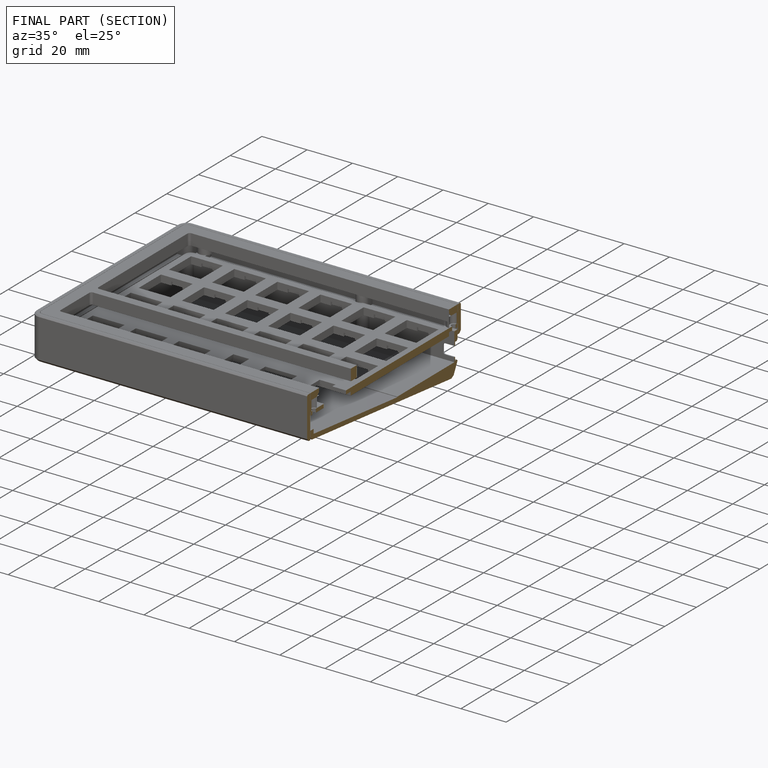
[diagram: finished part — half-section view (interior)]
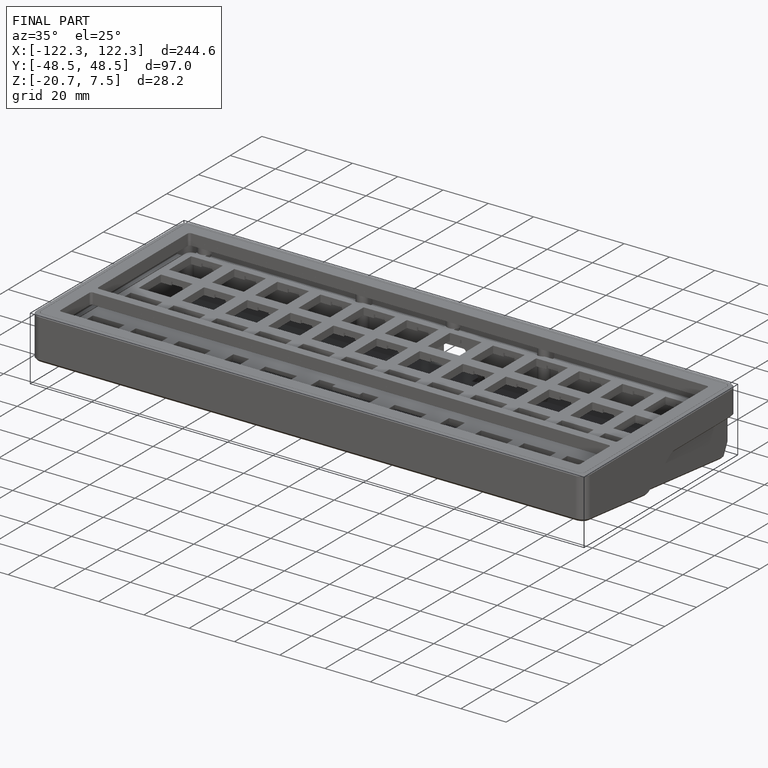
[diagram: finished part — iso view with bounding-box wireframe]
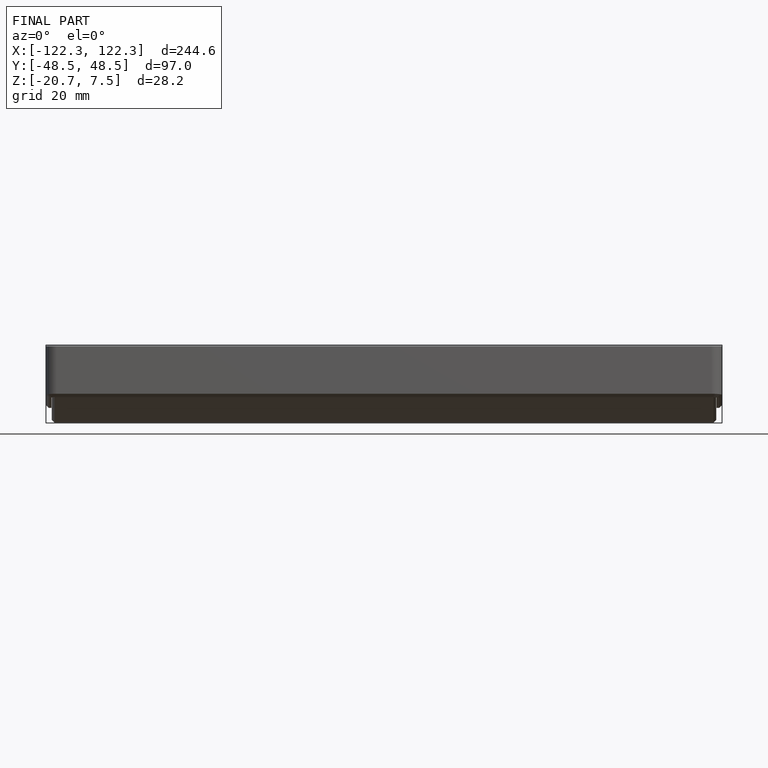
[diagram: finished part — front view with bounding-box wireframe]
